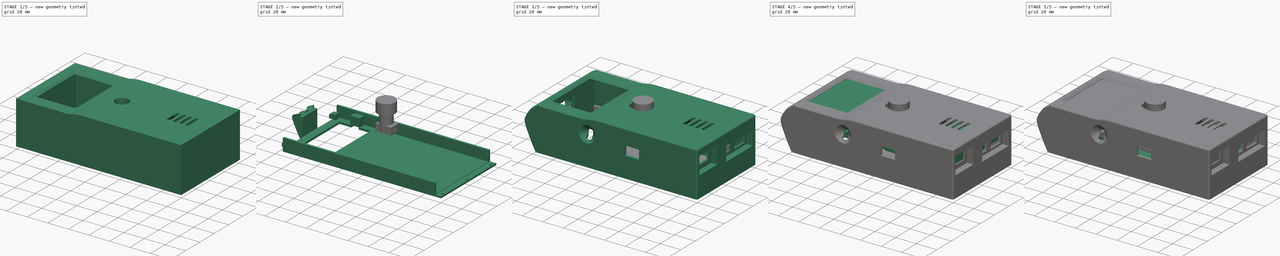
[diagram: build sequence overview — one tinted view per stage of 5, left to right]
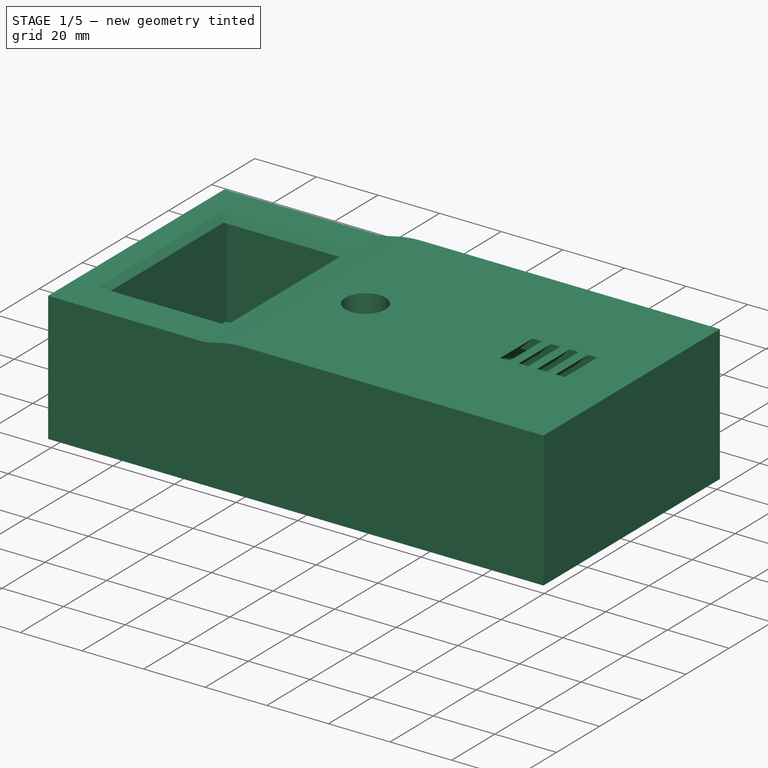
[diagram: stage 1 of 5 — iso view after this stage's code; geometry added in this stage tinted green]
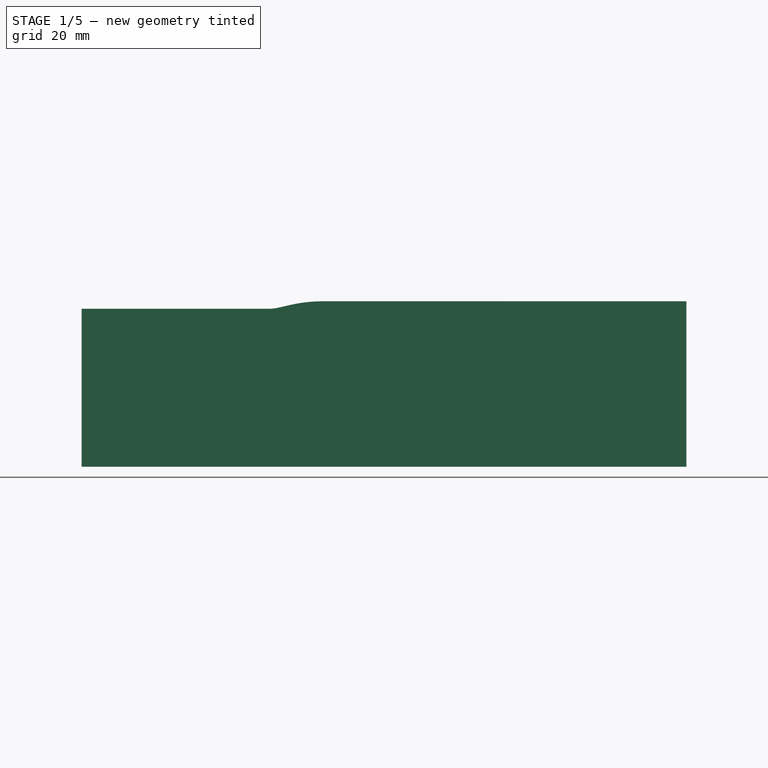
[diagram: stage 1 of 5 — front view after this stage's code; geometry added in this stage tinted green]
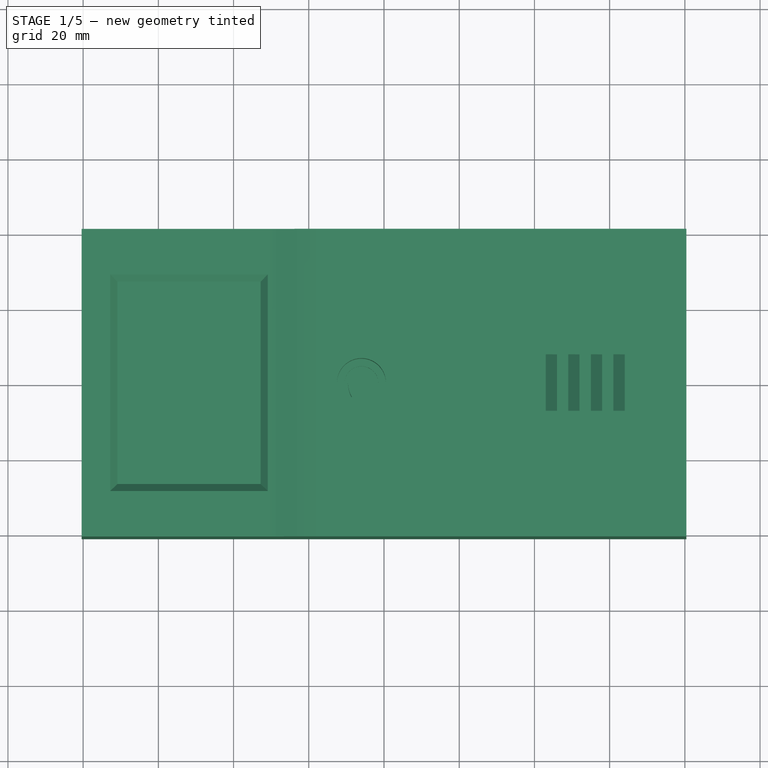
[diagram: stage 1 of 5 — top view after this stage's code; geometry added in this stage tinted green]
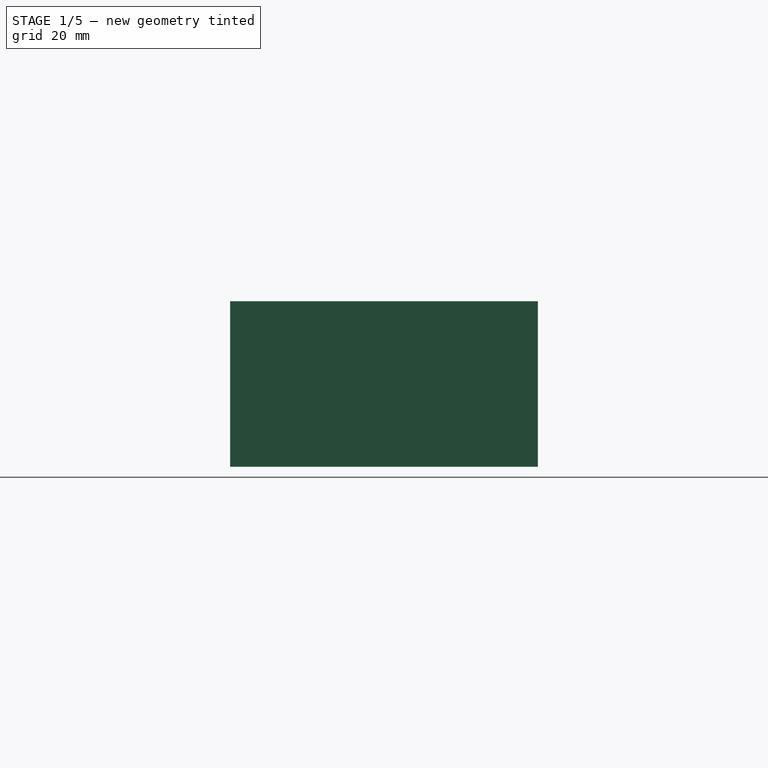
[diagram: stage 1 of 5 — right view after this stage's code; geometry added in this stage tinted green]
FCSTD DOCUMENT  (FreeCAD 0.21R33694 (Git))
Label: box-v2
License: All rights reserved
LicenseURL: http://en.wikipedia.org/wiki/All_rights_reserved
objects: Sketcher::SketchObject×119, PartDesign::Pad×60, PartDesign::Pocket×53, PartDesign::Chamfer×24, PartDesign::Fillet×13, PartDesign::Body×11, PartDesign::Groove×3, Part::FeaturePython×3, PartDesign::FeatureBase×2, PartDesign::Revolution×1, Part::RuledSurface×1, App::DocumentObjectGroup×1, PartDesign::Boolean×1, PartDesign::PolarPattern×1
note: 446 computed .brp shape members not serialized (recipe doc carries the construction recipe); baked Part::Feature solids carry a one-line shape summary decoded from their .brp

FEATURE [PartDesign::Body] Body  label="board"
  Group = -> [Sketch,Pad,Sketch001,Pocket,Sketch002,Pad001,Sketch003,Pad002,Sketch004,Pad003,Sketch005,Pocket001,Sketch006,Pocket002,Sketch007,Pocket003,Sketch008,Pocket004,Sketch024,Pocket012,Sketch025,Pad012,Sketch026,Pad013,Sketch027,Pocket013,Sketch028,Pad014,Sketch038,Pad022,Sketch039,Pad023,Sketch040,Pad024,Sketch041,Pocket016,Sketch042,Pad025,Sketch043,Pad026,Sketch044,Pad027,Sketch045,Pad028,Sketch046,+18 more]
  Origin = -> Origin
  Tip = -> Pad041
FEATURE [Sketcher::SketchObject] Sketch063
  FullyConstrained = true
  MapMode = 5
  Support = -> [XY_Plane003]
  sketch-geometry (12):
    g0: LineSegment StartX=-78.005 StartY=38.5 StartZ=0 EndX=78.005 EndY=38.5 EndZ=0
    g1: LineSegment StartX=78.005 StartY=38.5 StartZ=0 EndX=78.005 EndY=-38.5 EndZ=0
    g2: LineSegment StartX=78.005 StartY=-38.5 StartZ=0 EndX=-78.005 EndY=-38.5 EndZ=0
    g3: LineSegment StartX=-78.005 StartY=-38.5 StartZ=0 EndX=-78.005 EndY=38.5 EndZ=0
    g4: LineSegment StartX=-72.005 StartY=34.5 StartZ=0 EndX=72.005 EndY=34.5 EndZ=0
    g5: LineSegment StartX=72.005 StartY=34.5 StartZ=0 EndX=72.005 EndY=-34.5 EndZ=0
    g6: LineSegment StartX=72.005 StartY=-34.5 StartZ=0 EndX=-72.005 EndY=-34.5 EndZ=0
    g7: LineSegment StartX=-72.005 StartY=-34.5 StartZ=0 EndX=-72.005 EndY=34.5 EndZ=0
    g8: LineSegment StartX=-80.405 StartY=40.9 StartZ=0 EndX=80.405 EndY=40.9 EndZ=0
    g9: LineSegment StartX=80.405 StartY=40.9 StartZ=0 EndX=80.405 EndY=-40.9 EndZ=0
    g10: LineSegment StartX=80.405 StartY=-40.9 StartZ=0 EndX=-80.405 EndY=-40.9 EndZ=0
    g11: LineSegment StartX=-80.405 StartY=-40.9 StartZ=0 EndX=-80.405 EndY=40.9 EndZ=0
  constraints (34):
    c: Coincident(g0,g1)
    c: Coincident(g1,g2)
    c: Coincident(g2,g3)
    c: Coincident(g3,g0)
    c: Horizontal(g0)
    c: Horizontal(g2)
    c: Vertical(g1)
    c: Vertical(g3)
    c: Coincident(g4,g5)
    c: Coincident(g5,g6)
    c: Coincident(g6,g7)
    c: Coincident(g7,g4)
    c: Horizontal(g4)
    c: Horizontal(g6)
    c: Vertical(g5)
    c: Vertical(g7)
    c: DistanceX(g4,g4) = 144.01
    c: DistanceY(g5,g5) = 69
    c: Symmetric(g4,g5,g-1)
    c: Coincident(g8,g9)
    c: Coincident(g9,g10)
    c: Coincident(g10,g11)
    c: Coincident(g11,g8)
    c: Horizontal(g8)
    c: Horizontal(g10)
    c: Vertical(g9)
    c: Vertical(g11)
    c: DistanceX(g8,g0) = 2.4
    c: DistanceY(g0,g8) = 2.4
    c: DistanceY(g9,g1) = 2.4
    c: DistanceX(g1,g9) = 2.4
    c: DistanceY(g1,g5) = 4
    c: DistanceX(g5,g1) = 6
    c: Symmetric(g0,g1,g-1)
FEATURE [PartDesign::Pad] Pad042
  Direction = (0,0,1)
  Length = 40
  Length2 = 10
  Profile = -> Sketch063
  ReferenceAxis = -> Sketch063 [N_Axis]
  Type = 0
FEATURE [Sketcher::SketchObject] Sketch064
  ExternalGeometry = -> [Pad042]
  FullyConstrained = true
  MapMode = 5
  Placement = pos=(0,-40.9,0) rot=(1,0,0;1.5708rad)
  Support = -> [Pad042]
  sketch-geometry (6):
    g0: LineSegment StartX=80.405 StartY=40 StartZ=0 EndX=80.405 EndY=44 EndZ=0
    g1: LineSegment StartX=80.405 StartY=44 StartZ=0 EndX=-20.595 EndY=44 EndZ=0
    g2: LineSegment StartX=-80.405 StartY=40 StartZ=0 EndX=-80.405 EndY=42 EndZ=0
    g3: LineSegment StartX=-80.405 StartY=42 StartZ=0 EndX=-29.405 EndY=42 EndZ=0
    g4: LineSegment StartX=-29.405 StartY=42 StartZ=0 EndX=-20.595 EndY=44 EndZ=0
    g5: LineSegment StartX=-80.405 StartY=40 StartZ=0 EndX=80.405 EndY=40 EndZ=0
  constraints (16):
    c: Vertical(g0)
    c: Coincident(g1,g0)
    c: Horizontal(g1)
    c: Coincident(g3,g2)
    c: Horizontal(g3)
    c: Coincident(g4,g3)
    c: Coincident(g4,g1)
    c: Vertical(g2)
    c: DistanceY(g2,g2) = 2
    c: DistanceY(g0,g0) = 4
    c: Coincident(g5,g2)
    c: Coincident(g2,g-3)
    c: Coincident(g0,g-3)
    c: DistanceX(g3,g3) = 51
    c: DistanceX(g1,g1) = 101
    c: Coincident(g0,g5)
FEATURE [PartDesign::Pad] Pad043
  BaseFeature = -> Pad042
  Direction = (0,-1,2e-16)
  Length = 81.8
  Length2 = 10
  Profile = -> Sketch064
  ReferenceAxis = -> Sketch064 [N_Axis]
  Reversed = true
  Type = 0
FEATURE [Sketcher::SketchObject] Sketch065
  FullyConstrained = true
  MapMode = 5
  Placement = pos=(0,9.2e-15,42) rot=(0,0,1;0rad)
  Support = -> [Pad043]
  sketch-geometry (4):
    g0: LineSegment StartX=-70.9 StartY=26.9 StartZ=0 EndX=-32.8 EndY=26.9 EndZ=0
    g1: LineSegment StartX=-32.8 StartY=26.9 StartZ=0 EndX=-32.8 EndY=-26.9 EndZ=0
    g2: LineSegment StartX=-32.8 StartY=-26.9 StartZ=0 EndX=-70.9 EndY=-26.9 EndZ=0
    g3: LineSegment StartX=-70.9 StartY=-26.9 StartZ=0 EndX=-70.9 EndY=26.9 EndZ=0
  constraints (11):
    c: Coincident(g0,g1)
    c: Coincident(g1,g2)
    c: Coincident(g2,g3)
    c: Coincident(g3,g0)
    c: Horizontal(g0)
    c: Horizontal(g2)
    c: Vertical(g1)
    c: DistanceX(g0,g-1) = 32.8
    c: DistanceY(g3,g3) = 53.8
    c: DistanceX(g0,g0) = 38.1
    c: Symmetric(g0,g2,g-1)
FEATURE [PartDesign::Pocket] Pocket018
  BaseFeature = -> Pad043
  Direction = (0,-2e-16,-1)
  Length = 5
  Length2 = 5
  Profile = -> Sketch065
  ReferenceAxis = -> Sketch065 [N_Axis]
  Type = 0
FEATURE [PartDesign::Chamfer] Chamfer003
  Angle = 45
  Base = -> Pocket018 [Edge39,Edge40,Edge41,Edge42]
  BaseFeature = -> Pocket018
  ChamferType = 0
  FlipDirection = false
  Size = 1.9
  Size2 = 1
  SupportTransform = false
  UseAllEdges = false
FEATURE [Sketcher::SketchObject] Sketch066
  FullyConstrained = true
  MapMode = 5
  Placement = pos=(0,9.7e-15,44) rot=(0,0,1;0rad)
  Support = -> [Chamfer003]
  sketch-geometry (1):
    g0: Circle CenterX=-6 CenterY=0 CenterZ=0 NormalX=0 NormalY=0 NormalZ=1 AngleXU=0 Radius=6.5
  constraints (3):
    c: PointOnObject(g0,g-1)
    c: Diameter(g0) = 13
    c: DistanceX(g0,g-1) = 6
FEATURE [PartDesign::Pocket] Pocket019
  BaseFeature = -> Chamfer003
  Direction = (0,-2e-16,-1)
  Length = 5
  Length2 = 5
  Profile = -> Sketch066
  ReferenceAxis = -> Sketch066 [N_Axis]
  Type = 0
FEATURE [Sketcher::SketchObject] Sketch067
  ExternalGeometry = -> [Pocket019]
  FullyConstrained = true
  MapMode = 5
  Placement = pos=(0,8.8e-15,40) rot=(1,0,0;3.14159rad)
  Support = -> [Pocket019]
  sketch-geometry (2):
    g0: Circle CenterX=-6 CenterY=0 CenterZ=0 NormalX=0 NormalY=0 NormalZ=1 AngleXU=0 Radius=6.5
    g1: Circle CenterX=-6 CenterY=0 CenterZ=0 NormalX=0 NormalY=0 NormalZ=1 AngleXU=0 Radius=8.5
  constraints (4):
    c: Coincident(g0,g-3)
    c: Coincident(g1,g0)
    c: Diameter(g1) = 17
    c: Equal(g0,g-3)
FEATURE [PartDesign::Pad] Pad044
  BaseFeature = -> Pocket019
  Direction = (0,-2e-16,-1)
  Length = 7.5
  Length2 = 10
  Profile = -> Sketch067
  ReferenceAxis = -> Sketch067 [N_Axis]
  Type = 0
FEATURE [PartDesign::Chamfer] Chamfer004
  Angle = 45
  Base = -> Pad044 [Edge51]
  BaseFeature = -> Pad044
  ChamferType = 0
  FlipDirection = false
  Size = 4
  Size2 = 1
  SupportTransform = false
  UseAllEdges = false
FEATURE [Sketcher::SketchObject] Sketch068
  ExternalGeometry = -> [Chamfer004]
  FullyConstrained = true
  MapMode = 5
  Placement = pos=(0,0,32.5) rot=(1,0,0;3.14159rad)
  Support = -> [Chamfer004]
  sketch-geometry (2):
    g0: Circle CenterX=-6 CenterY=-7.2e-15 CenterZ=0 NormalX=0 NormalY=0 NormalZ=1 AngleXU=0 Radius=8.5
    g1: Circle CenterX=-6 CenterY=-7.2e-15 CenterZ=0 NormalX=0 NormalY=0 NormalZ=1 AngleXU=0 Radius=4.5
  constraints (4):
    c: Coincident(g0,g-3)
    c: Coincident(g1,g0)
    c: Equal(g0,g-3)
    c: Diameter(g1) = 9
FEATURE [PartDesign::Pad] Pad045
  BaseFeature = -> Chamfer004
  Direction = (0,0,-1)
  Length = 2
  Length2 = 10
  Profile = -> Sketch068
  ReferenceAxis = -> Sketch068 [N_Axis]
  Reversed = true
  Type = 0
FEATURE [Sketcher::SketchObject] Sketch069
  FullyConstrained = true
  MapMode = 5
  Placement = pos=(0,8.8e-15,40) rot=(1,0,0;3.14159rad)
  Support = -> [Pad045]
  sketch-geometry (12):
    g0: Circle CenterX=48 CenterY=22 CenterZ=0 NormalX=0 NormalY=0 NormalZ=1 AngleXU=0 Radius=1.5
    g1: Circle CenterX=68 CenterY=11 CenterZ=0 NormalX=0 NormalY=0 NormalZ=1 AngleXU=0 Radius=1.5
    g2: Circle CenterX=32.5 CenterY=-12 CenterZ=0 NormalX=0 NormalY=0 NormalZ=1 AngleXU=0 Radius=1.5
    g3: Circle CenterX=69 CenterY=-17 CenterZ=0 NormalX=0 NormalY=0 NormalZ=1 AngleXU=0 Radius=1.5
    g4: Circle CenterX=50 CenterY=-30 CenterZ=0 NormalX=0 NormalY=0 NormalZ=1 AngleXU=0 Radius=1.5
    g5: Circle CenterX=-29 CenterY=13 CenterZ=0 NormalX=0 NormalY=0 NormalZ=1 AngleXU=0 Radius=1.5
    g6: Circle CenterX=-29 CenterY=13 CenterZ=0 NormalX=0 NormalY=0 NormalZ=1 AngleXU=0 Radius=3
    g7: Circle CenterX=48 CenterY=22 CenterZ=0 NormalX=0 NormalY=0 NormalZ=1 AngleXU=0 Radius=3
    g8: Circle CenterX=68 CenterY=11 CenterZ=0 NormalX=0 NormalY=0 NormalZ=1 AngleXU=0 Radius=3
    g9: Circle CenterX=69 CenterY=-17 CenterZ=0 NormalX=0 NormalY=0 NormalZ=1 AngleXU=0 Radius=3
    g10: Circle CenterX=50 CenterY=-30 CenterZ=0 NormalX=0 NormalY=0 NormalZ=1 AngleXU=0 Radius=3
    g11: Circle CenterX=32.5 CenterY=-12 CenterZ=0 NormalX=0 NormalY=0 NormalZ=1 AngleXU=0 Radius=3
  constraints (30):
    c: DistanceX(g5,g-1) = 29
    c: DistanceY(g-1,g5) = 13
    c: DistanceY(g5,g0) = 9
    c: DistanceX(g5,g0) = 77
    c: DistanceX(g0,g1) = 20
    c: DistanceX(g1,g3) = 1
    c: DistanceY(g1,g0) = 11
    c: DistanceY(g3,g1) = 28
    c: DistanceY(g4,g3) = 13
    c: DistanceY(g3,g2) = 5
    c: DistanceX(g2,g3) = 36.5
    c: DistanceX(g4,g3) = 19
    c: Equal(g5,g0)
    c: Equal(g0,g1)
    c: Equal(g1,g3)
    c: Equal(g3,g4)
    c: Equal(g4,g2)
    c: Diameter(g4) = 3
    c: Coincident(g6,g5)
    c: Coincident(g7,g0)
    c: Coincident(g8,g1)
    c: Coincident(g9,g3)
    c: Coincident(g10,g4)
    c: Coincident(g11,g2)
    c: Diameter(g10) = 6
    c: Equal(g11,g10)
    c: Equal(g10,g9)
    c: Equal(g9,g8)
    c: Equal(g8,g7)
    c: Equal(g7,g6)
FEATURE [PartDesign::Pad] Pad046
  BaseFeature = -> Pad045
  Direction = (0,-2e-16,-1)
  Length = 14.5
  Length2 = 10
  Profile = -> Sketch069
  ReferenceAxis = -> Sketch069 [N_Axis]
  Type = 0
FEATURE [PartDesign::Chamfer] Chamfer005
  Angle = 45
  Base = -> Pad046 [Edge6,Edge15,Edge14,Edge5,Edge7]
  BaseFeature = -> Pad046
  ChamferType = 0
  FlipDirection = false
  Size = 5
  Size2 = 1
  SupportTransform = false
  UseAllEdges = false
FEATURE [Sketcher::SketchObject] Sketch070
  AttachmentOffset = pos=(-26,40,13) rot=(0,0,1;0rad)
  FullyConstrained = true
  MapMode = 5
  Placement = pos=(-26,-13,40) rot=(1,0,0;1.5708rad)
  Support = -> [XZ_Plane003]
  sketch-geometry (3):
    g0: LineSegment StartX=0 StartY=0 StartZ=0 EndX=5 EndY=0 EndZ=0
    g1: LineSegment StartX=0 StartY=-5 StartZ=0 EndX=0 EndY=0 EndZ=0
    g2: LineSegment StartX=0 StartY=-5 StartZ=0 EndX=5 EndY=0 EndZ=0
  constraints (8):
    c: Coincident(g1,g0)
    c: Horizontal(g0)
    c: Vertical(g1)
    c: Coincident(g0,g-1)
    c: Equal(g1,g0)
    c: DistanceX(g0,g0) = 5
    c: Coincident(g2,g1)
    c: Coincident(g2,g0)
FEATURE [PartDesign::Revolution] Revolution
  Angle = 180
  Axis = (0,-2e-16,-1)
  Base = (-29,-13,40)
  BaseFeature = -> Chamfer005
  Midplane = true
  Profile = -> Sketch070
  ReferenceAxis = -> Chamfer005 [Edge11]
  Reversed = true
FEATURE [Sketcher::SketchObject] Sketch071
  AttachmentOffset = pos=(0,0,-3) rot=(0,0,1;0rad)
  FullyConstrained = true
  MapMode = 5
  Placement = pos=(0,9.5e-15,43) rot=(1,0,0;3.14159rad)
  Support = -> [Revolution]
  sketch-geometry (4):
    g0: LineSegment StartX=2.4 StartY=-15 StartZ=0 EndX=30.4 EndY=-15 EndZ=0
    g1: LineSegment StartX=30.4 StartY=-15 StartZ=0 EndX=30.4 EndY=-36 EndZ=0
    g2: LineSegment StartX=30.4 StartY=-36 StartZ=0 EndX=2.4 EndY=-36 EndZ=0
    g3: LineSegment StartX=2.4 StartY=-36 StartZ=0 EndX=2.4 EndY=-15 EndZ=0
  constraints (12):
    c: Coincident(g0,g1)
    c: Coincident(g1,g2)
    c: Coincident(g2,g3)
    c: Coincident(g3,g0)
    c: Horizontal(g0)
    c: Horizontal(g2)
    c: Vertical(g1)
    c: Vertical(g3)
    c: DistanceX(g2,g2) = 28
    c: DistanceY(g1,g1) = 21
    c: DistanceY(g0,g-1) = 15
    c: DistanceX(g-1,g0) = 2.4
FEATURE [PartDesign::Pocket] Pocket020
  BaseFeature = -> Revolution
  Direction = (0,2e-16,1)
  Length = 11
  Length2 = 5
  Profile = -> Sketch071
  ReferenceAxis = -> Sketch071 [N_Axis]
  Reversed = true
  Type = 0
FEATURE [Sketcher::SketchObject] Sketch072
  AttachmentOffset = pos=(39,0,-40.9) rot=(0,0,1;0rad)
  ExternalGeometry = -> [Pocket020]
  FullyConstrained = true
  MapMode = 5
  Placement = pos=(39,0,-9.1e-15) rot=(1,0,0;1.5708rad)
  Support = -> [Pocket020]
  sketch-geometry (19):
    g0: LineSegment StartX=4 StartY=44 StartZ=0 EndX=4e-16 EndY=40 EndZ=0
    g1: LineSegment StartX=4e-16 StartY=40 StartZ=0 EndX=3 EndY=40 EndZ=0
    g2: LineSegment StartX=3 StartY=40 StartZ=0 EndX=7 EndY=44 EndZ=0
    g3: LineSegment StartX=7 StartY=44 StartZ=0 EndX=4 EndY=44 EndZ=0
    g4: LineSegment StartX=6 StartY=40 StartZ=0 EndX=10 EndY=44 EndZ=0
    g5: LineSegment StartX=10 StartY=44 StartZ=0 EndX=13 EndY=44 EndZ=0
    g6: LineSegment StartX=13 StartY=44 StartZ=0 EndX=9 EndY=40 EndZ=0
    g7: LineSegment StartX=9 StartY=40 StartZ=0 EndX=6 EndY=40 EndZ=0
    g8: LineSegment StartX=12 StartY=40 StartZ=0 EndX=16 EndY=44 EndZ=0
    g9: LineSegment StartX=16 StartY=44 StartZ=0 EndX=19 EndY=44 EndZ=0
    g10: LineSegment StartX=19 StartY=44 StartZ=0 EndX=15 EndY=40 EndZ=0
    g11: LineSegment StartX=15 StartY=40 StartZ=0 EndX=12 EndY=40 EndZ=0
    g12: LineSegment StartX=18 StartY=40 StartZ=0 EndX=22 EndY=44 EndZ=0
    g13: LineSegment StartX=22 StartY=44 StartZ=0 EndX=25 EndY=44 EndZ=0
    g14: LineSegment StartX=25 StartY=44 StartZ=0 EndX=21 EndY=40 EndZ=0
    g15: LineSegment StartX=21 StartY=40 StartZ=0 EndX=18 EndY=40 EndZ=0
    g16: LineSegment StartX=7 StartY=44 StartZ=0 EndX=10 EndY=44 EndZ=0
    g17: LineSegment StartX=13 StartY=44 StartZ=0 EndX=16 EndY=44 EndZ=0
    g18: LineSegment StartX=19 StartY=44 StartZ=0 EndX=22 EndY=44 EndZ=0
  constraints (54):
    c: PointOnObject(g0,g-3)
    c: PointOnObject(g0,g-4)
    c: Coincident(g1,g0)
    c: PointOnObject(g1,g-4)
    c: Coincident(g2,g1)
    c: PointOnObject(g2,g-3)
    c: Coincident(g3,g2)
    c: Coincident(g3,g0)
    c: DistanceX(g3,g3) = 3
    c: Parallel(g0,g2)
    c: Angle(g2,g-4) = 2.35619
    c: PointOnObject(g4,g-4)
    c: PointOnObject(g4,g-3)
    c: Coincident(g5,g4)
    c: PointOnObject(g5,g-3)
    c: Coincident(g6,g5)
    c: PointOnObject(g6,g-4)
    c: Coincident(g7,g6)
    c: Coincident(g7,g4)
    c: PointOnObject(g8,g-4)
    c: PointOnObject(g8,g-3)
    c: Coincident(g9,g8)
    c: PointOnObject(g9,g-3)
    c: Coincident(g10,g9)
    c: PointOnObject(g10,g-4)
    c: Coincident(g11,g10)
    c: Coincident(g11,g8)
    c: PointOnObject(g12,g-4)
    c: PointOnObject(g12,g-3)
    c: Coincident(g13,g12)
    c: Horizontal(g13)
    c: Coincident(g14,g13)
    c: PointOnObject(g14,g-4)
    c: Coincident(g15,g14)
    c: Coincident(g15,g12)
    c: Parallel(g2,g4)
    c: Parallel(g4,g6)
    c: Parallel(g6,g8)
    c: Parallel(g8,g10)
    c: Parallel(g10,g12)
    c: Parallel(g12,g14)
    c: Coincident(g16,g2)
    c: Coincident(g16,g4)
    c: Coincident(g17,g5)
    c: Coincident(g17,g8)
    c: Coincident(g18,g9)
    c: Coincident(g18,g12)
    c: Equal(g3,g16)
    c: Equal(g16,g5)
    c: Equal(g9,g17)
    c: Equal(g17,g5)
    c: Equal(g9,g18)
    c: Equal(g18,g13)
    c: PointOnObject(g0,g-2)
FEATURE [PartDesign::Pocket] Pocket021
  BaseFeature = -> Pocket020
  Direction = (0,1,-2e-16)
  Length = 15
  Length2 = 5
  Midplane = true
  Profile = -> Sketch072
  ReferenceAxis = -> Sketch072 [N_Axis]
  Type = 0
FEATURE [PartDesign::Fillet] Fillet004
  Base = -> Pocket021 [Edge170]
  BaseFeature = -> Pocket021
  Radius = 11
  SupportTransform = false
  UseAllEdges = false
FEATURE [PartDesign::Fillet] Fillet005
  Base = -> Fillet004 [Edge9]
  BaseFeature = -> Fillet004
  Radius = 38
  SupportTransform = false
  UseAllEdges = false
FEATURE [Sketcher::SketchObject] Sketch073
  AttachmentOffset = pos=(0,0,-1) rot=(0,0,1;0rad)
  FullyConstrained = true
  MapMode = 5
  Placement = pos=(0,-39.9,-2e-16) rot=(1,0,0;1.5708rad)
  Support = -> [Fillet005]
  sketch-geometry (1):
    g0: Circle CenterX=-16.6 CenterY=29 CenterZ=0 NormalX=0 NormalY=0 NormalZ=1 AngleXU=0 Radius=1.5
  constraints (3):
    c: Diameter(g0) = 3
    c: DistanceY(g-1,g0) = 29
    c: DistanceX(g0,g-1) = 16.6
FEATURE [PartDesign::Pocket] Pocket022
  BaseFeature = -> Fillet005
  Direction = (0,1,-2e-16)
  Length = 5
  Length2 = 5
  Profile = -> Sketch073
  ReferenceAxis = -> Sketch073 [N_Axis]
  Type = 0
FEATURE [PartDesign::Chamfer] Chamfer006
  Angle = 45
  Base = -> Pocket022 [Edge137]
  BaseFeature = -> Pocket022
  ChamferType = 0
  FlipDirection = false
  Size = 1.3
  Size2 = 1
  SupportTransform = false
  UseAllEdges = false
FEATURE [Sketcher::SketchObject] Sketch074
  AttachmentOffset = pos=(0,0,-2) rot=(0,0,1;0rad)
  FullyConstrained = true
  MapMode = 5
  Placement = pos=(0,-38.9,-4e-16) rot=(1,0,0;1.5708rad)
  Support = -> [Chamfer006]
  sketch-geometry (5):
    g0: LineSegment StartX=-30.56 StartY=33 StartZ=0 EndX=-22.56 EndY=33 EndZ=0
    g1: LineSegment StartX=-22.56 StartY=33 StartZ=0 EndX=-22.56 EndY=25 EndZ=0
    g2: LineSegment StartX=-22.56 StartY=25 StartZ=0 EndX=-30.56 EndY=25 EndZ=0
    g3: LineSegment StartX=-30.56 StartY=25 StartZ=0 EndX=-30.56 EndY=33 EndZ=0
    g4: Circle CenterX=-26.56 CenterY=29 CenterZ=0 NormalX=0 NormalY=0 NormalZ=1 AngleXU=0 Radius=1.5
  constraints (14):
    c: Coincident(g0,g1)
    c: Coincident(g1,g2)
    c: Coincident(g2,g3)
    c: Coincident(g3,g0)
    c: Horizontal(g0)
    c: Horizontal(g2)
    c: Vertical(g1)
    c: Vertical(g3)
    c: Equal(g0,g1)
    c: DistanceX(g0,g0) = 8
    c: DistanceX(g4,g-1) = 26.56
    c: DistanceY(g-1,g4) = 29
    c: Diameter(g4) = 3
    c: Symmetric(g2,g0,g4)
FEATURE [PartDesign::Pad] Pad047
  BaseFeature = -> Chamfer006
  Direction = (0,-1,2e-16)
  Length = 4
  Length2 = 10
  Profile = -> Sketch074
  ReferenceAxis = -> Sketch074 [N_Axis]
  Reversed = true
  Type = 0
FEATURE [Sketcher::SketchObject] Sketch091
  FullyConstrained = true
  MapMode = 5
  Support = -> [XY_Plane004]
  sketch-geometry (4):
    g0: LineSegment StartX=-74 StartY=38.1 StartZ=0 EndX=78.8 EndY=38.1 EndZ=0
    g1: LineSegment StartX=78.8 StartY=38.1 StartZ=0 EndX=78.8 EndY=-38.1 EndZ=0
    g2: LineSegment StartX=78.8 StartY=-38.1 StartZ=0 EndX=-74 EndY=-38.1 EndZ=0
    g3: LineSegment StartX=-74 StartY=-38.1 StartZ=0 EndX=-74 EndY=38.1 EndZ=0
  constraints (11):
    c: Coincident(g0,g1)
    c: Coincident(g1,g2)
    c: Coincident(g2,g3)
    c: Coincident(g3,g0)
    c: Horizontal(g0)
    c: Horizontal(g2)
    c: Vertical(g3)
    c: DistanceY(g1,g1) = 76.2
    c: DistanceX(g0,g0) = 152.8
    c: DistanceX(g-1,g0) = 78.8
    c: Symmetric(g0,g1,g-1)
FEATURE [PartDesign::Pad] Pad050
  Direction = (0,0,1)
  Length = 2
  Length2 = 10
  Profile = -> Sketch091
  ReferenceAxis = -> Sketch091 [N_Axis]
  Type = 0
FEATURE [Sketcher::SketchObject] Sketch092
  FullyConstrained = true
  MapMode = 5
  Placement = pos=(0,0,0) rot=(1,0,0;3.14159rad)
  Support = -> [Pad050]
  sketch-geometry (4):
    g0: Circle CenterX=76.9 CenterY=32.9 CenterZ=0 NormalX=0 NormalY=0 NormalZ=1 AngleXU=0 Radius=1.25
    g1: Circle CenterX=76.9 CenterY=0 CenterZ=0 NormalX=0 NormalY=0 NormalZ=1 AngleXU=0 Radius=1.25
    g2: Circle CenterX=76.9 CenterY=-32.9 CenterZ=0 NormalX=0 NormalY=0 NormalZ=1 AngleXU=0 Radius=1.25
    g3: LineSegment StartX=76.9 StartY=32.9 StartZ=0 EndX=76.9 EndY=-32.9 EndZ=0
  constraints (10):
    c: PointOnObject(g1,g-1)
    c: Equal(g2,g1)
    c: Equal(g1,g0)
    c: Diameter(g0) = 2.5
    c: Coincident(g3,g0)
    c: Coincident(g3,g2)
    c: PointOnObject(g1,g3)
    c: DistanceY(g3,g3) = 65.8
    c: Symmetric(g0,g2,g-1)
    c: DistanceX(g-1,g1) = 76.9
FEATURE [PartDesign::Pocket] Pocket033
  BaseFeature = -> Pad050
  Direction = (0,0,1)
  Length = 5
  Length2 = 5
  Profile = -> Sketch092
  ReferenceAxis = -> Sketch092 [N_Axis]
  Type = 0
FEATURE [Sketcher::SketchObject] Sketch093
  ExternalGeometry = -> [Pocket033]
  FullyConstrained = true
  MapMode = 5
  Placement = pos=(0,0,2) rot=(0,0,1;0rad)
  Support = -> [Pocket033]
  sketch-geometry (4):
    g0: LineSegment StartX=78.8 StartY=-38.1 StartZ=0 EndX=72.8 EndY=-38.1 EndZ=0
    g1: LineSegment StartX=72.8 StartY=-38.1 StartZ=0 EndX=72.8 EndY=38.1 EndZ=0
    g2: LineSegment StartX=72.8 StartY=38.1 StartZ=0 EndX=78.8 EndY=38.1 EndZ=0
    g3: LineSegment StartX=78.8 StartY=38.1 StartZ=0 EndX=78.8 EndY=-38.1 EndZ=0
  constraints (11):
    c: Coincident(g0,g1)
    c: Coincident(g1,g2)
    c: Coincident(g2,g3)
    c: Coincident(g3,g0)
    c: Horizontal(g0)
    c: Horizontal(g2)
    c: Vertical(g1)
    c: Vertical(g3)
    c: Coincident(g0,g-4)
    c: PointOnObject(g1,g-3)
    c: DistanceX(g2,g2) = 6
FEATURE [PartDesign::Pocket] Pocket034
  BaseFeature = -> Pocket033
  Direction = (0,0,-1)
  Length = 0.4
  Length2 = 5
  Profile = -> Sketch093
  ReferenceAxis = -> Sketch093 [N_Axis]
  Type = 0
FEATURE [PartDesign::Chamfer] Chamfer010
  Angle = 45
  Base = -> Pocket034 [Edge10,Edge11,Edge12]
  BaseFeature = -> Pocket034
  ChamferType = 0
  FlipDirection = false
  Size = 0.6
  Size2 = 1
  SupportTransform = false
  UseAllEdges = false
FEATURE [Sketcher::SketchObject] Sketch094
  ExternalGeometry = -> [Chamfer010]
  FullyConstrained = true
  MapMode = 5
  Placement = pos=(0,0,2) rot=(0,0,1;0rad)
  Support = -> [Chamfer010]
  sketch-geometry (12):
    g0: LineSegment StartX=-74 StartY=-30.2 StartZ=0 EndX=-77.2 EndY=-30.2 EndZ=0
    g1: LineSegment StartX=-77.2 StartY=-30.2 StartZ=0 EndX=-77.2 EndY=-34.8 EndZ=0
    g2: LineSegment StartX=-77.2 StartY=-34.8 StartZ=0 EndX=-74 EndY=-34.8 EndZ=0
    g3: LineSegment StartX=-74 StartY=34.8 StartZ=0 EndX=-77.2 EndY=34.8 EndZ=0
    g4: LineSegment StartX=-77.2 StartY=34.8 StartZ=0 EndX=-77.2 EndY=30.2 EndZ=0
    g5: LineSegment StartX=-77.2 StartY=30.2 StartZ=0 EndX=-74 EndY=30.2 EndZ=0
    g6: LineSegment StartX=-74 StartY=34.8 StartZ=0 EndX=-71 EndY=34.8 EndZ=0
    g7: LineSegment StartX=-74 StartY=30.2 StartZ=0 EndX=-71 EndY=30.2 EndZ=0
    g8: LineSegment StartX=-71 StartY=34.8 StartZ=0 EndX=-71 EndY=30.2 EndZ=0
    g9: LineSegment StartX=-74 StartY=-30.2 StartZ=0 EndX=-71 EndY=-30.2 EndZ=0
    g10: LineSegment StartX=-74 StartY=-34.8 StartZ=0 EndX=-71 EndY=-34.8 EndZ=0
    g11: LineSegment StartX=-71 StartY=-34.8 StartZ=0 EndX=-71 EndY=-30.2 EndZ=0
  constraints (34):
    c: Coincident(g0,g1)
    c: Coincident(g1,g2)
    c: Horizontal(g0)
    c: Horizontal(g2)
    c: Vertical(g1)
    c: PointOnObject(g0,g-3)
    c: Coincident(g3,g4)
    c: Coincident(g4,g5)
    c: Horizontal(g3)
    c: Horizontal(g5)
    c: Vertical(g4)
    c: DistanceX(g3,g3) = 3.2
    c: DistanceY(g4,g4) = 4.6
    c: DistanceY(g3,g-3) = 3.3
    c: Symmetric(g0,g5,g-1)
    c: Coincident(g6,g3)
    c: Horizontal(g6)
    c: Coincident(g7,g5)
    c: Horizontal(g7)
    c: Coincident(g8,g6)
    c: Coincident(g8,g7)
    c: Vertical(g8)
    c: DistanceX(g6,g6) = 3
    c: Equal(g3,g5)
    c: Equal(g2,g0)
    c: Coincident(g9,g0)
    c: Coincident(g10,g2)
    c: Horizontal(g10)
    c: Coincident(g11,g10)
    c: Coincident(g11,g9)
    c: Vertical(g11)
    c: Symmetric(g7,g9,g-1)
    c: Equal(g8,g11)
    c: Equal(g5,g0)
FEATURE [PartDesign::Pad] Pad051
  BaseFeature = -> Chamfer010
  Direction = (0,0,1)
  Length = 4.8
  Length2 = 10
  Profile = -> Sketch094
  ReferenceAxis = -> Sketch094 [N_Axis]
  Type = 0
FEATURE [PartDesign::Pocket] Pocket035
  BaseFeature = -> Pad051
  Direction = (0,0,1)
  Length = 0.2
  Length2 = 5
  Profile = -> Pad051 [Face13,Face14,Face15]
  Type = 0
FEATURE [PartDesign::Chamfer] Chamfer012
  Angle = 45
  Base = -> Pocket035
  BaseFeature = -> Pocket035
  ChamferType = 0
  FlipDirection = false
  Size = 1
  Size2 = 1
  SupportTransform = false
  UseAllEdges = false
FEATURE [PartDesign::Chamfer] Chamfer017
  Angle = 45
  Base = -> Chamfer012 [Edge80,Edge75]
  BaseFeature = -> Chamfer012
  ChamferType = 0
  FlipDirection = false
  Size = 1.5
  Size2 = 1
  SupportTransform = false
  UseAllEdges = false
FEATURE [PartDesign::Body] Body007  label="cup"
  BaseFeature = -> Slice_child1
  Group = -> [BaseFeature001,Sketch107,Pocket043,Sketch108,Pad056,Boolean,Sketch109,Pad057,Sketch110,Pocket044,Sketch111,Pad058,Sketch112,Pocket045,Sketch113,Pad059,Sketch114,Pocket046,Sketch115,Pocket047,Sketch117,Pad060,Chamfer022,Sketch128,Pad065,Chamfer023,Sketch129,Pad066,Chamfer024,Chamfer025,Sketch130,Pocket054,Chamfer026,Sketch131,Pocket055]
  Origin = -> Origin007
  Tip = -> Pocket055
FEATURE [Sketcher::SketchObject] Sketch133
  FullyConstrained = true
  MapMode = 5
  Support = -> [XY_Plane009]
  sketch-geometry (4):
    g0: LineSegment StartX=-7.5 StartY=5 StartZ=0 EndX=7.5 EndY=5 EndZ=0
    g1: LineSegment StartX=7.5 StartY=5 StartZ=0 EndX=7.5 EndY=-5 EndZ=0
    g2: LineSegment StartX=7.5 StartY=-5 StartZ=0 EndX=-7.5 EndY=-5 EndZ=0
    g3: LineSegment StartX=-7.5 StartY=-5 StartZ=0 EndX=-7.5 EndY=5 EndZ=0
  constraints (11):
    c: Coincident(g0,g1)
    c: Coincident(g1,g2)
    c: Coincident(g2,g3)
    c: Coincident(g3,g0)
    c: Horizontal(g0)
    c: Horizontal(g2)
    c: Vertical(g1)
    c: Vertical(g3)
    c: DistanceY(g1,g1) = 10
    c: DistanceX(g2,g2) = 15
    c: Symmetric(g0,g2,g-1)
FEATURE [PartDesign::Pad] Pad068
  Direction = (0,0,1)
  Length = 7
  Length2 = 10
  Profile = -> Sketch133
  ReferenceAxis = -> Sketch133 [N_Axis]
  Type = 0
FEATURE [Sketcher::SketchObject] Sketch134
  ExternalGeometry = -> [Pad068]
  FullyConstrained = true
  MapMode = 5
  Placement = pos=(-7.5,0,0) rot=(0.57735,-0.57735,-0.57735;2.0944rad)
  Support = -> [Pad068]
  sketch-geometry (4):
    g0: LineSegment StartX=-4.6 StartY=6.6 StartZ=0 EndX=4.6 EndY=6.6 EndZ=0
    g1: LineSegment StartX=4.6 StartY=6.6 StartZ=0 EndX=4.6 EndY=0.4 EndZ=0
    g2: LineSegment StartX=4.6 StartY=0.4 StartZ=0 EndX=-4.6 EndY=0.4 EndZ=0
    g3: LineSegment StartX=-4.6 StartY=0.4 StartZ=0 EndX=-4.6 EndY=6.6 EndZ=0
  constraints (12):
    c: Coincident(g0,g1)
    c: Coincident(g1,g2)
    c: Coincident(g2,g3)
    c: Coincident(g3,g0)
    c: Horizontal(g0)
    c: Horizontal(g2)
    c: Vertical(g1)
    c: Vertical(g3)
    c: DistanceX(g-4,g0) = 0.4
    c: DistanceX(g1,g-3) = 0.4
    c: DistanceY(g-3,g1) = 0.4
    c: DistanceY(g0,g-4) = 0.4
FEATURE [PartDesign::Pocket] Pocket056
  BaseFeature = -> Pad068
  Direction = (1,0,0)
  Length = 14
  Length2 = 5
  Profile = -> Sketch134
  ReferenceAxis = -> Sketch134 [N_Axis]
  Type = 0
FEATURE [Sketcher::SketchObject] Sketch135
  ExternalGeometry = -> [Pocket056]
  FullyConstrained = true
  MapMode = 5
  Placement = pos=(7.5,0,0) rot=(0.57735,0.57735,0.57735;2.0944rad)
  Support = -> [Pocket056]
  sketch-geometry (6):
    g0: LineSegment StartX=-1 StartY=4.5 StartZ=0 EndX=1 EndY=4.5 EndZ=0
    g1: LineSegment StartX=1 StartY=4.5 StartZ=0 EndX=1 EndY=2.5 EndZ=0
    g2: LineSegment StartX=1 StartY=2.5 StartZ=0 EndX=-1 EndY=2.5 EndZ=0
    g3: LineSegment StartX=-1 StartY=2.5 StartZ=0 EndX=-1 EndY=4.5 EndZ=0
    g4: GeomPoint X=2e-16 Y=3.5 Z=0
    g5: GeomPoint X=4e-16 Y=7 Z=0
  constraints (13):
    c: Coincident(g0,g1)
    c: Coincident(g1,g2)
    c: Coincident(g2,g3)
    c: Coincident(g3,g0)
    c: Horizontal(g0)
    c: Horizontal(g2)
    c: Vertical(g1)
    c: Vertical(g3)
    c: Equal(g1,g0)
    c: DistanceY(g1,g1) = 2
    c: Symmetric(g-3,g-3,g5)
    c: Symmetric(g5,g-1,g4)
    c: Symmetric(g1,g0,g4)
FEATURE [PartDesign::Pocket] Pocket057
  BaseFeature = -> Pocket056
  Direction = (-1,0,0)
  Length = 5
  Length2 = 5
  Profile = -> Sketch135
  ReferenceAxis = -> Sketch135 [N_Axis]
  Type = 0
FEATURE [PartDesign::Body] Body009  label="diode-heat-protection"
  Group = -> [Sketch133,Pad068,Sketch134,Pocket056,Sketch135,Pocket057]
  Origin = -> Origin009
  Placement = pos=(-20,11,2) rot=(0,0,1;0rad)
  Tip = -> Pocket057
FEATURE [Sketcher::SketchObject] Sketch136
  FullyConstrained = true
  MapMode = 5
  Support = -> [XY_Plane010]
  sketch-geometry (8):
    g0: Circle CenterX=-1.1 CenterY=0.5 CenterZ=0 NormalX=0 NormalY=0 NormalZ=1 AngleXU=0 Radius=5.85
    g1: LineSegment StartX=-4.40892 StartY=5.23121 StartZ=0 EndX=-6.85181 EndY=0 EndZ=0
    g2: LineSegment StartX=-6.85181 StartY=0 StartZ=0 EndX=-3.54289 EndY=-4.73121 EndZ=0
    g3: LineSegment StartX=-3.54289 StartY=-4.73121 StartZ=0 EndX=2.20892 EndY=-4.23121 EndZ=0
    g4: LineSegment StartX=2.20892 StartY=-4.23121 StartZ=0 EndX=4.65181 EndY=1 EndZ=0
    g5: LineSegment StartX=4.65181 StartY=1 StartZ=0 EndX=1.34289 EndY=5.73121 EndZ=0
    g6: LineSegment StartX=1.34289 StartY=5.73121 StartZ=0 EndX=-4.40892 EndY=5.23121 EndZ=0
    g7: Circle CenterX=-1.1 CenterY=0.5 CenterZ=0 NormalX=0 NormalY=0 NormalZ=1 AngleXU=0 Radius=5.7735
  constraints (19):
    c: DistanceX(g0,g-1) = 1.1
    c: DistanceY(g-1,g0) = 0.5
    c: Diameter(g0) = 11.7
    c: Coincident(g1,g2)
    c: Coincident(g2,g3)
    c: Coincident(g3,g4)
    c: Coincident(g4,g5)
    c: Coincident(g5,g6)
    c: Coincident(g6,g1)
    c: Equal(g1, g2-g6) x5
    c: PointOnObject(g1,g7)
    c: PointOnObject(g2,g7)
    c: PointOnObject(g3,g7)
    c: PointOnObject(g4,g7)
    c: PointOnObject(g5,g7)
    c: PointOnObject(g6,g7)
    c: Coincident(g7,g0)
    c: Distance(g2,g1) = 10
    c: PointOnObject(g1,g-1)
FEATURE [PartDesign::Pad] Pad069
  Direction = (0,0,1)
  Length = 2
  Length2 = 10
  Profile = -> Sketch136
  ReferenceAxis = -> Sketch136 [N_Axis]
  Type = 0
FEATURE [Sketcher::SketchObject] Sketch095
  ExternalGeometry = -> [Pad069]
  FullyConstrained = false
  MapMode = 5
  Placement = pos=(0,0,2) rot=(0,0,1;0rad)
  Support = -> [Pad069]
  sketch-geometry (3):
    g0: Circle CenterX=-1.1 CenterY=0.5 CenterZ=0 NormalX=0 NormalY=0 NormalZ=1 AngleXU=0 Radius=5.85
    g1: Circle CenterX=-1.1 CenterY=0.5 CenterZ=0 NormalX=0 NormalY=0 NormalZ=1 AngleXU=0 Radius=3.75
    g2: GeomPoint X=-3.54098 Y=5.8164 Z=0
  constraints (5):
    c: Coincident(g0,g-3)
    c: Coincident(g1,g0)
    c: Diameter(g1) = 7.5
    c: PointOnObject(g2,g-3)
    c: PointOnObject(g2,g0)
FEATURE [PartDesign::Pad] Pad070
  BaseFeature = -> Pad069
  Direction = (0,0,1)
  Length = 15
  Length2 = 10
  Profile = -> Sketch095
  ReferenceAxis = -> Sketch095 [N_Axis]
  Type = 0
FEATURE [Sketcher::SketchObject] Sketch096
  ExternalGeometry = -> [Pad070]
  FullyConstrained = true
  MapMode = 5
  Placement = pos=(0,0,17) rot=(0,0,1;0rad)
  Support = -> [Pad070]
  sketch-geometry (1):
    g0: Circle CenterX=-1.1 CenterY=0.5 CenterZ=0 NormalX=0 NormalY=0 NormalZ=1 AngleXU=0 Radius=8.5
  constraints (2):
    c: Coincident(g0,g-3)
    c: Diameter(g0) = 17
FEATURE [PartDesign::Pad] Pad071
  BaseFeature = -> Pad070
  Direction = (0,0,1)
  Length = 10
  Length2 = 10
  Profile = -> Sketch096
  ReferenceAxis = -> Sketch096 [N_Axis]
  Type = 0
FEATURE [PartDesign::Body] Body010  label="key"
  Group = -> [Sketch136,Pad069,Sketch095,Pad070,Sketch096,Pad071]
  Origin = -> Origin010
  Placement = pos=(-5,-0.5,43) rot=(0,0,1;0rad)
  Tip = -> Pad071
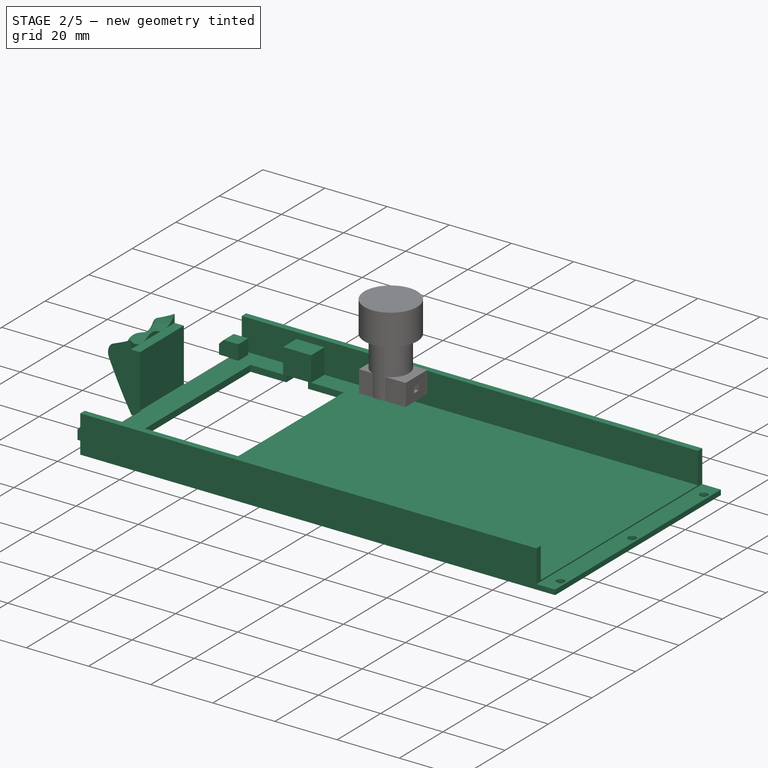
[diagram: stage 2 of 5 — iso view after this stage's code; geometry added in this stage tinted green]
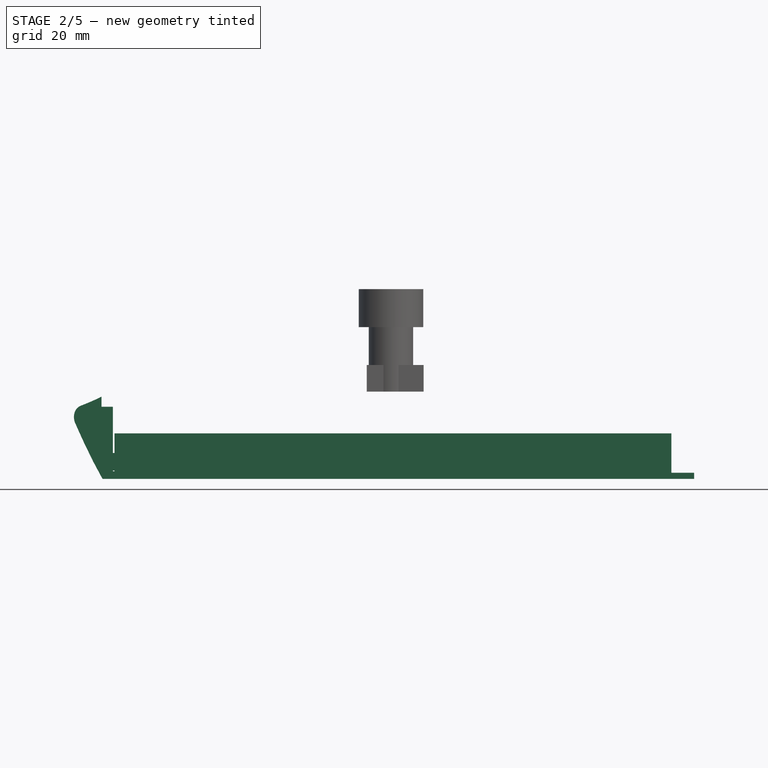
[diagram: stage 2 of 5 — front view after this stage's code; geometry added in this stage tinted green]
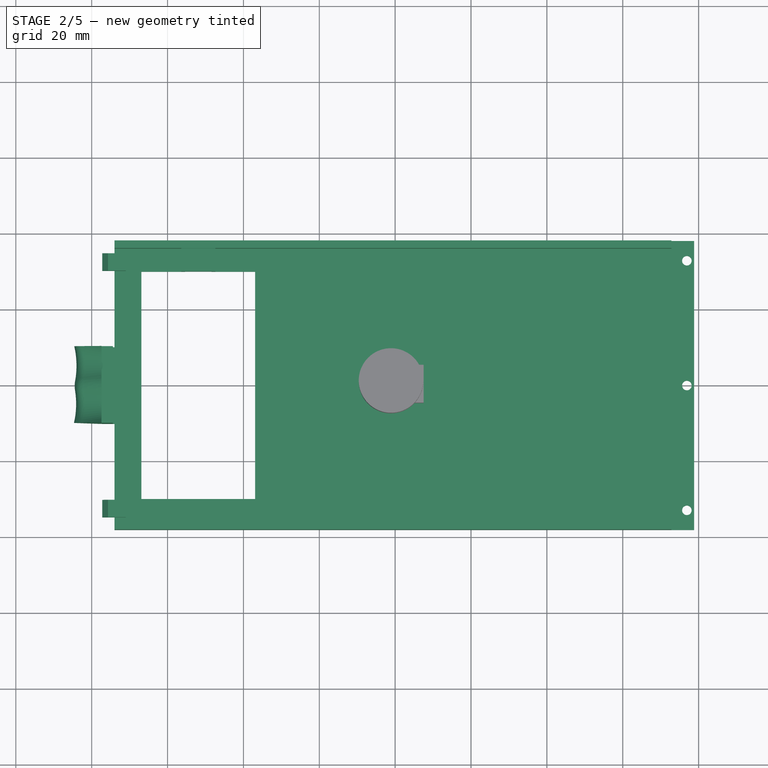
[diagram: stage 2 of 5 — top view after this stage's code; geometry added in this stage tinted green]
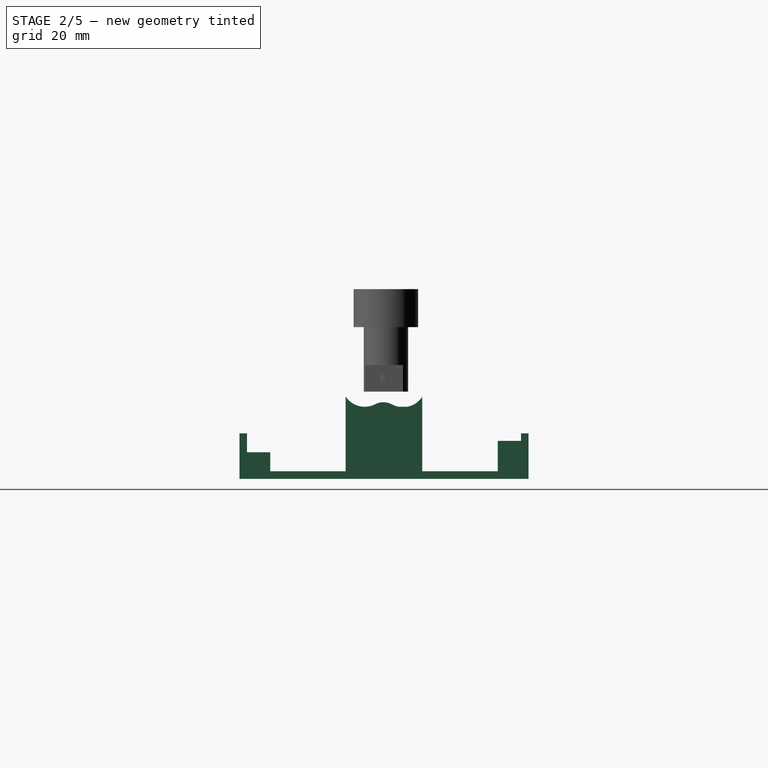
[diagram: stage 2 of 5 — right view after this stage's code; geometry added in this stage tinted green]
FEATURE [Sketcher::SketchObject] Sketch075
  ExternalGeometry = -> [Pad047]
  FullyConstrained = true
  MapMode = 5
  Placement = pos=(0,-34.9,0) rot=(0,0.707107,0.707107;3.14159rad)
  Support = -> [Pad047]
  sketch-geometry (1):
    g0: Circle CenterX=26.56 CenterY=29 CenterZ=0 NormalX=0 NormalY=0 NormalZ=1 AngleXU=0 Radius=1.5
  constraints (2):
    c: Diameter(g0) = 3
    c: Symmetric(g-3,g-4,g0)
FEATURE [PartDesign::Pocket] Pocket023
  BaseFeature = -> Pad047
  Direction = (0,-1,-2e-16)
  Length = 7.6
  Length2 = 5
  Profile = -> Sketch075
  ReferenceAxis = -> Sketch075 [N_Axis]
  Type = 0
FEATURE [PartDesign::Chamfer] Chamfer007
  Angle = 45
  Base = -> Pocket023 [Edge75]
  BaseFeature = -> Pocket023
  ChamferType = 0
  FlipDirection = false
  Size = 4
  Size2 = 1
  SupportTransform = false
  UseAllEdges = false
FEATURE [Sketcher::SketchObject] Sketch076
  ExternalGeometry = -> [Chamfer007]
  FullyConstrained = true
  MapMode = 5
  Placement = pos=(0,-34.9,0) rot=(0,0.707107,0.707107;3.14159rad)
  Support = -> [Chamfer007]
  sketch-geometry (4):
    g0: LineSegment StartX=25.06 StartY=25 StartZ=0 EndX=28.06 EndY=25 EndZ=0
    g1: LineSegment StartX=28.06 StartY=25 StartZ=0 EndX=28.06 EndY=29 EndZ=0
    g2: LineSegment StartX=28.06 StartY=29 StartZ=0 EndX=25.06 EndY=29 EndZ=0
    g3: LineSegment StartX=25.06 StartY=29 StartZ=0 EndX=25.06 EndY=25 EndZ=0
  constraints (12):
    c: Coincident(g0,g1)
    c: Coincident(g1,g2)
    c: Coincident(g2,g3)
    c: Coincident(g3,g0)
    c: Horizontal(g0)
    c: Horizontal(g2)
    c: Vertical(g1)
    c: Vertical(g3)
    c: PointOnObject(g0,g-4)
    c: Tangent(g1,g-3)
    c: Tangent(g3,g-3)
    c: PointOnObject(g-3,g2)
FEATURE [PartDesign::Pocket] Pocket024
  BaseFeature = -> Chamfer007
  Direction = (0,-1,-2e-16)
  Length = 3.6
  Length2 = 5
  Profile = -> Sketch076
  ReferenceAxis = -> Sketch076 [N_Axis]
  Type = 0
FEATURE [Sketcher::SketchObject] Sketch077
  FullyConstrained = true
  MapMode = 5
  Placement = pos=(0,-40.9,0) rot=(1,0,0;1.5708rad)
  Support = -> [Pocket024]
  sketch-geometry (4):
    g0: LineSegment StartX=10 StartY=29 StartZ=0 EndX=24 EndY=29 EndZ=0
    g1: LineSegment StartX=24 StartY=29 StartZ=0 EndX=24 EndY=20 EndZ=0
    g2: LineSegment StartX=24 StartY=20 StartZ=0 EndX=10 EndY=20 EndZ=0
    g3: LineSegment StartX=10 StartY=20 StartZ=0 EndX=10 EndY=29 EndZ=0
  constraints (12):
    c: Coincident(g0,g1)
    c: Coincident(g1,g2)
    c: Coincident(g2,g3)
    c: Coincident(g3,g0)
    c: Horizontal(g0)
    c: Horizontal(g2)
    c: Vertical(g1)
    c: Vertical(g3)
    c: DistanceY(g1,g1) = 9
    c: DistanceX(g0,g0) = 14
    c: DistanceX(g-1,g2) = 10
    c: DistanceY(g-1,g2) = 20
FEATURE [PartDesign::Pocket] Pocket025
  BaseFeature = -> Pocket024
  Direction = (0,1,-2e-16)
  Length = 5
  Length2 = 5
  Profile = -> Sketch077
  ReferenceAxis = -> Sketch077 [N_Axis]
  Type = 0
FEATURE [Sketcher::SketchObject] Sketch078
  AttachmentOffset = pos=(0,0,-7) rot=(0,0,1;0rad)
  ExternalGeometry = -> [Pocket025]
  FullyConstrained = true
  MapMode = 5
  Placement = pos=(73.405,0,0) rot=(0.57735,0.57735,0.57735;2.0944rad)
  Support = -> [Pocket025]
  sketch-geometry (4):
    g0: LineSegment StartX=-40.9 StartY=0 StartZ=0 EndX=40.9 EndY=0 EndZ=0
    g1: LineSegment StartX=40.9 StartY=0 StartZ=0 EndX=40.9 EndY=40 EndZ=0
    g2: LineSegment StartX=40.9 StartY=40 StartZ=0 EndX=-40.9 EndY=40 EndZ=0
    g3: LineSegment StartX=-40.9 StartY=40 StartZ=0 EndX=-40.9 EndY=0 EndZ=0
  constraints (11):
    c: Coincident(g0,g1)
    c: Coincident(g1,g2)
    c: Coincident(g2,g3)
    c: Coincident(g3,g0)
    c: Horizontal(g0)
    c: Horizontal(g2)
    c: Vertical(g1)
    c: Vertical(g3)
    c: PointOnObject(g0,g-1)
    c: Coincident(g1,g-3)
    c: PointOnObject(g-3,g3)
FEATURE [PartDesign::Pad] Pad048
  BaseFeature = -> Pocket025
  Direction = (1,0,0)
  Length = 7
  Length2 = 10
  Profile = -> Sketch078
  ReferenceAxis = -> Sketch078 [N_Axis]
  Type = 0
FEATURE [Sketcher::SketchObject] Sketch079
  FullyConstrained = true
  MapMode = 5
  Placement = pos=(80.405,0,0) rot=(0.57735,0.57735,0.57735;2.0944rad)
  Support = -> [Pad048]
  sketch-geometry (12):
    g0: LineSegment StartX=4.5 StartY=27 StartZ=0 EndX=11.9 EndY=27 EndZ=0
    g1: LineSegment StartX=11.9 StartY=27 StartZ=0 EndX=11.9 EndY=23 EndZ=0
    g2: LineSegment StartX=11.9 StartY=23 StartZ=0 EndX=4.5 EndY=23 EndZ=0
    g3: LineSegment StartX=4.5 StartY=23 StartZ=0 EndX=4.5 EndY=27 EndZ=0
    g4: LineSegment StartX=21.9 StartY=27 StartZ=0 EndX=31.2 EndY=27 EndZ=0
    g5: LineSegment StartX=31.2 StartY=27 StartZ=0 EndX=31.2 EndY=23 EndZ=0
    g6: LineSegment StartX=31.2 StartY=23 StartZ=0 EndX=21.9 EndY=23 EndZ=0
    g7: LineSegment StartX=21.9 StartY=23 StartZ=0 EndX=21.9 EndY=27 EndZ=0
    g8: LineSegment StartX=-32.7 StartY=32.3 StartZ=0 EndX=-17.7 EndY=32.3 EndZ=0
    g9: LineSegment StartX=-17.7 StartY=32.3 StartZ=0 EndX=-17.7 EndY=25.3 EndZ=0
    g10: LineSegment StartX=-17.7 StartY=25.3 StartZ=0 EndX=-32.7 EndY=25.3 EndZ=0
    g11: LineSegment StartX=-32.7 StartY=25.3 StartZ=0 EndX=-32.7 EndY=32.3 EndZ=0
  constraints (36):
    c: Coincident(g0,g1)
    c: Coincident(g1,g2)
    c: Coincident(g2,g3)
    c: Coincident(g3,g0)
    c: Horizontal(g0)
    c: Horizontal(g2)
    c: Vertical(g1)
    c: Vertical(g3)
    c: Coincident(g4,g5)
    c: Coincident(g5,g6)
    c: Coincident(g6,g7)
    c: Coincident(g7,g4)
    c: Horizontal(g4)
    c: Horizontal(g6)
    c: Vertical(g5)
    c: Vertical(g7)
    c: Coincident(g8,g9)
    c: Coincident(g9,g10)
    c: Coincident(g10,g11)
    c: Coincident(g11,g8)
    c: Horizontal(g8)
    c: Horizontal(g10)
    c: Vertical(g9)
    c: Vertical(g11)
    c: DistanceY(g3,g3) = 4
    c: DistanceY(g7,g7) = 4
    c: DistanceY(g9,g9) = 7
    c: DistanceX(g8,g8) = 15
    c: DistanceX(g0,g0) = 7.4
    c: DistanceX(g4,g4) = 9.3
    c: DistanceY(g-1,g2) = 23
    c: PointOnObject(g6,g2)
    c: DistanceX(g-1,g2) = 4.5
    c: DistanceX(g1,g6) = 10
    c: DistanceX(g9,g-1) = 17.7
    c: DistanceY(g-1,g9) = 25.3
FEATURE [PartDesign::Pocket] Pocket026
  BaseFeature = -> Pad048
  Direction = (-1,0,0)
  Length = 8
  Length2 = 5
  Profile = -> Sketch079
  ReferenceAxis = -> Sketch079 [N_Axis]
  Type = 0
FEATURE [Sketcher::SketchObject] Sketch080
  ExternalGeometry = -> [Pocket026]
  FullyConstrained = true
  MapMode = 5
  Placement = pos=(80.405,0,0) rot=(0.57735,0.57735,0.57735;2.0944rad)
  Support = -> [Pocket026]
  sketch-geometry (8):
    g0: LineSegment StartX=-37.7 StartY=37.3 StartZ=0 EndX=-12.7 EndY=37.3 EndZ=0
    g1: LineSegment StartX=-12.7 StartY=37.3 StartZ=0 EndX=-12.7 EndY=20.3 EndZ=0
    g2: LineSegment StartX=-12.7 StartY=20.3 StartZ=0 EndX=-37.7 EndY=20.3 EndZ=0
    g3: LineSegment StartX=-37.7 StartY=20.3 StartZ=0 EndX=-37.7 EndY=37.3 EndZ=0
    g4: LineSegment StartX=-0.5 StartY=32 StartZ=0 EndX=36.2 EndY=32 EndZ=0
    g5: LineSegment StartX=36.2 StartY=32 StartZ=0 EndX=36.2 EndY=18 EndZ=0
    g6: LineSegment StartX=36.2 StartY=18 StartZ=0 EndX=-0.5 EndY=18 EndZ=0
    g7: LineSegment StartX=-0.5 StartY=18 StartZ=0 EndX=-0.5 EndY=32 EndZ=0
  constraints (24):
    c: Coincident(g0,g1)
    c: Coincident(g1,g2)
    c: Coincident(g2,g3)
    c: Coincident(g3,g0)
    c: Horizontal(g0)
    c: Horizontal(g2)
    c: Vertical(g1)
    c: Vertical(g3)
    c: Coincident(g4,g5)
    c: Coincident(g5,g6)
    c: Coincident(g6,g7)
    c: Coincident(g7,g4)
    c: Horizontal(g4)
    c: Horizontal(g6)
    c: Vertical(g5)
    c: Vertical(g7)
    c: DistanceX(g2,g-5) = 5
    c: DistanceX(g-6,g0) = 5
    c: DistanceX(g6,g-3) = 5
    c: DistanceX(g-4,g4) = 5
    c: DistanceY(g2,g-5) = 5
    c: DistanceY(g-6,g0) = 5
    c: DistanceY(g6,g-3) = 5
    c: DistanceY(g-4,g4) = 5
FEATURE [PartDesign::Pocket] Pocket027
  BaseFeature = -> Pocket026
  Direction = (-1,0,0)
  Length = 6
  Length2 = 5
  Profile = -> Sketch080
  ReferenceAxis = -> Sketch080 [N_Axis]
  Type = 0
FEATURE [PartDesign::Chamfer] Chamfer008
  Angle = 45
  Base = -> Pocket027 [Edge208,Edge205,Edge206,Edge207,Edge201,Edge204,Edge203,Edge202,Edge197,Edge200,Edge199,Edge198]
  BaseFeature = -> Pocket027
  ChamferType = 0
  FlipDirection = false
  Size = 0.9
  Size2 = 1
  SupportTransform = false
  UseAllEdges = false
FEATURE [Sketcher::SketchObject] Sketch081
  AttachmentOffset = pos=(0,0,-6) rot=(0,0,1;0rad)
  ExternalGeometry = -> [Chamfer008]
  FullyConstrained = true
  MapMode = 5
  Placement = pos=(-74.405,0,0) rot=(0.57735,-0.57735,-0.57735;2.0944rad)
  Support = -> [Chamfer008]
  sketch-geometry (4):
    g0: LineSegment StartX=-40.9 StartY=0 StartZ=0 EndX=40.9 EndY=0 EndZ=0
    g1: LineSegment StartX=40.9 StartY=0 StartZ=0 EndX=40.9 EndY=42 EndZ=0
    g2: LineSegment StartX=40.9 StartY=42 StartZ=0 EndX=-40.9 EndY=42 EndZ=0
    g3: LineSegment StartX=-40.9 StartY=42 StartZ=0 EndX=-40.9 EndY=0 EndZ=0
  constraints (11):
    c: Coincident(g0,g1)
    c: Coincident(g1,g2)
    c: Coincident(g2,g3)
    c: Coincident(g3,g0)
    c: Horizontal(g0)
    c: Horizontal(g2)
    c: Vertical(g1)
    c: Vertical(g3)
    c: PointOnObject(g0,g-1)
    c: Coincident(g1,g-3)
    c: PointOnObject(g-3,g3)
FEATURE [PartDesign::Pad] Pad049
  BaseFeature = -> Chamfer008
  Direction = (-1,0,0)
  Length = 14
  Length2 = 10
  Profile = -> Sketch081
  ReferenceAxis = -> Sketch081 [N_Axis]
  Type = 0
FEATURE [Sketcher::SketchObject] Sketch082
  ExternalGeometry = -> [Pad049]
  FullyConstrained = false
  MapMode = 5
  Placement = pos=(0,40.9,0) rot=(0,0.707107,0.707107;3.14159rad)
  Support = -> [Pad049]
  sketch-geometry (24):
    g0: LineSegment StartX=74.405 StartY=42 StartZ=0 EndX=74.405 EndY=47.5945 EndZ=0
    g1: LineSegment StartX=74.405 StartY=47.5945 StartZ=0 EndX=111.445 EndY=47.5945 EndZ=0
    g2: LineSegment StartX=111.445 StartY=47.5945 StartZ=0 EndX=111.445 EndY=-15.7144 EndZ=0
    g3: LineSegment StartX=111.445 StartY=-15.7144 StartZ=0 EndX=77.1524 EndY=-15.7144 EndZ=0
    g4: LineSegment StartX=77.1524 StartY=-15.7144 StartZ=0 EndX=77.1524 EndY=0 EndZ=0
    g5-g14: Circle x10 (B-spline internal-alignment scaffolding for g15; pole/knot coordinates omitted)
    g15: BSplineCurve PolesCount=10 KnotsCount=8 Degree=3 IsPeriodic=0
    g16-g23: GeomPoint x8 (B-spline internal-alignment scaffolding for g15; pole/knot coordinates omitted)
  constraints (19):
    c: Coincident(g0,g-3)
    c: Vertical(g0)
    c: Coincident(g1,g0)
    c: Horizontal(g1)
    c: Coincident(g2,g1)
    c: Vertical(g2)
    c: Coincident(g3,g2)
    c: Horizontal(g3)
    c: Coincident(g4,g3)
    c: PointOnObject(g4,g-1)
    c: Vertical(g4)
    c: Weight(g5) = 1
    c: Coincident(g15,g0)
    c: Equal(g5, g6-g10) x5
    c: PointOnObject(g10,g-4)
    c: Equal(g5, g11-g14) x4
    c: Coincident(g15,g4)
    c: InternalAlignment(g5-g14 -> g15) x10
    c: InternalAlignment(g16-g23 -> g15) x8
FEATURE [PartDesign::Pocket] Pocket028
  BaseFeature = -> Pad049
  Direction = (0,-1,2e-16)
  Length = 0
  Length2 = 5
  Profile = -> Sketch082
  ReferenceAxis = -> Sketch082 [N_Axis]
  Type = 1
FEATURE [Sketcher::SketchObject] Sketch083
  AttachmentOffset = pos=(-74,25,-5) rot=(0,0,1;0rad)
  FullyConstrained = true
  MapMode = 5
  Placement = pos=(-74,5,25) rot=(1,0,0;1.5708rad)
  Support = -> [XZ_Plane003]
  sketch-geometry (4):
    g0: LineSegment StartX=0 StartY=0 StartZ=0 EndX=0 EndY=-5 EndZ=0
    g1: LineSegment StartX=0 StartY=-5 StartZ=0 EndX=-17 EndY=-10.5 EndZ=0
    g2: LineSegment StartX=-17 StartY=-10.5 StartZ=0 EndX=-17 EndY=0 EndZ=0
    g3: LineSegment StartX=-17 StartY=0 StartZ=0 EndX=0 EndY=0 EndZ=0
  constraints (11):
    c: Coincident(g0,g-1)
    c: PointOnObject(g0,g-2)
    c: Coincident(g1,g0)
    c: Coincident(g2,g1)
    c: PointOnObject(g2,g-1)
    c: Coincident(g3,g2)
    c: Coincident(g3,g0)
    c: DistanceY(g0,g0) = 5
    c: Vertical(g2)
    c: DistanceX(g3,g3) = 17
    c: DistanceY(g2,g2) = 10.5
FEATURE [Sketcher::SketchObject] Sketch084
  AttachmentOffset = pos=(0,25,-5) rot=(0,0,1;0rad)
  FullyConstrained = false
  MapMode = 5
  Placement = pos=(0,5,25) rot=(1,0,0;1.5708rad)
  Support = -> [XZ_Plane003]
  sketch-geometry (1):
    g0: LineSegment StartX=0 StartY=0 StartZ=0 EndX=-137.47 EndY=0 EndZ=0
  constraints (2):
    c: Coincident(g0,g-1)
    c: Horizontal(g0)
FEATURE [PartDesign::Groove] Groove
  Angle = 360
  Axis = (-1,0,0)
  Base = (0,5,25)
  BaseFeature = -> Pocket028
  Profile = -> Sketch083
  ReferenceAxis = -> Sketch084 [Edge1]
  Reversed = true
FEATURE [Sketcher::SketchObject] Sketch085
  AttachmentOffset = pos=(-74,25,5.1) rot=(0,0,1;0rad)
  FullyConstrained = true
  MapMode = 5
  Placement = pos=(-74,-5.1,25) rot=(1,0,0;1.5708rad)
  Support = -> [XZ_Plane003]
  sketch-geometry (4):
    g0: LineSegment StartX=0 StartY=0 StartZ=0 EndX=0 EndY=-5 EndZ=0
    g1: LineSegment StartX=0 StartY=-5 StartZ=0 EndX=-17 EndY=-10 EndZ=0
    g2: LineSegment StartX=-17 StartY=-10 StartZ=0 EndX=-17 EndY=0 EndZ=0
    g3: LineSegment StartX=-17 StartY=0 StartZ=0 EndX=0 EndY=0 EndZ=0
  constraints (11):
    c: Coincident(g0,g-1)
    c: PointOnObject(g0,g-2)
    c: Coincident(g1,g0)
    c: Coincident(g2,g1)
    c: PointOnObject(g2,g-1)
    c: Coincident(g3,g2)
    c: Coincident(g3,g0)
    c: DistanceX(g3,g3) = 17
    c: Vertical(g2)
    c: DistanceY(g0,g0) = 5
    c: DistanceY(g2,g2) = 10
FEATURE [Sketcher::SketchObject] Sketch086
  AttachmentOffset = pos=(0,25,5.1) rot=(0,0,1;0rad)
  FullyConstrained = false
  MapMode = 5
  Placement = pos=(0,-5.1,25) rot=(1,0,0;1.5708rad)
  Support = -> [XZ_Plane003]
  sketch-geometry (1):
    g0: LineSegment StartX=0 StartY=0 StartZ=0 EndX=-116.949 EndY=0 EndZ=0
  constraints (2):
    c: Coincident(g0,g-1)
    c: Horizontal(g0)
FEATURE [PartDesign::Groove] Groove001
  Angle = 360
  Axis = (-1,0,0)
  Base = (0,-5.1,25)
  BaseFeature = -> Groove
  Profile = -> Sketch085
  ReferenceAxis = -> Sketch086 [Edge1]
  Reversed = true
FEATURE [PartDesign::Fillet] Fillet006
  Base = -> Groove001 [Edge330,Edge335]
  BaseFeature = -> Groove001
  Radius = 5
  SupportTransform = false
  UseAllEdges = false
FEATURE [PartDesign::Fillet] Fillet007
  Base = -> Fillet006 [Edge20,Edge11,Edge22,Edge14,Edge19,Edge23,Edge17]
  BaseFeature = -> Fillet006
  Radius = 3
  SupportTransform = false
  UseAllEdges = false
FEATURE [Sketcher::SketchObject] Sketch087
  FullyConstrained = true
  MapMode = 5
  Placement = pos=(-74.405,0,0) rot=(0.57735,0.57735,0.57735;2.0944rad)
  Support = -> [Fillet007]
  sketch-geometry (4):
    g0: LineSegment StartX=-11 StartY=31 StartZ=0 EndX=11 EndY=31 EndZ=0
    g1: LineSegment StartX=11 StartY=31 StartZ=0 EndX=11 EndY=19 EndZ=0
    g2: LineSegment StartX=11 StartY=19 StartZ=0 EndX=-11 EndY=19 EndZ=0
    g3: LineSegment StartX=-11 StartY=19 StartZ=0 EndX=-11 EndY=31 EndZ=0
  constraints (11):
    c: Coincident(g0,g1)
    c: Coincident(g1,g2)
    c: Coincident(g2,g3)
    c: Coincident(g3,g0)
    c: Horizontal(g0)
    c: Vertical(g1)
    c: Vertical(g3)
    c: DistanceX(g2,g2) = 22
    c: DistanceY(g1,g1) = 12
    c: Symmetric(g2,g1,g-2)
    c: DistanceY(g-1,g1) = 19
FEATURE [PartDesign::Pocket] Pocket029
  BaseFeature = -> Fillet007
  Direction = (-1,0,0)
  Length = 3
  Length2 = 5
  Profile = -> Sketch087
  ReferenceAxis = -> Sketch087 [N_Axis]
  Type = 0
FEATURE [Sketcher::SketchObject] Sketch088
  ExternalGeometry = -> [Pocket029]
  FullyConstrained = true
  MapMode = 5
  Placement = pos=(0,0,0) rot=(1,0,0;3.14159rad)
  Support = -> [Pocket029]
  sketch-geometry (6):
    g0: Circle CenterX=76.905 CenterY=32.9 CenterZ=0 NormalX=0 NormalY=0 NormalZ=1 AngleXU=0 Radius=1.5
    g1: LineSegment StartX=76.905 StartY=32.9 StartZ=0 EndX=76.905 EndY=40.9 EndZ=0
    g2: Circle CenterX=76.905 CenterY=-32.9 CenterZ=0 NormalX=0 NormalY=0 NormalZ=1 AngleXU=0 Radius=1.5
    g3: LineSegment StartX=76.905 StartY=-32.9 StartZ=0 EndX=76.905 EndY=-40.9 EndZ=0
    g4: Circle CenterX=76.905 CenterY=0 CenterZ=0 NormalX=0 NormalY=0 NormalZ=1 AngleXU=0 Radius=1.5
    g5: LineSegment StartX=76.905 StartY=0 StartZ=0 EndX=76.905 EndY=-32.9 EndZ=0
  constraints (15):
    c: Diameter(g0) = 3
    c: DistanceY(g0,g-3) = 8
    c: Coincident(g1,g0)
    c: Vertical(g1)
    c: Symmetric(g-3,g-3,g1)
    c: Equal(g2,g0)
    c: Coincident(g3,g2)
    c: Vertical(g3)
    c: Symmetric(g-4,g-4,g3)
    c: DistanceY(g3,g3) = 8
    c: PointOnObject(g4,g-1)
    c: Equal(g4,g2)
    c: Coincident(g5,g4)
    c: Coincident(g5,g2)
    c: Vertical(g5)
FEATURE [PartDesign::Pocket] Pocket030
  BaseFeature = -> Pocket029
  Direction = (0,0,1)
  Length = 10
  Length2 = 5
  Profile = -> Sketch088
  ReferenceAxis = -> Sketch088 [N_Axis]
  Type = 0
FEATURE [Sketcher::SketchObject] Sketch089
  ExternalGeometry = -> [Pocket030]
  FullyConstrained = true
  MapMode = 5
  Placement = pos=(0,0,0) rot=(1,0,0;3.14159rad)
  Support = -> [Pocket030]
  sketch-geometry (4):
    g0: LineSegment StartX=73.405 StartY=38.5 StartZ=0 EndX=79.205 EndY=38.5 EndZ=0
    g1: LineSegment StartX=79.205 StartY=38.5 StartZ=0 EndX=79.205 EndY=-38.5 EndZ=0
    g2: LineSegment StartX=79.205 StartY=-38.5 StartZ=0 EndX=73.405 EndY=-38.5 EndZ=0
    g3: LineSegment StartX=73.405 StartY=-38.5 StartZ=0 EndX=73.405 EndY=38.5 EndZ=0
  constraints (11):
    c: Coincident(g0,g1)
    c: Coincident(g1,g2)
    c: Coincident(g2,g3)
    c: Coincident(g3,g0)
    c: Horizontal(g0)
    c: Horizontal(g2)
    c: Vertical(g1)
    c: Vertical(g3)
    c: Coincident(g0,g-3)
    c: PointOnObject(g-3,g2)
    c: DistanceX(g1,g-4) = 1.2
FEATURE [PartDesign::Pocket] Pocket031
  BaseFeature = -> Pocket030
  Direction = (0,0,1)
  Length = 2
  Length2 = 5
  Profile = -> Sketch089
  ReferenceAxis = -> Sketch089 [N_Axis]
  Type = 0
FEATURE [Sketcher::SketchObject] Sketch090
  FullyConstrained = true
  MapMode = 5
  Placement = pos=(-74.405,0,0) rot=(0.57735,0.57735,0.57735;2.0944rad)
  Support = -> [Pocket031]
  sketch-geometry (8):
    g0: LineSegment StartX=-35 StartY=7 StartZ=0 EndX=-30 EndY=7 EndZ=0
    g1: LineSegment StartX=-30 StartY=7 StartZ=0 EndX=-30 EndY=2 EndZ=0
    g2: LineSegment StartX=-30 StartY=2 StartZ=0 EndX=-35 EndY=2 EndZ=0
    g3: LineSegment StartX=-35 StartY=2 StartZ=0 EndX=-35 EndY=7 EndZ=0
    g4: LineSegment StartX=30 StartY=7 StartZ=0 EndX=35 EndY=7 EndZ=0
    g5: LineSegment StartX=35 StartY=7 StartZ=0 EndX=35 EndY=2 EndZ=0
    g6: LineSegment StartX=35 StartY=2 StartZ=0 EndX=30 EndY=2 EndZ=0
    g7: LineSegment StartX=30 StartY=2 StartZ=0 EndX=30 EndY=7 EndZ=0
  constraints (23):
    c: Coincident(g0,g1)
    c: Coincident(g1,g2)
    c: Coincident(g2,g3)
    c: Coincident(g3,g0)
    c: Horizontal(g0)
    c: Horizontal(g2)
    c: Vertical(g1)
    c: Vertical(g3)
    c: Coincident(g4,g5)
    c: Coincident(g5,g6)
    c: Coincident(g6,g7)
    c: Coincident(g7,g4)
    c: Horizontal(g4)
    c: Horizontal(g6)
    c: Vertical(g5)
    c: Vertical(g7)
    c: Equal(g0,g1)
    c: Equal(g1,g7)
    c: Equal(g7,g4)
    c: DistanceX(g4,g4) = 5
    c: DistanceY(g-1,g1) = 2
    c: DistanceX(g1,g-1) = 30
    c: Symmetric(g1,g6,g-2)
FEATURE [PartDesign::Pocket] Pocket032
  BaseFeature = -> Pocket031
  Direction = (-1,0,0)
  Length = 3
  Length2 = 5
  Profile = -> Sketch090
  ReferenceAxis = -> Sketch090 [N_Axis]
  Type = 0
FEATURE [PartDesign::Fillet] Fillet008
  Base = -> Pocket032
  BaseFeature = -> Pocket032
  Radius = 1.5
  SupportTransform = false
  UseAllEdges = false
FEATURE [Sketcher::SketchObject] Sketch105
  FullyConstrained = true
  MapMode = 5
  Placement = pos=(0,0,0) rot=(1,0,0;3.14159rad)
  Support = -> [Fillet008]
  sketch-geometry (3):
    g0: LineSegment StartX=-90 StartY=10.5 StartZ=0 EndX=-60 EndY=10.5 EndZ=0
    g1: LineSegment StartX=-60 StartY=10.5 StartZ=0 EndX=-60 EndY=-10.5 EndZ=0
    g2: LineSegment StartX=-60 StartY=-10.5 StartZ=0 EndX=-90 EndY=-10.5 EndZ=0
  constraints (9):
    c: Coincident(g0,g1)
    c: Coincident(g1,g2)
    c: Horizontal(g0)
    c: Horizontal(g2)
    c: DistanceY(g1,g1) = 21
    c: Symmetric(g1,g0,g-1)
    c: DistanceX(g0,g0) = 30
    c: DistanceX(g0,g-1) = 60
    c: Equal(g0,g2)
FEATURE [Sketcher::SketchObject] Sketch106
  AttachmentOffset = pos=(0,0,-24) rot=(0,0,1;0rad)
  FullyConstrained = true
  MapMode = 5
  Placement = pos=(0,0,24) rot=(1,0,0;3.14159rad)
  Support = -> [Fillet008]
  sketch-geometry (3):
    g0: LineSegment StartX=-60 StartY=10.5 StartZ=0 EndX=-60 EndY=-10.5 EndZ=0
    g1: LineSegment StartX=-60 StartY=-10.5 StartZ=0 EndX=-90 EndY=-10.5 EndZ=0
    g2: LineSegment StartX=-90 StartY=10.5 StartZ=0 EndX=-60 EndY=10.5 EndZ=0
  constraints (9):
    c: Coincident(g0,g1)
    c: Horizontal(g1)
    c: DistanceX(g2,g0) = 30
    c: DistanceY(g0,g0) = 21
    c: DistanceX(g0) = -60
    c: Symmetric(g0,g0,g-1)
    c: Coincident(g2,g0)
    c: Horizontal(g2)
    c: Equal(g2,g1)
FEATURE [PartDesign::Body] Body003  label="top-1"
  Group = -> [Sketch063,Pad042,Sketch064,Pad043,Sketch065,Pocket018,Chamfer003,Sketch066,Pocket019,Sketch067,Pad044,Chamfer004,Sketch068,Pad045,Sketch069,Pad046,Chamfer005,Sketch070,Revolution,Sketch071,Pocket020,Sketch072,Pocket021,Fillet004,Fillet005,Sketch073,Pocket022,Chamfer006,Sketch074,Pad047,Sketch075,Pocket023,Chamfer007,Sketch076,Pocket024,Sketch077,Pocket025,Sketch078,Pad048,Sketch079,Pocket026,+26 more]
  Origin = -> Origin003
  Placement = pos=(0,0,-23) rot=(0,0,1;0rad)
  Tip = -> Fillet008
FEATURE [Part::RuledSurface] Ruled_Surface
  Curve1 = -> Sketch105
  Curve2 = -> Sketch106
  Orientation = 0
  Placement = pos=(0,0,-24) rot=(0,0,1;0rad)
FEATURE [Part::FeaturePython] Slice  # WARN: FeaturePython — macro-defined, semantics opaque (R4)
  Base = -> Body003
  Mode = 1
  Tolerance = 0
  Tools = -> [Ruled_Surface]
FEATURE [Part::FeaturePython] Slice_child1  label="Slice.1"  # WARN: FeaturePython — macro-defined, semantics opaque (R4)
  Base = -> Slice
  FilterType = 1
  Invert = false
  OverrideMaxVal = 0
  WindowFrom = 80
  WindowTo = 100
  items = 1
FEATURE [PartDesign::FeatureBase] BaseFeature001
  BaseFeature = -> Slice_child1
FEATURE [Sketcher::SketchObject] Sketch107
  ExternalGeometry = -> [BaseFeature001]
  FullyConstrained = true
  MapMode = 5
  Placement = pos=(0,0,-23) rot=(1,0,0;3.14159rad)
  Support = -> [BaseFeature001]
  sketch-geometry (8):
    g0: LineSegment StartX=-74.405 StartY=10.5 StartZ=0 EndX=-89.405 EndY=10.5 EndZ=0
    g1: LineSegment StartX=-89.405 StartY=10.5 StartZ=0 EndX=-89.405 EndY=10.1 EndZ=0
    g2: LineSegment StartX=-89.405 StartY=10.1 StartZ=0 EndX=-74.405 EndY=10.1 EndZ=0
    g3: LineSegment StartX=-74.405 StartY=10.1 StartZ=0 EndX=-74.405 EndY=10.5 EndZ=0
    g4: LineSegment StartX=-74.405 StartY=-10.5 StartZ=0 EndX=-89.405 EndY=-10.5 EndZ=0
    g5: LineSegment StartX=-89.405 StartY=-10.5 StartZ=0 EndX=-89.405 EndY=-10.1 EndZ=0
    g6: LineSegment StartX=-89.405 StartY=-10.1 StartZ=0 EndX=-74.405 EndY=-10.1 EndZ=0
    g7: LineSegment StartX=-74.405 StartY=-10.1 StartZ=0 EndX=-74.405 EndY=-10.5 EndZ=0
  constraints (22):
    c: Coincident(g0,g1)
    c: Coincident(g1,g2)
    c: Coincident(g2,g3)
    c: Coincident(g3,g0)
    c: Horizontal(g0)
    c: Horizontal(g2)
    c: Vertical(g1)
    c: Vertical(g3)
    c: Coincident(g0,g-3)
    c: Coincident(g4,g5)
    c: Coincident(g5,g6)
    c: Coincident(g6,g7)
    c: Coincident(g7,g4)
    c: Horizontal(g4)
    c: Horizontal(g6)
    c: Vertical(g5)
    c: Vertical(g7)
    c: Coincident(g4,g-4)
    c: Equal(g5,g1)
    c: Equal(g2,g6)
    c: DistanceX(g0,g0) = 15
    c: DistanceY(g1,g1) = 0.4
FEATURE [PartDesign::Pocket] Pocket043
  BaseFeature = -> BaseFeature001
  Direction = (0,0,1)
  Length = 5
  Length2 = 5
  Profile = -> Sketch107
  ReferenceAxis = -> Sketch107 [N_Axis]
  Type = 1
FEATURE [Sketcher::SketchObject] Sketch108
  ExternalGeometry = -> [Pocket043]
  FullyConstrained = true
  MapMode = 5
  Placement = pos=(0,0,-23) rot=(1,0,0;3.14159rad)
  Support = -> [Pocket043]
  sketch-geometry (4):
    g0: LineSegment StartX=-74.405 StartY=-10.1 StartZ=0 EndX=-69.405 EndY=-10.1 EndZ=0
    g1: LineSegment StartX=-69.405 StartY=-10.1 StartZ=0 EndX=-69.405 EndY=10.1 EndZ=0
    g2: LineSegment StartX=-69.405 StartY=10.1 StartZ=0 EndX=-74.405 EndY=10.1 EndZ=0
    g3: LineSegment StartX=-74.405 StartY=10.1 StartZ=0 EndX=-74.405 EndY=-10.1 EndZ=0
  constraints (11):
    c: Coincident(g0,g1)
    c: Coincident(g1,g2)
    c: Coincident(g2,g3)
    c: Coincident(g3,g0)
    c: Horizontal(g0)
    c: Horizontal(g2)
    c: Vertical(g1)
    c: Vertical(g3)
    c: Coincident(g0,g-4)
    c: PointOnObject(g-3,g2)
    c: DistanceX(g2,g2) = 5
FEATURE [PartDesign::Pad] Pad056
  BaseFeature = -> Pocket043
  Direction = (0,0,-1)
  Length = 2
  Length2 = 10
  Profile = -> Sketch108
  ReferenceAxis = -> Sketch108 [N_Axis]
  Reversed = true
  Type = 0
FEATURE [PartDesign::Body] Body004  label="cup-01"
  Group = -> [Sketch091,Pad050,Sketch092,Pocket033,Sketch093,Pocket034,Chamfer010,Sketch094,Pad051,Pocket035,Chamfer012,Chamfer017]
  Origin = -> Origin004
  Placement = pos=(0,0,-23) rot=(0,0,1;0rad)
  Tip = -> Chamfer017
FEATURE [PartDesign::Boolean] Boolean
  BaseFeature = -> Pad056
  Group = -> [Body004]
  Type = 0
FEATURE [Sketcher::SketchObject] Sketch109
  ExternalGeometry = -> [Boolean]
  FullyConstrained = true
  MapMode = 5
  Placement = pos=(0,0,-21) rot=(0,0,1;0rad)
  Support = -> [Boolean]
  sketch-geometry (8):
    g0: LineSegment StartX=-74 StartY=-38.1 StartZ=0 EndX=72.8 EndY=-38.1 EndZ=0
    g1: LineSegment StartX=72.8 StartY=-38.1 StartZ=0 EndX=72.8 EndY=-36.1 EndZ=0
    g2: LineSegment StartX=72.8 StartY=-36.1 StartZ=0 EndX=-74 EndY=-36.1 EndZ=0
    g3: LineSegment StartX=-74 StartY=-36.1 StartZ=0 EndX=-74 EndY=-38.1 EndZ=0
    g4: LineSegment StartX=-74 StartY=38.1 StartZ=0 EndX=72.8 EndY=38.1 EndZ=0
    g5: LineSegment StartX=72.8 StartY=38.1 StartZ=0 EndX=72.8 EndY=36.1 EndZ=0
    g6: LineSegment StartX=72.8 StartY=36.1 StartZ=0 EndX=-74 EndY=36.1 EndZ=0
    g7: LineSegment StartX=-74 StartY=36.1 StartZ=0 EndX=-74 EndY=38.1 EndZ=0
  constraints (22):
    c: Coincident(g0,g1)
    c: Coincident(g1,g2)
    c: Coincident(g2,g3)
    c: Coincident(g3,g0)
    c: Horizontal(g0)
    c: Horizontal(g2)
    c: Vertical(g1)
    c: Vertical(g3)
    c: Coincident(g0,g-4)
    c: Coincident(g4,g5)
    c: Coincident(g5,g6)
    c: Coincident(g6,g7)
    c: Coincident(g7,g4)
    c: Horizontal(g4)
    c: Horizontal(g6)
    c: Vertical(g5)
    c: Vertical(g7)
    c: Coincident(g4,g-3)
    c: PointOnObject(g-3,g5)
    c: DistanceY(g5,g5) = 2
    c: Equal(g5,g1)
    c: PointOnObject(g-4,g1)
FEATURE [PartDesign::Pad] Pad057
  BaseFeature = -> Boolean
  Direction = (0,0,1)
  Length = 10
  Length2 = 10
  Profile = -> Sketch109
  ReferenceAxis = -> Sketch109 [N_Axis]
  Type = 0
FEATURE [Sketcher::SketchObject] Sketch110
  FullyConstrained = true
  MapMode = 5
  Placement = pos=(0,0,-23) rot=(1,0,0;3.14159rad)
  Support = -> [Pad057]
  sketch-geometry (4):
    g0: LineSegment StartX=-66.9 StartY=30 StartZ=0 EndX=-36.9 EndY=30 EndZ=0
    g1: LineSegment StartX=-36.9 StartY=30 StartZ=0 EndX=-36.9 EndY=-30 EndZ=0
    g2: LineSegment StartX=-36.9 StartY=-30 StartZ=0 EndX=-66.9 EndY=-30 EndZ=0
    g3: LineSegment StartX=-66.9 StartY=-30 StartZ=0 EndX=-66.9 EndY=30 EndZ=0
  constraints (11):
    c: Coincident(g0,g1)
    c: Coincident(g1,g2)
    c: Coincident(g2,g3)
    c: Coincident(g3,g0)
    c: Horizontal(g0)
    c: Horizontal(g2)
    c: Vertical(g3)
    c: DistanceY(g1,g1) = 60
    c: Symmetric(g0,g1,g-1)
    c: DistanceX(g0,g0) = 30
    c: DistanceX(g1,g-1) = 36.9
FEATURE [PartDesign::Pocket] Pocket044
  BaseFeature = -> Pad057
  Direction = (0,0,1)
  Length = 5
  Length2 = 5
  Profile = -> Sketch110
  ReferenceAxis = -> Sketch110 [N_Axis]
  Type = 0
FEATURE [Sketcher::SketchObject] Sketch111
  ExternalGeometry = -> [Pocket044]
  FullyConstrained = true
  MapMode = 5
  Placement = pos=(0,0,-21) rot=(0,0,1;0rad)
  Support = -> [Pocket044]
  sketch-geometry (4):
    g0: LineSegment StartX=-66.9 StartY=-30 StartZ=0 EndX=-36.9 EndY=-30 EndZ=0
    g1: LineSegment StartX=-36.9 StartY=-30 StartZ=0 EndX=-36.9 EndY=-36.1 EndZ=0
    g2: LineSegment StartX=-36.9 StartY=-36.1 StartZ=0 EndX=-66.9 EndY=-36.1 EndZ=0
    g3: LineSegment StartX=-66.9 StartY=-36.1 StartZ=0 EndX=-66.9 EndY=-30 EndZ=0
  constraints (11):
    c: Coincident(g0,g1)
    c: Coincident(g1,g2)
    c: Coincident(g2,g3)
    c: Coincident(g3,g0)
    c: Horizontal(g0)
    c: Horizontal(g2)
    c: Vertical(g1)
    c: Vertical(g3)
    c: Coincident(g0,g-3)
    c: PointOnObject(g-3,g1)
    c: PointOnObject(g1,g-4)
FEATURE [PartDesign::Pad] Pad058
  BaseFeature = -> Pocket044
  Direction = (0,0,1)
  Length = 5
  Length2 = 10
  Profile = -> Sketch111
  ReferenceAxis = -> Sketch111 [N_Axis]
  Type = 0
FEATURE [Sketcher::SketchObject] Sketch112
  ExternalGeometry = -> [Pad058]
  FullyConstrained = true
  MapMode = 5
  Placement = pos=(0,-30,0) rot=(0,0.707107,0.707107;3.14159rad)
  Support = -> [Pad058]
  sketch-geometry (8):
    g0: LineSegment StartX=41.85 StartY=-21 StartZ=0 EndX=46.85 EndY=-21 EndZ=0
    g1: LineSegment StartX=46.85 StartY=-21 StartZ=0 EndX=46.85 EndY=-18.3 EndZ=0
    g2: LineSegment StartX=46.85 StartY=-18.3 StartZ=0 EndX=41.85 EndY=-18.3 EndZ=0
    g3: LineSegment StartX=41.85 StartY=-18.3 StartZ=0 EndX=41.85 EndY=-21 EndZ=0
    g4: LineSegment StartX=61.95 StartY=-21 StartZ=0 EndX=56.95 EndY=-21 EndZ=0
    g5: LineSegment StartX=56.95 StartY=-21 StartZ=0 EndX=56.95 EndY=-18.3 EndZ=0
    g6: LineSegment StartX=56.95 StartY=-18.3 StartZ=0 EndX=61.95 EndY=-18.3 EndZ=0
    g7: LineSegment StartX=61.95 StartY=-18.3 StartZ=0 EndX=61.95 EndY=-21 EndZ=0
  constraints (24):
    c: Coincident(g0,g1)
    c: Coincident(g1,g2)
    c: Coincident(g2,g3)
    c: Coincident(g3,g0)
    c: Horizontal(g0)
    c: Horizontal(g2)
    c: Vertical(g1)
    c: Vertical(g3)
    c: PointOnObject(g0,g-3)
    c: Coincident(g4,g5)
    c: Coincident(g5,g6)
    c: Coincident(g6,g7)
    c: Coincident(g7,g4)
    c: Horizontal(g4)
    c: Horizontal(g6)
    c: Vertical(g5)
    c: Vertical(g7)
    c: PointOnObject(g4,g-3)
    c: Equal(g2,g6)
    c: Equal(g1,g5)
    c: DistanceX(g4,g-3) = 4.95
    c: DistanceX(g6,g6) = 5
    c: DistanceY(g7,g7) = 2.7
    c: DistanceX(g-3,g0) = 4.95
FEATURE [PartDesign::Pocket] Pocket045
  BaseFeature = -> Pad058
  Direction = (0,-1,2e-16)
  Length = 4
  Length2 = 5
  Profile = -> Sketch112
  ReferenceAxis = -> Sketch112 [N_Axis]
  Type = 0
FEATURE [Sketcher::SketchObject] Sketch113
  ExternalGeometry = -> [Pocket045]
  FullyConstrained = true
  MapMode = 5
  Placement = pos=(0,0,-21) rot=(0,0,1;0rad)
  Support = -> [Pocket045]
  sketch-geometry (4):
    g0: LineSegment StartX=-56.4 StartY=30 StartZ=0 EndX=-47.4 EndY=30 EndZ=0
    g1: LineSegment StartX=-47.4 StartY=30 StartZ=0 EndX=-47.4 EndY=36.1 EndZ=0
    g2: LineSegment StartX=-47.4 StartY=36.1 StartZ=0 EndX=-56.4 EndY=36.1 EndZ=0
    g3: LineSegment StartX=-56.4 StartY=36.1 StartZ=0 EndX=-56.4 EndY=30 EndZ=0
  constraints (12):
    c: Coincident(g0,g1)
    c: Coincident(g1,g2)
    c: Coincident(g2,g3)
    c: Coincident(g3,g0)
    c: Horizontal(g0)
    c: Horizontal(g2)
    c: Vertical(g1)
    c: Vertical(g3)
    c: PointOnObject(g0,g-3)
    c: PointOnObject(g1,g-4)
    c: DistanceX(g0,g0) = 9
    c: DistanceX(g-3,g0) = 10.5
FEATURE [PartDesign::Pad] Pad059
  BaseFeature = -> Pocket045
  Direction = (0,0,1)
  Length = 8
  Length2 = 10
  Profile = -> Sketch113
  ReferenceAxis = -> Sketch113 [N_Axis]
  Type = 0
FEATURE [Sketcher::SketchObject] Sketch114
  ExternalGeometry = -> [Pad059]
  FullyConstrained = true
  MapMode = 5
  Placement = pos=(0,0,-23) rot=(1,0,0;3.14159rad)
  Support = -> [Pad059]
  sketch-geometry (4):
    g0: LineSegment StartX=-55.4 StartY=-30 StartZ=0 EndX=-48.4 EndY=-30 EndZ=0
    g1: LineSegment StartX=-48.4 StartY=-30 StartZ=0 EndX=-48.4 EndY=-37 EndZ=0
    g2: LineSegment StartX=-48.4 StartY=-37 StartZ=0 EndX=-55.4 EndY=-37 EndZ=0
    g3: LineSegment StartX=-55.4 StartY=-37 StartZ=0 EndX=-55.4 EndY=-30 EndZ=0
  constraints (12):
    c: Coincident(g0,g1)
    c: Coincident(g1,g2)
    c: Coincident(g2,g3)
    c: Coincident(g3,g0)
    c: Horizontal(g0)
    c: Horizontal(g2)
    c: Vertical(g1)
    c: Vertical(g3)
    c: PointOnObject(g0,g-3)
    c: DistanceX(g0,g0) = 7
    c: Equal(g0,g1)
    c: DistanceX(g-3,g0) = 11.5
FEATURE [PartDesign::Pocket] Pocket046
  BaseFeature = -> Pad059
  Direction = (0,0,1)
  Length = 2
  Length2 = 5
  Profile = -> Sketch114
  ReferenceAxis = -> Sketch114 [N_Axis]
  Type = 0
FEATURE [Sketcher::SketchObject] Sketch115
  ExternalGeometry = -> [Pocket046]
  FullyConstrained = true
  MapMode = 5
  Placement = pos=(0,0,-21) rot=(1,0,0;3.14159rad)
  Support = -> [Pocket046]
  sketch-geometry (1):
    g0: Circle CenterX=-51.9 CenterY=-33.5 CenterZ=0 NormalX=0 NormalY=0 NormalZ=1 AngleXU=0 Radius=1.5
  constraints (2):
    c: Symmetric(g-3,g-4,g0)
    c: Diameter(g0) = 3
FEATURE [PartDesign::Pocket] Pocket047
  BaseFeature = -> Pocket046
  Direction = (0,0,1)
  Length = 7
  Length2 = 5
  Profile = -> Sketch115
  ReferenceAxis = -> Sketch115 [N_Axis]
  Type = 0
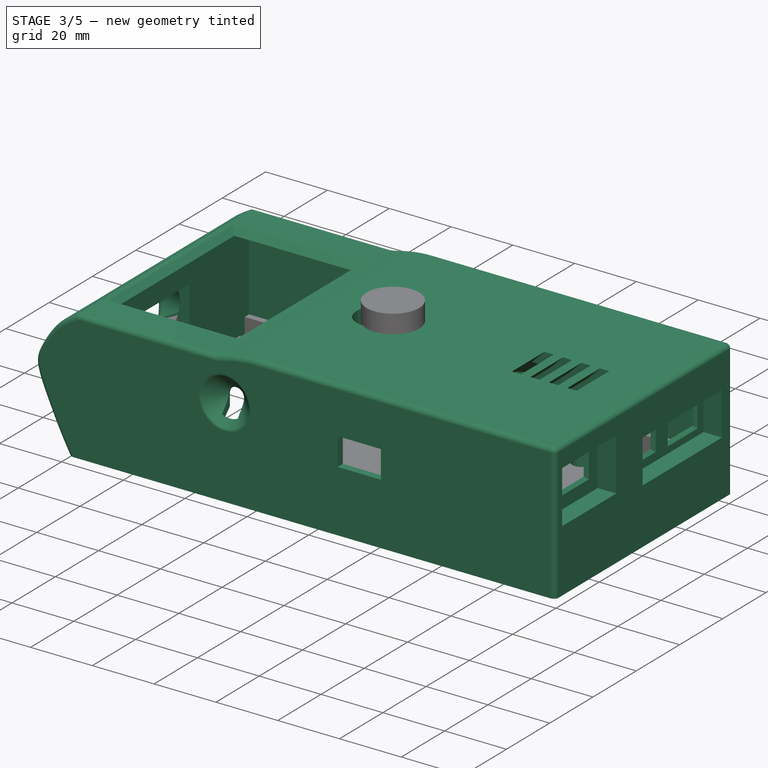
[diagram: stage 3 of 5 — iso view after this stage's code; geometry added in this stage tinted green]
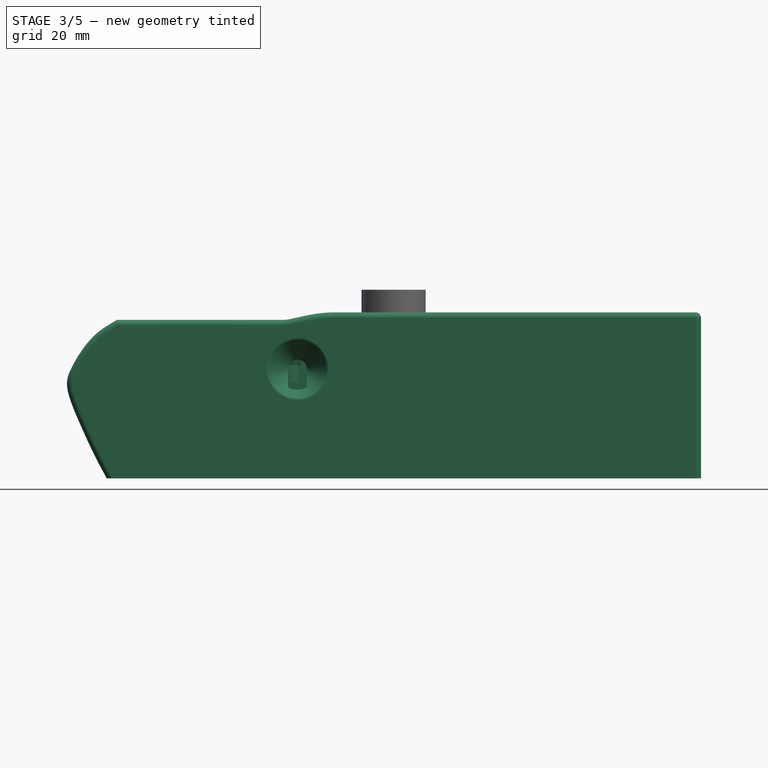
[diagram: stage 3 of 5 — front view after this stage's code; geometry added in this stage tinted green]
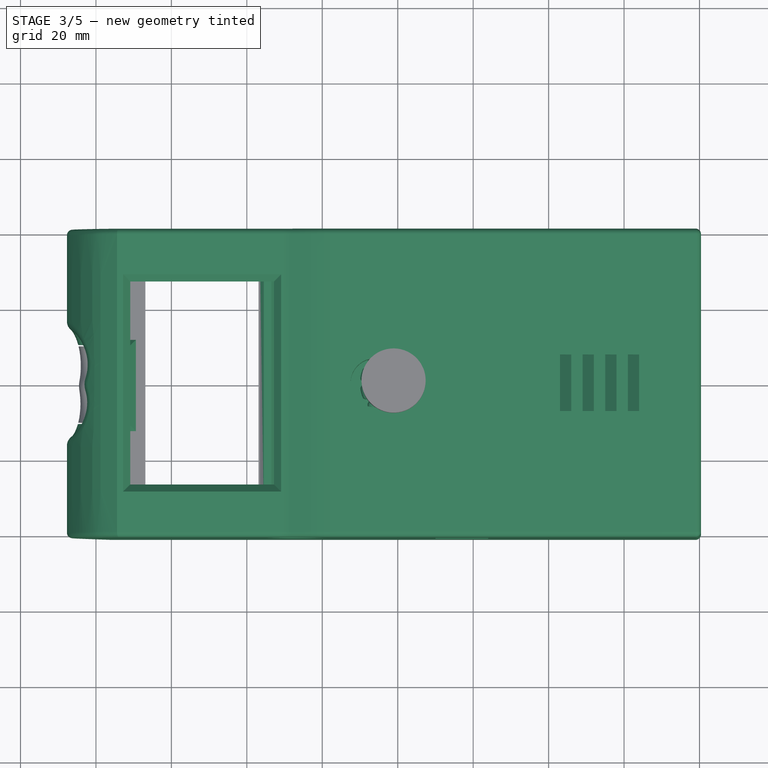
[diagram: stage 3 of 5 — top view after this stage's code; geometry added in this stage tinted green]
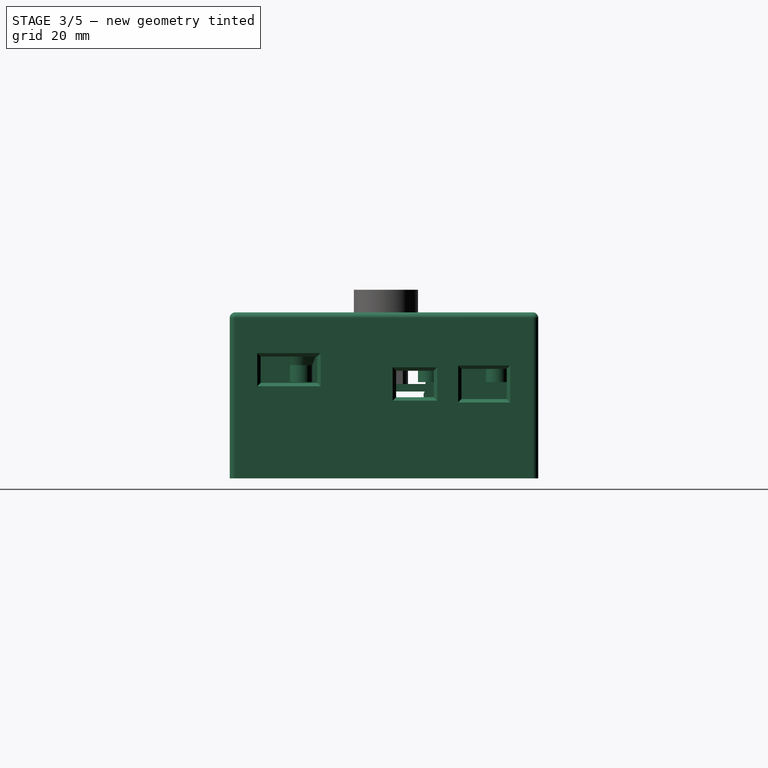
[diagram: stage 3 of 5 — right view after this stage's code; geometry added in this stage tinted green]
FEATURE [Sketcher::SketchObject] Sketch101
  FullyConstrained = true
  MapMode = 5
  Support = -> [XY_Plane005]
  sketch-geometry (8):
    g0: LineSegment StartX=14.8 StartY=29.6 StartZ=0 EndX=14.8 EndY=-29.6 EndZ=0
    g1: LineSegment StartX=14.8 StartY=-29.6 StartZ=0 EndX=-14.8 EndY=-29.6 EndZ=0
    g2: LineSegment StartX=-14.8 StartY=-29.6 StartZ=0 EndX=-14.8 EndY=29.6 EndZ=0
    g3: LineSegment StartX=-14.8 StartY=29.6 StartZ=0 EndX=-3.1 EndY=29.6 EndZ=0
    g4: LineSegment StartX=3.1 StartY=29.6 StartZ=0 EndX=14.8 EndY=29.6 EndZ=0
    g5: LineSegment StartX=3.1 StartY=29.6 StartZ=0 EndX=3.1 EndY=36.6 EndZ=0
    g6: LineSegment StartX=3.1 StartY=36.6 StartZ=0 EndX=-3.1 EndY=36.6 EndZ=0
    g7: LineSegment StartX=-3.1 StartY=36.6 StartZ=0 EndX=-3.1 EndY=29.6 EndZ=0
  constraints (22):
    c: Coincident(g0,g1)
    c: Coincident(g1,g2)
    c: Horizontal(g1)
    c: Vertical(g0)
    c: Vertical(g2)
    c: DistanceY(g0,g0) = 59.2
    c: DistanceX(g1,g1) = 29.6
    c: Symmetric(g1,g0,g-1)
    c: Equal(g2,g0)
    c: Coincident(g3,g2)
    c: Horizontal(g3)
    c: Coincident(g4,g0)
    c: Horizontal(g4)
    c: Coincident(g5,g4)
    c: Vertical(g5)
    c: Coincident(g6,g5)
    c: Coincident(g7,g6)
    c: Coincident(g7,g3)
    c: Vertical(g7)
    c: DistanceX(g6,g6) = 6.2
    c: DistanceY(g5,g5) = 7
    c: Symmetric(g6,g5,g-2)
FEATURE [PartDesign::Pad] Pad054
  Direction = (0,0,1)
  Length = 2
  Length2 = 10
  Profile = -> Sketch101
  ReferenceAxis = -> Sketch101 [N_Axis]
  Type = 0
FEATURE [Sketcher::SketchObject] Sketch102
  ExternalGeometry = -> [Pad054]
  FullyConstrained = true
  MapMode = 5
  Placement = pos=(0,0,2) rot=(0,0,1;0rad)
  Support = -> [Pad054]
  sketch-geometry (4):
    g0: LineSegment StartX=-3.1 StartY=29.6 StartZ=0 EndX=3.1 EndY=29.6 EndZ=0
    g1: LineSegment StartX=3.1 StartY=29.6 StartZ=0 EndX=3.1 EndY=36.6 EndZ=0
    g2: LineSegment StartX=3.1 StartY=36.6 StartZ=0 EndX=-3.1 EndY=36.6 EndZ=0
    g3: LineSegment StartX=-3.1 StartY=36.6 StartZ=0 EndX=-3.1 EndY=29.6 EndZ=0
  constraints (10):
    c: Coincident(g0,g1)
    c: Coincident(g1,g2)
    c: Coincident(g2,g3)
    c: Coincident(g3,g0)
    c: Horizontal(g0)
    c: Horizontal(g2)
    c: Vertical(g1)
    c: Vertical(g3)
    c: Coincident(g0,g-3)
    c: Coincident(g1,g-4)
FEATURE [PartDesign::Pocket] Pocket040
  BaseFeature = -> Pad054
  Direction = (0,0,-1)
  Length = 0.2
  Length2 = 5
  Profile = -> Sketch102
  ReferenceAxis = -> Sketch102 [N_Axis]
  Type = 0
FEATURE [Part::FeaturePython] Slice_child0  label="Slice.0"  # WARN: FeaturePython — macro-defined, semantics opaque (R4)
  Base = -> Slice
  FilterType = 1
  Invert = false
  OverrideMaxVal = 0
  WindowFrom = 80
  WindowTo = 100
  items = 0
FEATURE [App::DocumentObjectGroup] GrExplode_Slice  label="Exploded Slice"
  Group = -> [Slice_child0,Slice_child1]
FEATURE [PartDesign::FeatureBase] BaseFeature
  BaseFeature = -> Slice_child0
FEATURE [PartDesign::Fillet] Fillet009
  Base = -> BaseFeature [Edge70,Edge164,Edge316,Edge385,Edge375,Edge382,Edge308,Edge162,Edge64]
  BaseFeature = -> BaseFeature
  Radius = 1.5
  SupportTransform = false
  UseAllEdges = false
FEATURE [PartDesign::Body] Body005  label="rad-cap"
  Group = -> [Sketch101,Pad054,Sketch102,Pocket040,Sketch103,Pocket041,Chamfer014,Sketch104,Pad055,Pocket042,Chamfer015,Chamfer016,Sketch116,Pocket048]
  Origin = -> Origin005
  Placement = pos=(-51.9,0,-23) rot=(0,0,1;0rad)
  Tip = -> Pocket048
FEATURE [PartDesign::Chamfer] Chamfer018
  Angle = 45
  Base = -> Fillet009 [Edge168,Edge164]
  BaseFeature = -> Fillet009
  ChamferType = 0
  FlipDirection = false
  Size = 3.59
  Size2 = 1
  SupportTransform = false
  UseAllEdges = false
FEATURE [Sketcher::SketchObject] Sketch117
  ExternalGeometry = -> [Pocket047]
  FullyConstrained = true
  MapMode = 5
  Placement = pos=(0,0,-21) rot=(0,0,1;0rad)
  Support = -> [Pocket047]
  sketch-geometry (4):
    g0: LineSegment StartX=-35.5 StartY=36.1 StartZ=0 EndX=-33.5 EndY=36.1 EndZ=0
    g1: LineSegment StartX=-33.5 StartY=36.1 StartZ=0 EndX=-33.5 EndY=-36.1 EndZ=0
    g2: LineSegment StartX=-33.5 StartY=-36.1 StartZ=0 EndX=-35.5 EndY=-36.1 EndZ=0
    g3: LineSegment StartX=-35.5 StartY=-36.1 StartZ=0 EndX=-35.5 EndY=36.1 EndZ=0
  constraints (12):
    c: Coincident(g0,g1)
    c: Coincident(g1,g2)
    c: Coincident(g2,g3)
    c: Coincident(g3,g0)
    c: Horizontal(g0)
    c: Horizontal(g2)
    c: Vertical(g1)
    c: Vertical(g3)
    c: PointOnObject(g0,g-3)
    c: PointOnObject(g1,g-4)
    c: DistanceX(g2,g2) = 2
    c: DistanceX(g-4,g2) = 38.5
FEATURE [PartDesign::Pad] Pad060
  BaseFeature = -> Pocket047
  Direction = (0,0,1)
  Length = 10
  Length2 = 10
  Profile = -> Sketch117
  ReferenceAxis = -> Sketch117 [N_Axis]
  Type = 0
FEATURE [Sketcher::SketchObject] Sketch118
  ExternalGeometry = -> [Chamfer018]
  FullyConstrained = true
  MapMode = 5
  Placement = pos=(0,-34.9,0) rot=(0,0.707107,0.707107;3.14159rad)
  Support = -> [Chamfer018]
  sketch-geometry (5):
    g0: LineSegment StartX=29.06 StartY=-1.59 StartZ=0 EndX=24.06 EndY=-1.59 EndZ=0
    g1: LineSegment StartX=29.06 StartY=-1.59 StartZ=0 EndX=29.06 EndY=6 EndZ=0
    g2: LineSegment StartX=24.06 StartY=-1.59 StartZ=0 EndX=24.06 EndY=6 EndZ=0
    g3: LineSegment StartX=24.06 StartY=6 StartZ=0 EndX=29.06 EndY=6 EndZ=0
    g4: ArcOfCircle CenterX=26.56 CenterY=6 CenterZ=0 NormalX=0 NormalY=0 NormalZ=1 AngleXU=0 Radius=2.5 StartAngle=-7.1e-15 EndAngle=3.14159
  constraints (15):
    c: Horizontal(g0)
    c: PointOnObject(g-4,g0)
    c: Coincident(g1,g0)
    c: Vertical(g1)
    c: Coincident(g2,g0)
    c: Vertical(g2)
    c: Coincident(g3,g2)
    c: Horizontal(g3)
    c: Coincident(g1,g3)
    c: PointOnObject(g-3,g3)
    c: DistanceX(g-4,g0) = 1
    c: DistanceX(g0,g-5) = 1
    c: PointOnObject(g4,g3)
    c: Coincident(g4,g2)
    c: Coincident(g4,g1)
FEATURE [PartDesign::Pocket] Pocket049
  BaseFeature = -> Chamfer018
  Direction = (0,-1,2e-16)
  Length = 3.6
  Length2 = 5
  Profile = -> Sketch118
  ReferenceAxis = -> Sketch118 [N_Axis]
  Type = 0
FEATURE [PartDesign::Chamfer] Chamfer019
  Angle = 45
  Base = -> Pocket049 [Edge13,Edge11,Edge12]
  BaseFeature = -> Pocket049
  ChamferType = 0
  FlipDirection = false
  Size = 3
  Size2 = 1
  SupportTransform = false
  UseAllEdges = false
FEATURE [Sketcher::SketchObject] Sketch119
  ExternalGeometry = -> [Chamfer019]
  FullyConstrained = true
  MapMode = 5
  Placement = pos=(0,5e-16,2.5) rot=(1,0,0;3.14159rad)
  Support = -> [Chamfer019]
  sketch-geometry (3):
    g0: LineSegment StartX=-31.5 StartY=14.6583 StartZ=0 EndX=-31.5 EndY=11.3417 EndZ=0
    g1: LineSegment StartX=-32 StartY=13 StartZ=0 EndX=-31.5 EndY=13 EndZ=0
    g2: ArcOfCircle CenterX=-29 CenterY=13 CenterZ=0 NormalX=0 NormalY=0 NormalZ=1 AngleXU=0 Radius=3 StartAngle=2.55591 EndAngle=3.72728
  constraints (11):
    c: Vertical(g0)
    c: PointOnObject(g1,g-3)
    c: PointOnObject(g1,g0)
    c: Perpendicular(g0,g1)
    c: Perpendicular(g-3,g1)
    c: DistanceX(g1,g1) = 0.5
    c: PointOnObject(g0,g-3)
    c: PointOnObject(g0,g-3)
    c: Coincident(g2,g0)
    c: Coincident(g2,g0)
    c: PointOnObject(g1,g2)
FEATURE [PartDesign::Pocket] Pocket050
  BaseFeature = -> Chamfer019
  Direction = (0,2e-16,1)
  Length = 14.5
  Length2 = 5
  Profile = -> Sketch119
  ReferenceAxis = -> Sketch119 [N_Axis]
  Type = 0
FEATURE [PartDesign::Pocket] Pocket051
  BaseFeature = -> Pocket050
  Direction = (0,0,-1)
  Length = 1
  Length2 = 5
  Profile = -> Pocket050 [Face230]
  Type = 0
FEATURE [PartDesign::Chamfer] Chamfer020
  Angle = 45
  Base = -> Pocket051 [Edge310,Edge301,Edge338,Edge267]
  BaseFeature = -> Pocket051
  ChamferType = 0
  FlipDirection = false
  Size = 5
  Size2 = 1
  SupportTransform = false
  UseAllEdges = false
FEATURE [Sketcher::SketchObject] Sketch120
  ExternalGeometry = -> [Chamfer020]
  FullyConstrained = true
  MapMode = 5
  Placement = pos=(74.405,0,0) rot=(0.57735,0.57735,0.57735;2.0944rad)
  Support = -> [Chamfer020]
  sketch-geometry (10):
    g0: LineSegment StartX=3.2 StartY=-1.5 StartZ=0 EndX=13.2 EndY=-1.5 EndZ=0
    g1: LineSegment StartX=13.2 StartY=-1.5 StartZ=0 EndX=13.2 EndY=5.5 EndZ=0
    g2: LineSegment StartX=13.2 StartY=5.5 StartZ=0 EndX=3.2 EndY=5.5 EndZ=0
    g3: LineSegment StartX=3.2 StartY=5.5 StartZ=0 EndX=3.2 EndY=-1.5 EndZ=0
    g4: LineSegment StartX=20.55 StartY=-2 StartZ=0 EndX=32.55 EndY=-2 EndZ=0
    g5: LineSegment StartX=32.55 StartY=-2 StartZ=0 EndX=32.55 EndY=6 EndZ=0
    g6: LineSegment StartX=32.55 StartY=6 StartZ=0 EndX=20.55 EndY=6 EndZ=0
    g7: LineSegment StartX=20.55 StartY=6 StartZ=0 EndX=20.55 EndY=-2 EndZ=0
    g8: GeomPoint X=8.2 Y=2 Z=0
    g9: GeomPoint X=26.55 Y=2 Z=0
  constraints (24):
    c: Coincident(g0,g1)
    c: Coincident(g1,g2)
    c: Coincident(g2,g3)
    c: Coincident(g3,g0)
    c: Horizontal(g0)
    c: Horizontal(g2)
    c: Vertical(g1)
    c: Vertical(g3)
    c: Coincident(g4,g5)
    c: Coincident(g5,g6)
    c: Coincident(g6,g7)
    c: Coincident(g7,g4)
    c: Horizontal(g4)
    c: Horizontal(g6)
    c: Vertical(g5)
    c: Vertical(g7)
    c: DistanceX(g2,g2) = 10
    c: DistanceX(g6,g6) = 12
    c: DistanceY(g3,g3) = 7
    c: DistanceY(g7,g7) = 8
    c: Symmetric(g-3,g-4,g8)
    c: Symmetric(g0,g2,g8)
    c: Symmetric(g-5,g-6,g9)
    c: Symmetric(g4,g6,g9)
FEATURE [PartDesign::Pocket] Pocket052
  BaseFeature = -> Chamfer020
  Direction = (-1,0,0)
  Length = 5
  Length2 = 5
  Profile = -> Sketch120
  ReferenceAxis = -> Sketch120 [N_Axis]
  Type = 0
FEATURE [PartDesign::Chamfer] Chamfer021
  Angle = 45
  Base = -> Pocket052 [Edge211,Edge213,Edge206,Edge209,Edge205,Edge203,Edge201,Edge198]
  BaseFeature = -> Pocket052
  ChamferType = 0
  FlipDirection = false
  Size = 0.9
  Size2 = 1
  SupportTransform = false
  UseAllEdges = false
FEATURE [Sketcher::SketchObject] Sketch121
  AttachmentOffset = pos=(-33,6,-26.56) rot=(0,0,1;0rad)
  FullyConstrained = true
  MapMode = 5
  Placement = pos=(-26.56,-33,6) rot=(0.57735,0.57735,0.57735;2.0944rad)
  Support = -> [YZ_Plane006]
  sketch-geometry (3):
    g0: LineSegment StartX=0 StartY=0 StartZ=0 EndX=-11 EndY=0 EndZ=0
    g1: LineSegment StartX=-11 StartY=0 StartZ=0 EndX=-11 EndY=-11 EndZ=0
    g2: LineSegment StartX=-11 StartY=-11 StartZ=0 EndX=0 EndY=0 EndZ=0
  constraints (8):
    c: Coincident(g0,g1)
    c: Horizontal(g0)
    c: Vertical(g1)
    c: Coincident(g0,g-1)
    c: Coincident(g2,g1)
    c: Coincident(g2,g0)
    c: Equal(g1,g0)
    c: DistanceX(g0,g0) = 11
FEATURE [Sketcher::SketchObject] Sketch122
  AttachmentOffset = pos=(-34,6,-26.56) rot=(0,0,1;0rad)
  FullyConstrained = true
  MapMode = 5
  Placement = pos=(-26.56,-34,6) rot=(0.57735,0.57735,0.57735;2.0944rad)
  Support = -> [YZ_Plane006]
  sketch-geometry (1):
    g0: LineSegment StartX=0 StartY=0 StartZ=0 EndX=-11 EndY=0 EndZ=0
  constraints (3):
    c: Horizontal(g0)
    c: Coincident(g0,g-1)
    c: DistanceX(g0,g0) = 11
FEATURE [PartDesign::Groove] Groove002
  Angle = 360
  Axis = (-2e-16,-1,2e-16)
  Base = (-26.56,-34,6)
  BaseFeature = -> Chamfer021
  Profile = -> Sketch121
  ReferenceAxis = -> Sketch122 [Edge1]
  Reversed = true
FEATURE [PartDesign::Fillet] Fillet010
  Base = -> Groove002 [Edge327]
  BaseFeature = -> Groove002
  Radius = 1
  SupportTransform = false
  UseAllEdges = false
FEATURE [PartDesign::Body] Body006  label="top"
  BaseFeature = -> Slice_child0
  Group = -> [BaseFeature,Fillet009,Chamfer018,Sketch118,Pocket049,Chamfer019,Sketch119,Pocket050,Pocket051,Chamfer020,Sketch120,Pocket052,Chamfer021,Sketch121,Sketch122,Groove002,Fillet010]
  Origin = -> Origin006
  Tip = -> Fillet010
FEATURE [Sketcher::SketchObject] Sketch123
  FullyConstrained = true
  MapMode = 5
  Support = -> [XY_Plane008]
  sketch-geometry (2):
    g0: Circle CenterX=0 CenterY=0 CenterZ=0 NormalX=0 NormalY=0 NormalZ=1 AngleXU=0 Radius=3.15
    g1: Circle CenterX=0 CenterY=0 CenterZ=0 NormalX=0 NormalY=0 NormalZ=1 AngleXU=0 Radius=5.5
  constraints (4):
    c: Coincident(g0,g-1)
    c: Coincident(g1,g0)
    c: Diameter(g0) = 6.3
    c: Diameter(g1) = 11
FEATURE [PartDesign::Pad] Pad061
  Direction = (0,0,1)
  Length = 13
  Length2 = 10
  Profile = -> Sketch123
  ReferenceAxis = -> Sketch123 [N_Axis]
  Type = 0
FEATURE [Sketcher::SketchObject] Sketch124
  ExternalGeometry = -> [Pad061]
  FullyConstrained = true
  MapMode = 5
  Placement = pos=(0,0,13) rot=(0,0,1;0rad)
  Support = -> [Pad061]
  sketch-geometry (2):
    g0: ArcOfCircle CenterX=0 CenterY=0 CenterZ=0 NormalX=0 NormalY=0 NormalZ=1 AngleXU=0 Radius=3.15 StartAngle=5.24518 EndAngle=7.32119
    g1: LineSegment StartX=1.6 StartY=2.71339 StartZ=0 EndX=1.6 EndY=-2.71339 EndZ=0
  constraints (6):
    c: Coincident(g0,g-3)
    c: Coincident(g1,g0)
    c: Coincident(g1,g0)
    c: Vertical(g1)
    c: DistanceX(g0,g0) = 1.6
    c: Equal(g0,g-3)
FEATURE [PartDesign::Pad] Pad062
  BaseFeature = -> Pad061
  Direction = (0,0,1)
  Length = 6.5
  Length2 = 10
  Profile = -> Sketch124
  ReferenceAxis = -> Sketch124 [N_Axis]
  Reversed = true
  Type = 0
FEATURE [Sketcher::SketchObject] Sketch125
  AttachmentOffset = pos=(0,0,-2.5) rot=(0,0,1;0rad)
  ExternalGeometry = -> [Pad062]
  FullyConstrained = true
  MapMode = 5
  Placement = pos=(0,0,10.5) rot=(0,0,1;0rad)
  Support = -> [Pad062]
  sketch-geometry (2):
    g0: Circle CenterX=0 CenterY=0 CenterZ=0 NormalX=0 NormalY=0 NormalZ=1 AngleXU=0 Radius=10
    g1: Circle CenterX=0 CenterY=0 CenterZ=0 NormalX=0 NormalY=0 NormalZ=1 AngleXU=0 Radius=3.15
  constraints (4):
    c: Coincident(g0,g-1)
    c: Diameter(g0) = 20
    c: Coincident(g1,g0)
    c: Equal(g-3,g1)
FEATURE [PartDesign::Pad] Pad063
  BaseFeature = -> Pad062
  Direction = (0,0,1)
  Length = 2.5
  Length2 = 10
  Profile = -> Sketch125
  ReferenceAxis = -> Sketch125 [N_Axis]
  Type = 0
FEATURE [Sketcher::SketchObject] Sketch126
  ExternalGeometry = -> [Pad063]
  FullyConstrained = true
  MapMode = 5
  Placement = pos=(0,0,13) rot=(0,0,1;0rad)
  Support = -> [Pad063]
  sketch-geometry (1):
    g0: Circle CenterX=0 CenterY=0 CenterZ=0 NormalX=0 NormalY=0 NormalZ=1 AngleXU=0 Radius=10
  constraints (2):
    c: Coincident(g0,g-3)
    c: Equal(g0,g-3)
FEATURE [PartDesign::Pad] Pad064
  BaseFeature = -> Pad063
  Direction = (0,0,1)
  Length = 2
  Length2 = 10
  Profile = -> Sketch126
  ReferenceAxis = -> Sketch126 [N_Axis]
  Type = 0
FEATURE [PartDesign::Fillet] Fillet011
  Base = -> Pad064 [Edge20]
  BaseFeature = -> Pad064
  Radius = 1.9
  SupportTransform = false
  UseAllEdges = false
FEATURE [Sketcher::SketchObject] Sketch127
  ExternalGeometry = -> [Fillet011]
  FullyConstrained = true
  MapMode = 5
  Placement = pos=(0,0,15) rot=(0,0,1;0rad)
  Support = -> [Fillet011]
  sketch-geometry (3):
    g0: LineSegment StartX=8.1 StartY=0 StartZ=0 EndX=10.5142 EndY=1 EndZ=0
    g1: LineSegment StartX=8.1 StartY=0 StartZ=0 EndX=10.5142 EndY=-1 EndZ=0
    g2: LineSegment StartX=10.5142 StartY=1 StartZ=0 EndX=10.5142 EndY=-1 EndZ=0
  constraints (9):
    c: PointOnObject(g0,g-3)
    c: Coincident(g1,g0)
    c: Coincident(g2,g0)
    c: Coincident(g2,g1)
    c: Vertical(g2)
    c: Equal(g1,g0)
    c: PointOnObject(g0,g-1)
    c: Angle(g1,g0) = 0.785398
    c: DistanceY(g2,g2) = 2
FEATURE [PartDesign::Pocket] Pocket053
  BaseFeature = -> Fillet011
  Direction = (0,0,-1)
  Length = 5
  Length2 = 5
  Profile = -> Sketch127
  ReferenceAxis = -> Sketch127 [N_Axis]
  Type = 0
FEATURE [PartDesign::PolarPattern] PolarPattern
  Angle = 360
  Axis = -> Sketch127 [N_Axis]
  BaseFeature = -> Pocket053
  Occurrences = 12
  Originals = -> [Pocket053]
FEATURE [PartDesign::Fillet] Fillet012
  Base = -> PolarPattern [Edge97,Edge91,Edge89,Edge83,Edge81,Edge75,Edge73,Edge67,Edge51,Edge6,Edge10,Edge54,Edge145,Edge139,Edge137,Edge131,Edge129,Edge123,Edge121,Edge115,Edge113,Edge107,Edge105,Edge99]
  BaseFeature = -> PolarPattern
  Radius = 1
  SupportTransform = false
  UseAllEdges = false
FEATURE [PartDesign::Body] Body008  label="encoder-cup"
  Group = -> [Sketch123,Pad061,Sketch124,Pad062,Sketch125,Pad063,Sketch126,Pad064,Fillet011,Sketch127,Pocket053,PolarPattern,Fillet012]
  Origin = -> Origin008
  Placement = pos=(-6,0,11) rot=(0,0,1;0rad)
  Tip = -> Fillet012
FEATURE [PartDesign::Chamfer] Chamfer022
  Angle = 45
  Base = -> Pad060 [Edge225,Edge266,Edge226,Edge227,Edge250]
  BaseFeature = -> Pad060
  ChamferType = 0
  FlipDirection = false
  Size = 4
  Size2 = 1
  SupportTransform = false
  UseAllEdges = false
FEATURE [Sketcher::SketchObject] Sketch128
  ExternalGeometry = -> [Chamfer022]
  FullyConstrained = true
  MapMode = 5
  Placement = pos=(0,-10.1,0) rot=(1,0,0;1.5708rad)
  Support = -> [Chamfer022]
  sketch-geometry (3):
    g0: LineSegment StartX=-74.405 StartY=-21 StartZ=0 EndX=-69.405 EndY=-21 EndZ=0
    g1: LineSegment StartX=-69.405 StartY=-21 StartZ=0 EndX=-74.405 EndY=-16 EndZ=0
    g2: LineSegment StartX=-74.405 StartY=-16 StartZ=0 EndX=-74.405 EndY=-21 EndZ=0
  constraints (7):
    c: Coincident(g0,g-3)
    c: Coincident(g0,g-4)
    c: Coincident(g1,g0)
    c: PointOnObject(g1,g-3)
    c: Coincident(g2,g1)
    c: Coincident(g2,g0)
    c: Equal(g0,g2)
FEATURE [PartDesign::Pad] Pad065
  BaseFeature = -> Chamfer022
  Direction = (0,-1,2e-16)
  Length = 20.2
  Length2 = 10
  Profile = -> Sketch128
  ReferenceAxis = -> Sketch128 [N_Axis]
  Reversed = true
  Type = 0
FEATURE [PartDesign::Chamfer] Chamfer023
  Angle = 45
  Base = -> Pad065 [Edge147,Edge149]
  BaseFeature = -> Pad065
  ChamferType = 0
  FlipDirection = false
  Size = 2
  Size2 = 1
  SupportTransform = false
  UseAllEdges = false
FEATURE [Sketcher::SketchObject] Sketch129
  ExternalGeometry = -> [Chamfer023]
  FullyConstrained = true
  MapMode = 5
  Placement = pos=(0,0,-21) rot=(0,0,1;0rad)
  Support = -> [Chamfer023]
  sketch-geometry (8):
    g0: LineSegment StartX=-74 StartY=36.1 StartZ=0 EndX=-68 EndY=36.1 EndZ=0
    g1: LineSegment StartX=-68 StartY=36.1 StartZ=0 EndX=-68 EndY=30.2 EndZ=0
    g2: LineSegment StartX=-68 StartY=30.2 StartZ=0 EndX=-74 EndY=30.2 EndZ=0
    g3: LineSegment StartX=-74 StartY=30.2 StartZ=0 EndX=-74 EndY=36.1 EndZ=0
    g4: LineSegment StartX=-74 StartY=-36.1 StartZ=0 EndX=-66.9 EndY=-36.1 EndZ=0
    g5: LineSegment StartX=-66.9 StartY=-36.1 StartZ=0 EndX=-66.9 EndY=-30 EndZ=0
    g6: LineSegment StartX=-66.9 StartY=-30 StartZ=0 EndX=-74 EndY=-30 EndZ=0
    g7: LineSegment StartX=-74 StartY=-30 StartZ=0 EndX=-74 EndY=-36.1 EndZ=0
  constraints (21):
    c: Coincident(g0,g1)
    c: Coincident(g1,g2)
    c: Coincident(g2,g3)
    c: Coincident(g3,g0)
    c: Horizontal(g0)
    c: Horizontal(g2)
    c: Vertical(g1)
    c: Vertical(g3)
    c: Coincident(g0,g-4)
    c: PointOnObject(g-5,g2)
    c: DistanceX(g2,g2) = 6
    c: Coincident(g4,g5)
    c: Coincident(g5,g6)
    c: Coincident(g6,g7)
    c: Coincident(g7,g4)
    c: Horizontal(g4)
    c: Horizontal(g6)
    c: Vertical(g5)
    c: Vertical(g7)
    c: Coincident(g4,g-7)
    c: Coincident(g5,g-6)
FEATURE [PartDesign::Pad] Pad066
  BaseFeature = -> Chamfer023
  Direction = (0,0,1)
  Length = 5
  Length2 = 10
  Profile = -> Sketch129
  ReferenceAxis = -> Sketch129 [N_Axis]
  Type = 0
FEATURE [PartDesign::Chamfer] Chamfer024
  Angle = 45
  Base = -> Pad066 [Edge97,Edge28,Edge102,Edge100,Edge99,Edge106,Edge199,Edge29]
  BaseFeature = -> Pad066
  ChamferType = 0
  FlipDirection = false
  Size = 2
  Size2 = 1
  SupportTransform = false
  UseAllEdges = false
FEATURE [PartDesign::Chamfer] Chamfer025
  Angle = 45
  Base = -> Chamfer024 [Edge282]
  BaseFeature = -> Chamfer024
  ChamferType = 0
  FlipDirection = false
  Size = 1
  Size2 = 1
  SupportTransform = false
  UseAllEdges = false
FEATURE [Sketcher::SketchObject] Sketch130
  ExternalGeometry = -> [Chamfer025]
  FullyConstrained = true
  MapMode = 5
  Placement = pos=(0,0,-13) rot=(0,0,1;0rad)
  Support = -> [Chamfer025]
  sketch-geometry (4):
    g0: LineSegment StartX=-58.4 StartY=30 StartZ=0 EndX=-45.4 EndY=30 EndZ=0
    g1: LineSegment StartX=-45.4 StartY=30 StartZ=0 EndX=-45.4 EndY=30.6 EndZ=0
    g2: LineSegment StartX=-45.4 StartY=30.6 StartZ=0 EndX=-58.4 EndY=30.6 EndZ=0
    g3: LineSegment StartX=-58.4 StartY=30.6 StartZ=0 EndX=-58.4 EndY=30 EndZ=0
  constraints (11):
    c: Coincident(g0,g1)
    c: Coincident(g1,g2)
    c: Coincident(g2,g3)
    c: Coincident(g3,g0)
    c: Horizontal(g0)
    c: Horizontal(g2)
    c: Vertical(g1)
    c: Vertical(g3)
    c: Coincident(g0,g-3)
    c: PointOnObject(g-4,g1)
    c: DistanceY(g1,g1) = 0.6
FEATURE [PartDesign::Pocket] Pocket054
  BaseFeature = -> Chamfer025
  Direction = (0,0,-1)
  Length = 6
  Length2 = 5
  Profile = -> Sketch130
  ReferenceAxis = -> Sketch130 [N_Axis]
  Type = 0
FEATURE [PartDesign::Chamfer] Chamfer026
  Angle = 45
  Base = -> Pocket054 [Edge137]
  BaseFeature = -> Pocket054
  ChamferType = 0
  FlipDirection = false
  Size = 0.59
  Size2 = 1
  SupportTransform = false
  UseAllEdges = false
FEATURE [Sketcher::SketchObject] Sketch131
  ExternalGeometry = -> [Chamfer026]
  FullyConstrained = true
  MapMode = 5
  Placement = pos=(0,38.1,0) rot=(0,0.707107,0.707107;3.14159rad)
  Support = -> [Chamfer026]
  sketch-geometry (3):
    g0: LineSegment StartX=-72.8 StartY=-17 StartZ=0 EndX=-72.8 EndY=-11 EndZ=0
    g1: LineSegment StartX=-72.8 StartY=-11 StartZ=0 EndX=-66.8 EndY=-11 EndZ=0
    g2: LineSegment StartX=-72.8 StartY=-17 StartZ=0 EndX=-66.8 EndY=-11 EndZ=0
  constraints (7):
    c: Coincident(g0,g-3)
    c: Coincident(g0,g-3)
    c: Coincident(g1,g0)
    c: Horizontal(g1)
    c: Coincident(g2,g0)
    c: Coincident(g2,g1)
    c: Equal(g1,g0)
FEATURE [PartDesign::Pocket] Pocket055
  BaseFeature = -> Chamfer026
  Direction = (0,-1,2e-16)
  Length = 5
  Length2 = 5
  Profile = -> Sketch131
  ReferenceAxis = -> Sketch131 [N_Axis]
  Type = 1
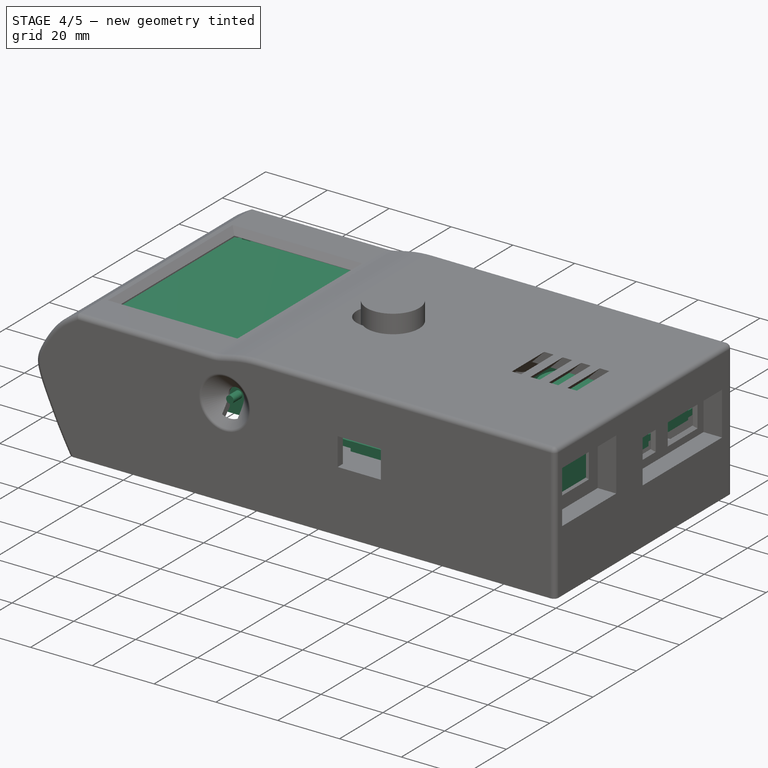
[diagram: stage 4 of 5 — iso view after this stage's code; geometry added in this stage tinted green]
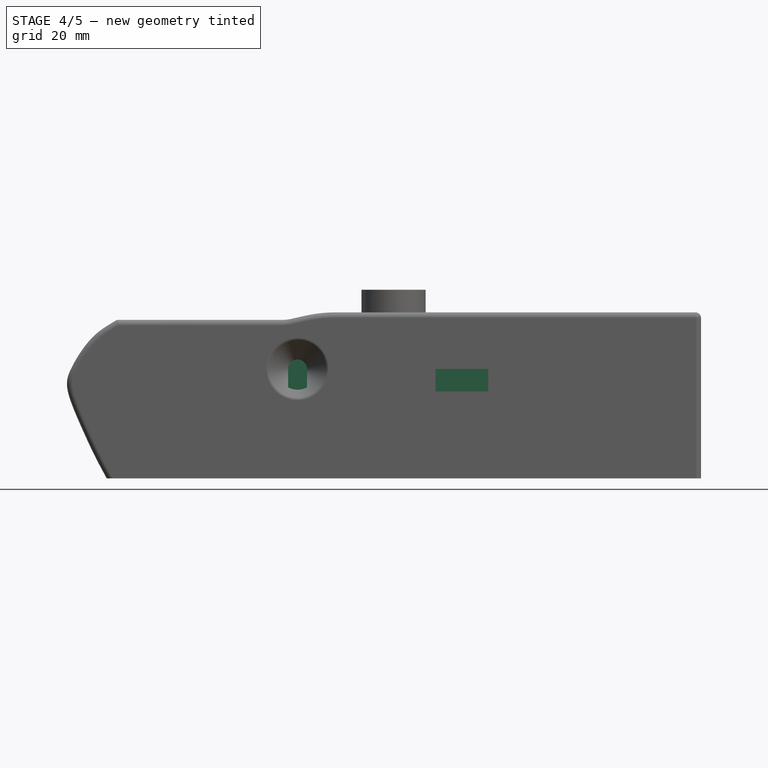
[diagram: stage 4 of 5 — front view after this stage's code; geometry added in this stage tinted green]
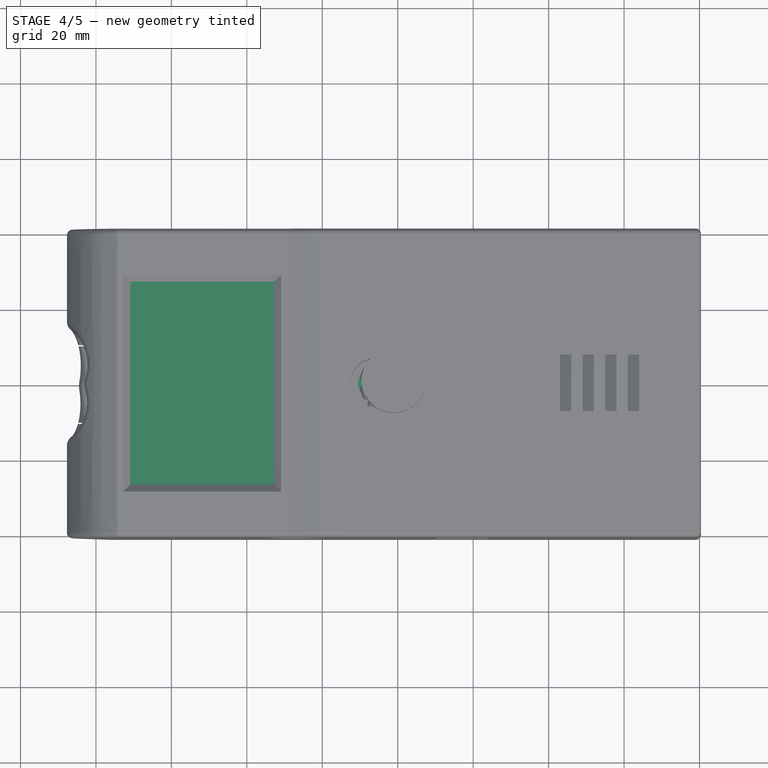
[diagram: stage 4 of 5 — top view after this stage's code; geometry added in this stage tinted green]
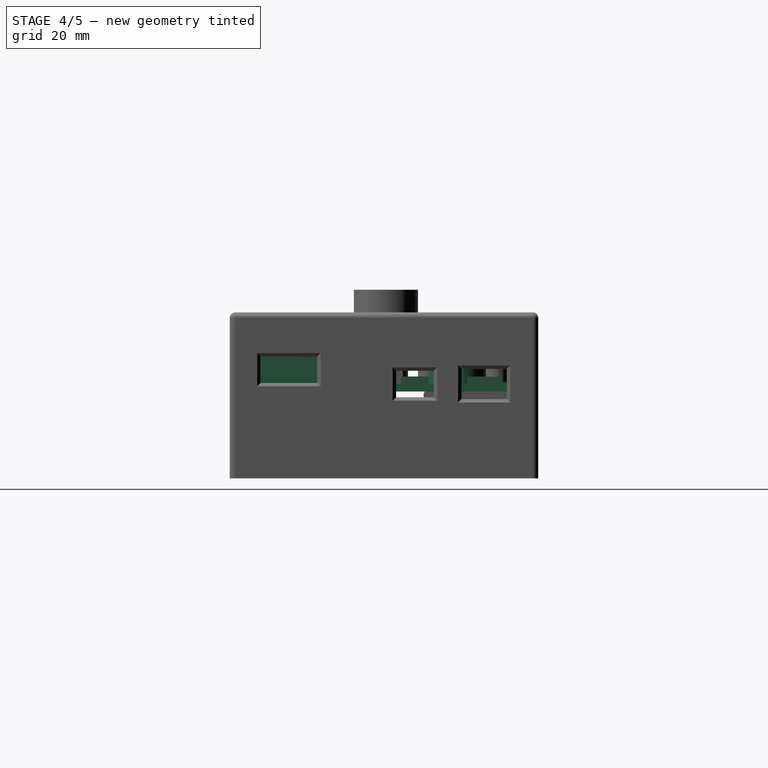
[diagram: stage 4 of 5 — right view after this stage's code; geometry added in this stage tinted green]
FEATURE [Sketcher::SketchObject] Sketch
  FullyConstrained = true
  MapMode = 5
  Support = -> [XY_Plane]
  sketch-geometry (4):
    g0: LineSegment StartX=-72.01 StartY=34.5 StartZ=0 EndX=72.01 EndY=34.5 EndZ=0
    g1: LineSegment StartX=72.01 StartY=34.5 StartZ=0 EndX=72.01 EndY=-34.5 EndZ=0
    g2: LineSegment StartX=72.01 StartY=-34.5 StartZ=0 EndX=-72.01 EndY=-34.5 EndZ=0
    g3: LineSegment StartX=-72.01 StartY=-34.5 StartZ=0 EndX=-72.01 EndY=34.5 EndZ=0
  constraints (11):
    c: Coincident(g0,g1)
    c: Coincident(g1,g2)
    c: Coincident(g2,g3)
    c: Coincident(g3,g0)
    c: Horizontal(g0)
    c: Horizontal(g2)
    c: Vertical(g1)
    c: Vertical(g3)
    c: DistanceX(g0,g0) = 144.02
    c: DistanceY(g3,g3) = 69
    c: Symmetric(g2,g0,g-1)
FEATURE [PartDesign::Pad] Pad
  Direction = (0,0,1)
  Length = 2
  Length2 = 10
  Profile = -> Sketch
  ReferenceAxis = -> Sketch [N_Axis]
  Type = 0
FEATURE [Sketcher::SketchObject] Sketch001
  ExternalGeometry = -> [Pad]
  FullyConstrained = true
  MapMode = 5
  Placement = pos=(0,0,2) rot=(0,0,1;0rad)
  Support = -> [Pad]
  sketch-geometry (8):
    g0: Circle CenterX=-69.41 CenterY=-31.7 CenterZ=0 NormalX=0 NormalY=0 NormalZ=1 AngleXU=0 Radius=1.5
    g1: Circle CenterX=-34.41 CenterY=-31.7 CenterZ=0 NormalX=0 NormalY=0 NormalZ=1 AngleXU=0 Radius=1.5
    g2: Circle CenterX=-69.41 CenterY=30.8 CenterZ=0 NormalX=0 NormalY=0 NormalZ=1 AngleXU=0 Radius=1.5
    g3: Circle CenterX=-34.41 CenterY=30.8 CenterZ=0 NormalX=0 NormalY=0 NormalZ=1 AngleXU=0 Radius=1.5
    g4: LineSegment StartX=-69.41 StartY=-31.7 StartZ=0 EndX=-34.41 EndY=-31.7 EndZ=0
    g5: LineSegment StartX=-69.41 StartY=30.8 StartZ=0 EndX=-34.41 EndY=30.8 EndZ=0
    g6: LineSegment StartX=-69.41 StartY=-31.7 StartZ=0 EndX=-69.41 EndY=30.8 EndZ=0
    g7: LineSegment StartX=-34.41 StartY=30.8 StartZ=0 EndX=-34.41 EndY=-31.7 EndZ=0
  constraints (21):
    c: DistanceX(g-3,g0) = 2.6
    c: DistanceY(g-3,g0) = 2.8
    c: Diameter(g0) = 3
    c: DistanceX(g0,g1) = 35
    c: DistanceY(g0,g2) = 62.5
    c: Equal(g0,g1)
    c: Equal(g1,g3)
    c: Equal(g3,g2)
    c: Coincident(g4,g0)
    c: Coincident(g4,g1)
    c: Horizontal(g4)
    c: Coincident(g5,g2)
    c: Coincident(g5,g3)
    c: Horizontal(g5)
    c: Coincident(g6,g0)
    c: Coincident(g6,g2)
    c: Vertical(g6)
    c: Coincident(g7,g3)
    c: Coincident(g7,g1)
    c: Vertical(g7)
    c: DistanceY(g2,g-4) = 3.7
FEATURE [PartDesign::Pocket] Pocket
  BaseFeature = -> Pad
  Direction = (0,0,-1)
  Length = 5
  Length2 = 5
  Profile = -> Sketch001
  ReferenceAxis = -> Sketch001 [N_Axis]
  Type = 0
FEATURE [Sketcher::SketchObject] Sketch002
  ExternalGeometry = -> [Pocket]
  FullyConstrained = true
  MapMode = 5
  Placement = pos=(0,0,2) rot=(0,0,1;0rad)
  Support = -> [Pocket]
  sketch-geometry (4):
    g0: LineSegment StartX=-64.01 StartY=-34.5 StartZ=0 EndX=-41.01 EndY=-34.5 EndZ=0
    g1: LineSegment StartX=-41.01 StartY=-34.5 StartZ=0 EndX=-41.01 EndY=-31.5 EndZ=0
    g2: LineSegment StartX=-41.01 StartY=-31.5 StartZ=0 EndX=-64.01 EndY=-31.5 EndZ=0
    g3: LineSegment StartX=-64.01 StartY=-31.5 StartZ=0 EndX=-64.01 EndY=-34.5 EndZ=0
  constraints (12):
    c: Coincident(g0,g1)
    c: Coincident(g1,g2)
    c: Coincident(g2,g3)
    c: Coincident(g3,g0)
    c: Horizontal(g0)
    c: Horizontal(g2)
    c: Vertical(g1)
    c: Vertical(g3)
    c: PointOnObject(g0,g-3)
    c: DistanceX(g-3,g0) = 8
    c: DistanceX(g2,g2) = 23
    c: DistanceY(g1,g1) = 3
FEATURE [PartDesign::Pad] Pad001
  BaseFeature = -> Pocket
  Direction = (0,0,1)
  Length = 11
  Length2 = 10
  Profile = -> Sketch002
  ReferenceAxis = -> Sketch002 [N_Axis]
  Type = 0
FEATURE [Sketcher::SketchObject] Sketch003
  ExternalGeometry = -> [Pad001]
  FullyConstrained = true
  MapMode = 5
  Placement = pos=(0,0,13) rot=(0,0,1;0rad)
  Support = -> [Pad001]
  sketch-geometry (4):
    g0: LineSegment StartX=-72.01 StartY=-34.5 StartZ=0 EndX=-32.01 EndY=-34.5 EndZ=0
    g1: LineSegment StartX=-32.01 StartY=-34.5 StartZ=0 EndX=-32.01 EndY=34.5 EndZ=0
    g2: LineSegment StartX=-32.01 StartY=34.5 StartZ=0 EndX=-72.01 EndY=34.5 EndZ=0
    g3: LineSegment StartX=-72.01 StartY=34.5 StartZ=0 EndX=-72.01 EndY=-34.5 EndZ=0
  constraints (11):
    c: Coincident(g0,g1)
    c: Coincident(g1,g2)
    c: Coincident(g2,g3)
    c: Coincident(g3,g0)
    c: Horizontal(g0)
    c: Horizontal(g2)
    c: Vertical(g1)
    c: Vertical(g3)
    c: Coincident(g0,g-5)
    c: PointOnObject(g1,g-4)
    c: DistanceX(g2,g2) = 40
FEATURE [PartDesign::Pad] Pad002
  BaseFeature = -> Pad001
  Direction = (0,0,1)
  Length = 2
  Length2 = 10
  Profile = -> Sketch003
  ReferenceAxis = -> Sketch003 [N_Axis]
  Type = 0
FEATURE [Sketcher::SketchObject] Sketch004
  ExternalGeometry = -> [Pad002]
  FullyConstrained = true
  MapMode = 5
  Placement = pos=(0,0,15) rot=(0,0,1;0rad)
  Support = -> [Pad002]
  sketch-geometry (4):
    g0: LineSegment StartX=-70.51 StartY=26.5 StartZ=0 EndX=-33.21 EndY=26.5 EndZ=0
    g1: LineSegment StartX=-33.21 StartY=26.5 StartZ=0 EndX=-33.21 EndY=-26.5 EndZ=0
    g2: LineSegment StartX=-33.21 StartY=-26.5 StartZ=0 EndX=-70.51 EndY=-26.5 EndZ=0
    g3: LineSegment StartX=-70.51 StartY=-26.5 StartZ=0 EndX=-70.51 EndY=26.5 EndZ=0
  constraints (12):
    c: Coincident(g0,g1)
    c: Coincident(g1,g2)
    c: Coincident(g2,g3)
    c: Coincident(g3,g0)
    c: Horizontal(g0)
    c: Horizontal(g2)
    c: Vertical(g1)
    c: Vertical(g3)
    c: DistanceX(g2,g2) = 37.3
    c: DistanceY(g1,g1) = 53
    c: DistanceX(g-3,g2) = 1.5
    c: DistanceY(g-3,g2) = 8
FEATURE [PartDesign::Pad] Pad003
  BaseFeature = -> Pad002
  Direction = (0,0,1)
  Length = 2
  Length2 = 10
  Profile = -> Sketch004
  ReferenceAxis = -> Sketch004 [N_Axis]
  Type = 0
FEATURE [Sketcher::SketchObject] Sketch005
  ExternalGeometry = -> [Pad003]
  FullyConstrained = true
  MapMode = 5
  Placement = pos=(0,0,15) rot=(0,0,1;0rad)
  Support = -> [Pad003]
  sketch-geometry (4):
    g0: Circle CenterX=-69.41 CenterY=30.8 CenterZ=0 NormalX=0 NormalY=0 NormalZ=1 AngleXU=0 Radius=1.5
    g1: Circle CenterX=-34.41 CenterY=30.8 CenterZ=0 NormalX=0 NormalY=0 NormalZ=1 AngleXU=0 Radius=1.5
    g2: Circle CenterX=-34.41 CenterY=-31.7 CenterZ=0 NormalX=0 NormalY=0 NormalZ=1 AngleXU=0 Radius=1.5
    g3: Circle CenterX=-69.41 CenterY=-31.7 CenterZ=0 NormalX=0 NormalY=0 NormalZ=1 AngleXU=0 Radius=1.5
  constraints (8):
    c: Coincident(g0,g-3)
    c: Equal(g0,g-3)
    c: Coincident(g1,g-4)
    c: Equal(g1,g-4)
    c: Coincident(g2,g-5)
    c: Equal(g2,g-5)
    c: Coincident(g3,g-6)
    c: Equal(g3,g-6)
FEATURE [PartDesign::Pocket] Pocket001
  BaseFeature = -> Pad003
  Direction = (0,0,-1)
  Length = 5
  Length2 = 5
  Profile = -> Sketch005
  ReferenceAxis = -> Sketch005 [N_Axis]
  Type = 0
FEATURE [Sketcher::SketchObject] Sketch006
  ExternalGeometry = -> [Pocket001]
  FullyConstrained = true
  MapMode = 5
  Placement = pos=(0,0,0) rot=(1,0,0;3.14159rad)
  Support = -> [Pocket001]
  sketch-geometry (1):
    g0: Circle CenterX=-52.01 CenterY=-13.75 CenterZ=0 NormalX=0 NormalY=0 NormalZ=1 AngleXU=0 Radius=7
  constraints (3):
    c: DistanceX(g-3,g0) = 20
    c: DistanceY(g-3,g0) = 20.75
    c: Diameter(g0) = 14
FEATURE [PartDesign::Pocket] Pocket002
  BaseFeature = -> Pocket001
  Direction = (0,0,1)
  Length = 5
  Length2 = 5
  Profile = -> Sketch006
  ReferenceAxis = -> Sketch006 [N_Axis]
  Type = 0
FEATURE [Sketcher::SketchObject] Sketch007
  ExternalGeometry = -> [Pocket002]
  FullyConstrained = true
  MapMode = 5
  Placement = pos=(0,0,2) rot=(0,0,1;0rad)
  Support = -> [Pocket002]
  sketch-geometry (2):
    g0: Circle CenterX=-59.01 CenterY=20.8 CenterZ=0 NormalX=0 NormalY=0 NormalZ=1 AngleXU=0 Radius=1
    g1: Circle CenterX=-44.01 CenterY=7.8 CenterZ=0 NormalX=0 NormalY=0 NormalZ=1 AngleXU=0 Radius=1
  constraints (6):
    c: DistanceX(g-3,g0) = 13
    c: DistanceY(g0,g-3) = 13.7
    c: DistanceX(g0,g1) = 15
    c: DistanceY(g1,g0) = 13
    c: Equal(g0,g1)
    c: Diameter(g0) = 2
FEATURE [PartDesign::Pocket] Pocket003
  BaseFeature = -> Pocket002
  Direction = (0,0,-1)
  Length = 5
  Length2 = 5
  Profile = -> Sketch007
  ReferenceAxis = -> Sketch007 [N_Axis]
  Type = 0
FEATURE [Sketcher::SketchObject] Sketch008
  ExternalGeometry = -> [Pocket003]
  FullyConstrained = true
  MapMode = 5
  Placement = pos=(0,0,0) rot=(1,0,0;3.14159rad)
  Support = -> [Pocket003]
  sketch-geometry (5):
    g0: LineSegment StartX=-63.76 StartY=22.75 StartZ=0 EndX=-40.26 EndY=22.75 EndZ=0
    g1: LineSegment StartX=-40.26 StartY=22.75 StartZ=0 EndX=-40.26 EndY=8.5 EndZ=0
    g2: LineSegment StartX=-40.26 StartY=8.5 StartZ=0 EndX=-63.76 EndY=8.5 EndZ=0
    g3: LineSegment StartX=-63.76 StartY=8.5 StartZ=0 EndX=-63.76 EndY=22.75 EndZ=0
    g4: Circle CenterX=-52.01 CenterY=4 CenterZ=0 NormalX=0 NormalY=0 NormalZ=1 AngleXU=0 Radius=2.5
  constraints (15):
    c: Coincident(g0,g1)
    c: Coincident(g1,g2)
    c: Coincident(g2,g3)
    c: Coincident(g3,g0)
    c: Horizontal(g0)
    c: Horizontal(g2)
    c: Vertical(g1)
    c: Vertical(g3)
    c: DistanceX(g-3,g0) = 8.25
    c: DistanceY(g0,g-3) = 11.75
    c: DistanceY(g3,g3) = 14.25
    c: DistanceX(g0,g0) = 23.5
    c: DistanceX(g-3,g4) = 20
    c: DistanceY(g4,g-3) = 30.5
    c: Diameter(g4) = 5
FEATURE [PartDesign::Pocket] Pocket004
  BaseFeature = -> Pocket003
  Direction = (0,0,1)
  Length = 5
  Length2 = 5
  Profile = -> Sketch008
  ReferenceAxis = -> Sketch008 [N_Axis]
  Type = 0
FEATURE [Sketcher::SketchObject] Sketch024
  ExternalGeometry = -> [Pocket004]
  FullyConstrained = true
  MapMode = 5
  Placement = pos=(0,0,2) rot=(0,0,1;0rad)
  Support = -> [Pocket004]
  sketch-geometry (7):
    g0: Circle CenterX=-28.99 CenterY=-13 CenterZ=0 NormalX=0 NormalY=0 NormalZ=1 AngleXU=0 Radius=1
    g1: Circle CenterX=-22.99 CenterY=6 CenterZ=0 NormalX=0 NormalY=0 NormalZ=1 AngleXU=0 Radius=1
    g2: Circle CenterX=32.51 CenterY=12 CenterZ=0 NormalX=0 NormalY=0 NormalZ=1 AngleXU=0 Radius=1
    g3: Circle CenterX=50.01 CenterY=30 CenterZ=0 NormalX=0 NormalY=0 NormalZ=1 AngleXU=0 Radius=1
    g4: Circle CenterX=48.01 CenterY=-22 CenterZ=0 NormalX=0 NormalY=0 NormalZ=1 AngleXU=0 Radius=1
    g5: Circle CenterX=68.01 CenterY=-11 CenterZ=0 NormalX=0 NormalY=0 NormalZ=1 AngleXU=0 Radius=1
    g6: Circle CenterX=69.01 CenterY=17 CenterZ=0 NormalX=0 NormalY=0 NormalZ=1 AngleXU=0 Radius=1
  constraints (23):
    c: Equal(g0,g1)
    c: Equal(g1,g2)
    c: Equal(g2,g3)
    c: Equal(g3,g4)
    c: Equal(g4,g5)
    c: Diameter(g1) = 2
    c: DistanceX(g0,g-3) = 101
    c: DistanceY(g-3,g0) = 21.5
    c: DistanceY(g0,g1) = 19
    c: DistanceX(g0,g1) = 6
    c: DistanceX(g0,g2) = 61.5
    c: DistanceY(g0,g2) = 25
    c: DistanceY(g4,g0) = 9
    c: DistanceX(g0,g4) = 77
    c: DistanceX(g4,g5) = 20
    c: DistanceY(g4,g5) = 11
    c: Equal(g6,g3)
    c: DistanceX(g5,g6) = 1
    c: DistanceY(g5,g6) = 28
    c: DistanceY(g6,g3) = 13
    c: DistanceX(g3,g6) = 19
    c: DistanceX(g3,g-3) = 22
    c: DistanceY(g3,g-3) = 4.5
FEATURE [PartDesign::Pocket] Pocket012
  BaseFeature = -> Pocket004
  Direction = (0,0,-1)
  Length = 5
  Length2 = 5
  Profile = -> Sketch024
  ReferenceAxis = -> Sketch024 [N_Axis]
  Type = 0
FEATURE [Sketcher::SketchObject] Sketch025
  ExternalGeometry = -> [Pocket012]
  FullyConstrained = true
  MapMode = 5
  Placement = pos=(0,0,2) rot=(0,0,1;0rad)
  Support = -> [Pocket012]
  sketch-geometry (8):
    g0: LineSegment StartX=65.91 StartY=31.2 StartZ=0 EndX=72.91 EndY=31.2 EndZ=0
    g1: LineSegment StartX=72.91 StartY=31.2 StartZ=0 EndX=72.91 EndY=22 EndZ=0
    g2: LineSegment StartX=72.91 StartY=22 StartZ=0 EndX=65.91 EndY=22 EndZ=0
    g3: LineSegment StartX=65.91 StartY=22 StartZ=0 EndX=65.91 EndY=31.2 EndZ=0
    g4: LineSegment StartX=67.505 StartY=11.875 StartZ=0 EndX=73.655 EndY=11.875 EndZ=0
    g5: LineSegment StartX=73.655 StartY=11.875 StartZ=0 EndX=73.655 EndY=4.525 EndZ=0
    g6: LineSegment StartX=73.655 StartY=4.525 StartZ=0 EndX=67.505 EndY=4.525 EndZ=0
    g7: LineSegment StartX=67.505 StartY=4.525 StartZ=0 EndX=67.505 EndY=11.875 EndZ=0
  constraints (24):
    c: Coincident(g0,g1)
    c: Coincident(g1,g2)
    c: Coincident(g2,g3)
    c: Coincident(g3,g0)
    c: Horizontal(g0)
    c: Horizontal(g2)
    c: Vertical(g1)
    c: Vertical(g3)
    c: Coincident(g4,g5)
    c: Coincident(g5,g6)
    c: Coincident(g6,g7)
    c: Coincident(g7,g4)
    c: Horizontal(g4)
    c: Horizontal(g6)
    c: Vertical(g5)
    c: Vertical(g7)
    c: DistanceX(g0,g0) = 7
    c: DistanceY(g1,g1) = 9.2
    c: DistanceX(g0,g-3) = 6.1
    c: DistanceY(g0,g-3) = 3.3
    c: DistanceY(g5,g5) = 7.35
    c: DistanceX(g4,g4) = 6.15
    c: DistanceX(g4,g-3) = 4.505
    c: DistanceY(g4,g-3) = 22.625
FEATURE [PartDesign::Pad] Pad012
  BaseFeature = -> Pocket012
  Direction = (0,0,1)
  Length = 4
  Length2 = 10
  Midplane = true
  Profile = -> Sketch025
  ReferenceAxis = -> Sketch025 [N_Axis]
  Type = 0
FEATURE [Sketcher::SketchObject] Sketch026
  ExternalGeometry = -> [Pad012]
  FullyConstrained = true
  MapMode = 5
  Placement = pos=(0,0,2) rot=(0,0,1;0rad)
  Support = -> [Pad012]
  sketch-geometry (4):
    g0: LineSegment StartX=60.143 StartY=-18.76 StartZ=0 EndX=74.143 EndY=-18.76 EndZ=0
    g1: LineSegment StartX=74.143 StartY=-18.76 StartZ=0 EndX=74.143 EndY=-31.76 EndZ=0
    g2: LineSegment StartX=74.143 StartY=-31.76 StartZ=0 EndX=60.143 EndY=-31.76 EndZ=0
    g3: LineSegment StartX=60.143 StartY=-31.76 StartZ=0 EndX=60.143 EndY=-18.76 EndZ=0
  constraints (12):
    c: Coincident(g0,g1)
    c: Coincident(g1,g2)
    c: Coincident(g2,g3)
    c: Coincident(g3,g0)
    c: Horizontal(g0)
    c: Horizontal(g2)
    c: Vertical(g1)
    c: Vertical(g3)
    c: DistanceX(g0,g0) = 14
    c: DistanceY(g1,g1) = 13
    c: DistanceX(g2,g-3) = 11.867
    c: DistanceY(g-3,g2) = 2.74
FEATURE [PartDesign::Pad] Pad013
  BaseFeature = -> Pad012
  Direction = (0,0,1)
  Length = 6.5
  Length2 = 10
  Profile = -> Sketch026
  ReferenceAxis = -> Sketch026 [N_Axis]
  Type = 0
FEATURE [Sketcher::SketchObject] Sketch027
  ExternalGeometry = -> [Pad013]
  FullyConstrained = true
  MapMode = 5
  Placement = pos=(74.143,0,0) rot=(0.57735,0.57735,0.57735;2.0944rad)
  Support = -> [Pad013]
  sketch-geometry (4):
    g0: LineSegment StartX=-31.76 StartY=2 StartZ=0 EndX=-18.76 EndY=2 EndZ=0
    g1: LineSegment StartX=-18.76 StartY=2 StartZ=0 EndX=-18.76 EndY=3 EndZ=0
    g2: LineSegment StartX=-18.76 StartY=3 StartZ=0 EndX=-31.76 EndY=3 EndZ=0
    g3: LineSegment StartX=-31.76 StartY=3 StartZ=0 EndX=-31.76 EndY=2 EndZ=0
  constraints (11):
    c: Coincident(g0,g1)
    c: Coincident(g1,g2)
    c: Coincident(g2,g3)
    c: Coincident(g3,g0)
    c: Horizontal(g0)
    c: Horizontal(g2)
    c: Vertical(g1)
    c: Vertical(g3)
    c: Coincident(g0,g-4)
    c: DistanceY(g1,g-3) = 5.5
    c: Equal(g-3,g2)
FEATURE [PartDesign::Pocket] Pocket013
  BaseFeature = -> Pad013
  Direction = (-1,0,0)
  Length = 10
  Length2 = 5
  Profile = -> Sketch027
  ReferenceAxis = -> Sketch027 [N_Axis]
  Type = 0
FEATURE [Sketcher::SketchObject] Sketch028
  ExternalGeometry = -> [Pocket013]
  FullyConstrained = true
  MapMode = 5
  Placement = pos=(74.143,0,0) rot=(0.57735,0.57735,0.57735;2.0944rad)
  Support = -> [Pocket013]
  sketch-geometry (5):
    g0: GeomPoint X=-25.26 Y=5.75 Z=0
    g1: LineSegment StartX=-32.76 StartY=9.25 StartZ=0 EndX=-17.76 EndY=9.25 EndZ=0
    g2: LineSegment StartX=-17.76 StartY=9.25 StartZ=0 EndX=-17.76 EndY=2.25 EndZ=0
    g3: LineSegment StartX=-17.76 StartY=2.25 StartZ=0 EndX=-32.76 EndY=2.25 EndZ=0
    g4: LineSegment StartX=-32.76 StartY=2.25 StartZ=0 EndX=-32.76 EndY=9.25 EndZ=0
  constraints (12):
    c: Symmetric(g-3,g-4,g0)
    c: Coincident(g1,g2)
    c: Coincident(g2,g3)
    c: Coincident(g3,g4)
    c: Coincident(g4,g1)
    c: Horizontal(g1)
    c: Horizontal(g3)
    c: Vertical(g2)
    c: Vertical(g4)
    c: DistanceX(g1,g1) = 15
    c: DistanceY(g2,g2) = 7
    c: Symmetric(g1,g3,g0)
FEATURE [PartDesign::Pad] Pad014
  BaseFeature = -> Pocket013
  Direction = (1,0,0)
  Length = 1
  Length2 = 10
  Profile = -> Sketch028
  ReferenceAxis = -> Sketch028 [N_Axis]
  Reversed = true
  Type = 0
FEATURE [PartDesign::Body] Body002  label="usb-solder-helper"
  Group = -> [Sketch029,Pad015,Sketch030,Pad016,Sketch036,Pad021,Sketch037,Pocket015,Fillet002,Chamfer,Chamfer001,Chamfer002]
  Origin = -> Origin002
  Placement = pos=(71,-34.5,0) rot=(0,0,1;0rad)
  Tip = -> Chamfer002
FEATURE [Sketcher::SketchObject] Sketch038
  ExternalGeometry = -> [Pad014]
  FullyConstrained = true
  MapMode = 5
  Placement = pos=(0,0,2) rot=(0,0,1;0rad)
  Support = -> [Pad014]
  sketch-geometry (5):
    g0: LineSegment StartX=-12.11 StartY=5.9 StartZ=0 EndX=0.09 EndY=5.9 EndZ=0
    g1: LineSegment StartX=0.09 StartY=5.9 StartZ=0 EndX=0.09 EndY=-5.9 EndZ=0
    g2: LineSegment StartX=0.09 StartY=-5.9 StartZ=0 EndX=-12.11 EndY=-5.9 EndZ=0
    g3: LineSegment StartX=-12.11 StartY=-5.9 StartZ=0 EndX=-12.11 EndY=5.9 EndZ=0
    g4: GeomPoint X=-6.01 Y=1.3e-15 Z=0
  constraints (13):
    c: Coincident(g0,g1)
    c: Coincident(g1,g2)
    c: Coincident(g2,g3)
    c: Coincident(g3,g0)
    c: Horizontal(g0)
    c: Horizontal(g2)
    c: Vertical(g1)
    c: Vertical(g3)
    c: DistanceX(g0,g0) = 12.2
    c: DistanceY(g3,g3) = 11.8
    c: Symmetric(g2,g0,g4)
    c: DistanceX(g4,g-3) = 78.02
    c: DistanceY(g-3,g4) = 34.5
FEATURE [PartDesign::Pad] Pad022
  BaseFeature = -> Pad014
  Direction = (0,0,1)
  Length = 7
  Length2 = 10
  Profile = -> Sketch038
  ReferenceAxis = -> Sketch038 [N_Axis]
  Type = 0
FEATURE [Sketcher::SketchObject] Sketch039
  ExternalGeometry = -> [Pad022]
  FullyConstrained = true
  MapMode = 5
  Placement = pos=(0,0,9) rot=(0,0,1;0rad)
  Support = -> [Pad022]
  sketch-geometry (1):
    g0: Circle CenterX=-6.01 CenterY=0 CenterZ=0 NormalX=0 NormalY=0 NormalZ=1 AngleXU=0 Radius=3.5
  constraints (2):
    c: Symmetric(g-4,g-3,g0)
    c: Diameter(g0) = 7
FEATURE [PartDesign::Pad] Pad023
  BaseFeature = -> Pad022
  Direction = (0,0,1)
  Length = 7
  Length2 = 10
  Profile = -> Sketch039
  ReferenceAxis = -> Sketch039 [N_Axis]
  Type = 0
FEATURE [Sketcher::SketchObject] Sketch040
  ExternalGeometry = -> [Pad023]
  FullyConstrained = true
  MapMode = 5
  Placement = pos=(0,0,16) rot=(0,0,1;0rad)
  Support = -> [Pad023]
  sketch-geometry (1):
    g0: Circle CenterX=-6.01 CenterY=0 CenterZ=0 NormalX=0 NormalY=0 NormalZ=1 AngleXU=0 Radius=3
  constraints (2):
    c: Coincident(g0,g-3)
    c: Diameter(g0) = 6
FEATURE [PartDesign::Pad] Pad024
  BaseFeature = -> Pad023
  Direction = (0,0,1)
  Length = 8
  Length2 = 10
  Profile = -> Sketch040
  ReferenceAxis = -> Sketch040 [N_Axis]
  Type = 0
FEATURE [Sketcher::SketchObject] Sketch041
  ExternalGeometry = -> [Pad024]
  FullyConstrained = false
  MapMode = 5
  Placement = pos=(0,0,24) rot=(0,0,1;0rad)
  Support = -> [Pad024]
  sketch-geometry (5):
    g0: LineSegment StartX=-4.51 StartY=5 StartZ=0 EndX=5.49 EndY=5 EndZ=0
    g1: LineSegment StartX=5.49 StartY=5 StartZ=0 EndX=5.49 EndY=-5 EndZ=0
    g2: LineSegment StartX=5.49 StartY=-5 StartZ=0 EndX=-4.51 EndY=-5 EndZ=0
    g3: LineSegment StartX=-4.51 StartY=-5 StartZ=0 EndX=-4.51 EndY=5 EndZ=0
    g4: LineSegment StartX=-9.01 StartY=0 StartZ=0 EndX=-4.51 EndY=0 EndZ=0
  constraints (14):
    c: Coincident(g0,g1)
    c: Coincident(g1,g2)
    c: Coincident(g2,g3)
    c: Coincident(g3,g0)
    c: Horizontal(g0)
    c: Horizontal(g2)
    c: Vertical(g3)
    c: Equal(g2,g1)
    c: DistanceY(g1,g1) = 10
    c: Symmetric(g1,g0,g-1)
    c: PointOnObject(g4,g-3)
    c: PointOnObject(g4,g3)
    c: Horizontal(g4)
    c: DistanceX(g4,g4) = 4.5
FEATURE [PartDesign::Pocket] Pocket016
  BaseFeature = -> Pad024
  Direction = (0,0,-1)
  Length = 7
  Length2 = 5
  Profile = -> Sketch041
  ReferenceAxis = -> Sketch041 [N_Axis]
  Type = 0
FEATURE [Sketcher::SketchObject] Sketch042
  ExternalGeometry = -> [Pocket016]
  FullyConstrained = true
  MapMode = 5
  Placement = pos=(0,0,2) rot=(0,0,1;0rad)
  Support = -> [Pocket016]
  sketch-geometry (1):
    g0: Circle CenterX=40.89 CenterY=19.6 CenterZ=0 NormalX=0 NormalY=0 NormalZ=1 AngleXU=0 Radius=7.5
  constraints (3):
    c: DistanceX(g0,g-3) = 31.12
    c: DistanceY(g-3,g0) = 54.1
    c: Diameter(g0) = 15
FEATURE [PartDesign::Pad] Pad025
  BaseFeature = -> Pocket016
  Direction = (0,0,1)
  Length = 5
  Length2 = 10
  Profile = -> Sketch042
  ReferenceAxis = -> Sketch042 [N_Axis]
  Type = 0
FEATURE [Sketcher::SketchObject] Sketch043
  ExternalGeometry = -> [Pad025]
  FullyConstrained = true
  MapMode = 5
  Placement = pos=(0,0,2) rot=(0,0,1;0rad)
  Support = -> [Pad025]
  sketch-geometry (4):
    g0: LineSegment StartX=-28.23 StartY=34.5 StartZ=0 EndX=28.97 EndY=34.5 EndZ=0
    g1: LineSegment StartX=28.97 StartY=34.5 StartZ=0 EndX=28.97 EndY=16 EndZ=0
    g2: LineSegment StartX=28.97 StartY=16 StartZ=0 EndX=-28.23 EndY=16 EndZ=0
    g3: LineSegment StartX=-28.23 StartY=16 StartZ=0 EndX=-28.23 EndY=34.5 EndZ=0
  constraints (12):
    c: Coincident(g0,g1)
    c: Coincident(g1,g2)
    c: Coincident(g2,g3)
    c: Coincident(g3,g0)
    c: Horizontal(g0)
    c: Horizontal(g2)
    c: Vertical(g1)
    c: Vertical(g3)
    c: PointOnObject(g0,g-3)
    c: DistanceX(g0,g0) = 57.2
    c: DistanceY(g1,g1) = 18.5
    c: DistanceX(g2,g-4) = 100.24
FEATURE [PartDesign::Pad] Pad026
  BaseFeature = -> Pad025
  Direction = (0,0,1)
  Length = 17
  Length2 = 10
  Profile = -> Sketch043
  ReferenceAxis = -> Sketch043 [N_Axis]
  Type = 0
FEATURE [Sketcher::SketchObject] Sketch044
  ExternalGeometry = -> [Pad026]
  FullyConstrained = true
  MapMode = 5
  Placement = pos=(0,0,0) rot=(1,0,0;3.14159rad)
  Support = -> [Pad026]
  sketch-geometry (4):
    g0: LineSegment StartX=10.89 StartY=36.15 StartZ=0 EndX=22.89 EndY=36.15 EndZ=0
    g1: LineSegment StartX=22.89 StartY=36.15 StartZ=0 EndX=22.89 EndY=27.96 EndZ=0
    g2: LineSegment StartX=22.89 StartY=27.96 StartZ=0 EndX=10.89 EndY=27.96 EndZ=0
    g3: LineSegment StartX=10.89 StartY=36.15 StartZ=0 EndX=10.89 EndY=27.96 EndZ=0
  constraints (12):
    c: Coincident(g0,g1)
    c: Coincident(g1,g2)
    c: Horizontal(g0)
    c: Horizontal(g2)
    c: Vertical(g1)
    c: DistanceX(g1,g-3) = 49.12
    c: DistanceX(g2,g2) = 12
    c: DistanceY(g1,g1) = 8.19
    c: Coincident(g3,g0)
    c: Coincident(g3,g2)
    c: Vertical(g3)
    c: DistanceY(g1,g-3) = 6.54
FEATURE [PartDesign::Pad] Pad027
  BaseFeature = -> Pad026
  Direction = (0,0,-1)
  Length = 3
  Length2 = 10
  Profile = -> Sketch044
  ReferenceAxis = -> Sketch044 [N_Axis]
  Reversed = true
  Type = 0
FEATURE [Sketcher::SketchObject] Sketch045
  ExternalGeometry = -> [Pad027]
  FullyConstrained = true
  MapMode = 5
  Placement = pos=(0,0,2) rot=(0,0,1;0rad)
  Support = -> [Pad027]
  sketch-geometry (4):
    g0: LineSegment StartX=-31.41 StartY=-34.5 StartZ=0 EndX=-21.71 EndY=-34.5 EndZ=0
    g1: LineSegment StartX=-21.71 StartY=-34.5 StartZ=0 EndX=-21.71 EndY=-27.35 EndZ=0
    g2: LineSegment StartX=-21.71 StartY=-27.35 StartZ=0 EndX=-31.41 EndY=-27.35 EndZ=0
    g3: LineSegment StartX=-31.41 StartY=-27.35 StartZ=0 EndX=-31.41 EndY=-34.5 EndZ=0
  constraints (12):
    c: Coincident(g0,g1)
    c: Coincident(g1,g2)
    c: Coincident(g2,g3)
    c: Coincident(g3,g0)
    c: Horizontal(g0)
    c: Horizontal(g2)
    c: Vertical(g1)
    c: Vertical(g3)
    c: PointOnObject(g0,g-3)
    c: DistanceX(g1,g-4) = 93.72
    c: DistanceY(g-4,g1) = 7.15
    c: DistanceX(g2,g2) = 9.7
FEATURE [PartDesign::Pad] Pad028
  BaseFeature = -> Pad027
  Direction = (0,0,1)
  Length = 7
  Length2 = 10
  Profile = -> Sketch045
  ReferenceAxis = -> Sketch045 [N_Axis]
  Type = 0
FEATURE [Sketcher::SketchObject] Sketch046
  ExternalGeometry = -> [Pad028]
  FullyConstrained = true
  MapMode = 5
  Placement = pos=(0,-34.5,0) rot=(1,0,0;1.5708rad)
  Support = -> [Pad028]
  sketch-geometry (2):
    g0: Circle CenterX=-26.56 CenterY=6 CenterZ=0 NormalX=0 NormalY=0 NormalZ=1 AngleXU=0 Radius=1.2
    g1: LineSegment StartX=-26.56 StartY=6 StartZ=0 EndX=-26.56 EndY=2 EndZ=0
  constraints (5):
    c: DistanceY(g-3,g0) = 4
    c: Coincident(g1,g0)
    c: Vertical(g1)
    c: Symmetric(g-3,g-3,g1)
    c: Diameter(g0) = 2.4
FEATURE [PartDesign::Pad] Pad029
  BaseFeature = -> Pad028
  Direction = (0,-1,2e-16)
  Length = 4
  Length2 = 10
  Profile = -> Sketch046
  ReferenceAxis = -> Sketch046 [N_Axis]
  Type = 0
FEATURE [Sketcher::SketchObject] Sketch047
  ExternalGeometry = -> [Pad029]
  FullyConstrained = true
  MapMode = 5
  Placement = pos=(0,0,2) rot=(0,0,1;0rad)
  Support = -> [Pad029]
  sketch-geometry (4):
    g0: LineSegment StartX=-19.035 StartY=-34.5 StartZ=0 EndX=-14.185 EndY=-34.5 EndZ=0
    g1: LineSegment StartX=-14.185 StartY=-34.5 StartZ=0 EndX=-14.185 EndY=-30.05 EndZ=0
    g2: LineSegment StartX=-14.185 StartY=-30.05 StartZ=0 EndX=-19.035 EndY=-30.05 EndZ=0
    g3: LineSegment StartX=-19.035 StartY=-30.05 StartZ=0 EndX=-19.035 EndY=-34.5 EndZ=0
  constraints (12):
    c: Coincident(g0,g1)
    c: Coincident(g1,g2)
    c: Coincident(g2,g3)
    c: Coincident(g3,g0)
    c: Horizontal(g0)
    c: Horizontal(g2)
    c: Vertical(g1)
    c: Vertical(g3)
    c: PointOnObject(g0,g-3)
    c: DistanceX(g1,g-4) = 86.195
    c: DistanceY(g1,g1) = 4.45
    c: DistanceX(g2,g2) = 4.85
FEATURE [PartDesign::Pad] Pad030
  BaseFeature = -> Pad029
  Direction = (0,0,1)
  Length = 6
  Length2 = 10
  Profile = -> Sketch047
  ReferenceAxis = -> Sketch047 [N_Axis]
  Type = 0
FEATURE [Sketcher::SketchObject] Sketch048
  ExternalGeometry = -> [Pad030]
  FullyConstrained = true
  MapMode = 5
  Placement = pos=(0,-34.5,0) rot=(1,0,0;1.5708rad)
  Support = -> [Pad030]
  sketch-geometry (3):
    g0: LineSegment StartX=-16.61 StartY=8 StartZ=0 EndX=-16.61 EndY=6 EndZ=0
    g1: LineSegment StartX=-26.56 StartY=6 StartZ=0 EndX=-16.61 EndY=6 EndZ=0
    g2: Circle CenterX=-16.61 CenterY=6 CenterZ=0 NormalX=0 NormalY=0 NormalZ=1 AngleXU=0 Radius=1.5
  constraints (7):
    c: Coincident(g1,g-3)
    c: Coincident(g1,g0)
    c: Horizontal(g1)
    c: Vertical(g0)
    c: Symmetric(g-4,g-4,g0)
    c: Coincident(g2,g0)
    c: Diameter(g2) = 3
FEATURE [PartDesign::Pad] Pad031
  BaseFeature = -> Pad030
  Direction = (0,-1,2e-16)
  Length = 4
  Length2 = 10
  Profile = -> Sketch048
  ReferenceAxis = -> Sketch048 [N_Axis]
  Type = 0
FEATURE [Sketcher::SketchObject] Sketch103
  FullyConstrained = true
  MapMode = 5
  Placement = pos=(0,0,0) rot=(1,0,0;3.14159rad)
  Support = -> [Pocket040]
  sketch-geometry (1):
    g0: Circle CenterX=0 CenterY=-33.5 CenterZ=0 NormalX=0 NormalY=0 NormalZ=1 AngleXU=0 Radius=1.5
  constraints (3):
    c: PointOnObject(g0,g-2)
    c: Diameter(g0) = 3
    c: DistanceY(g0,g-1) = 33.5
FEATURE [PartDesign::Pocket] Pocket041
  BaseFeature = -> Pocket040
  Direction = (0,0,1)
  Length = 5
  Length2 = 5
  Profile = -> Sketch103
  ReferenceAxis = -> Sketch103 [N_Axis]
  Type = 0
FEATURE [PartDesign::Chamfer] Chamfer014
  Angle = 45
  Base = -> Pocket041 [Edge17]
  BaseFeature = -> Pocket041
  ChamferType = 0
  FlipDirection = false
  Size = 1
  Size2 = 1
  SupportTransform = false
  UseAllEdges = false
FEATURE [Sketcher::SketchObject] Sketch104
  ExternalGeometry = -> [Chamfer014]
  FullyConstrained = true
  MapMode = 5
  Placement = pos=(0,0,2) rot=(0,0,1;0rad)
  Support = -> [Chamfer014]
  sketch-geometry (8):
    g0: LineSegment StartX=-9.8 StartY=-26.6 StartZ=0 EndX=-5.3 EndY=-26.6 EndZ=0
    g1: LineSegment StartX=-5.3 StartY=-26.6 StartZ=0 EndX=-5.3 EndY=-32.6 EndZ=0
    g2: LineSegment StartX=-5.3 StartY=-32.6 StartZ=0 EndX=-9.8 EndY=-32.6 EndZ=0
    g3: LineSegment StartX=-9.8 StartY=-32.6 StartZ=0 EndX=-9.8 EndY=-26.6 EndZ=0
    g4: LineSegment StartX=5.3 StartY=-26.6 StartZ=0 EndX=9.8 EndY=-26.6 EndZ=0
    g5: LineSegment StartX=9.8 StartY=-26.6 StartZ=0 EndX=9.8 EndY=-32.6 EndZ=0
    g6: LineSegment StartX=9.8 StartY=-32.6 StartZ=0 EndX=5.3 EndY=-32.6 EndZ=0
    g7: LineSegment StartX=5.3 StartY=-32.6 StartZ=0 EndX=5.3 EndY=-26.6 EndZ=0
  constraints (23):
    c: Coincident(g0,g1)
    c: Coincident(g1,g2)
    c: Coincident(g2,g3)
    c: Coincident(g3,g0)
    c: Horizontal(g0)
    c: Horizontal(g2)
    c: Vertical(g1)
    c: Vertical(g3)
    c: Coincident(g4,g5)
    c: Coincident(g5,g6)
    c: Coincident(g6,g7)
    c: Coincident(g7,g4)
    c: Horizontal(g4)
    c: Horizontal(g6)
    c: Vertical(g5)
    c: Vertical(g7)
    c: Equal(g0,g4)
    c: Equal(g1,g7)
    c: DistanceY(g-3,g0) = 3
    c: DistanceY(g3,g3) = 6
    c: DistanceX(g0,g0) = 4.5
    c: DistanceX(g-3,g0) = 5
    c: Symmetric(g0,g4,g-2)
FEATURE [PartDesign::Pad] Pad055
  BaseFeature = -> Chamfer014
  Direction = (0,0,1)
  Length = 2.5
  Length2 = 10
  Profile = -> Sketch104
  ReferenceAxis = -> Sketch104 [N_Axis]
  Type = 0
FEATURE [PartDesign::Pocket] Pocket042
  BaseFeature = -> Pad055
  Direction = (0,0,1)
  Length = 0.2
  Length2 = 5
  Profile = -> Pad055 [Face15,Face14]
  Type = 0
FEATURE [PartDesign::Chamfer] Chamfer015
  Angle = 45
  Base = -> Pocket042 [Edge71,Edge70]
  BaseFeature = -> Pocket042
  ChamferType = 0
  FlipDirection = false
  Size = 2
  Size2 = 1
  SupportTransform = false
  UseAllEdges = false
FEATURE [PartDesign::Chamfer] Chamfer016
  Angle = 45
  Base = -> Chamfer015 [Edge26,Edge20]
  BaseFeature = -> Chamfer015
  ChamferType = 0
  FlipDirection = false
  Size = 2
  Size2 = 1
  SupportTransform = false
  UseAllEdges = false
FEATURE [Sketcher::SketchObject] Sketch116
  ExternalGeometry = -> [Chamfer016]
  FullyConstrained = true
  MapMode = 5
  Placement = pos=(0,0,2) rot=(0,0,1;0rad)
  Support = -> [Chamfer016]
  sketch-geometry (4):
    g0: LineSegment StartX=-11.8 StartY=26.6 StartZ=0 EndX=11.8 EndY=26.6 EndZ=0
    g1: LineSegment StartX=11.8 StartY=26.6 StartZ=0 EndX=11.8 EndY=-22.6 EndZ=0
    g2: LineSegment StartX=11.8 StartY=-22.6 StartZ=0 EndX=-11.8 EndY=-22.6 EndZ=0
    g3: LineSegment StartX=-11.8 StartY=-22.6 StartZ=0 EndX=-11.8 EndY=26.6 EndZ=0
  constraints (12):
    c: Coincident(g0,g1)
    c: Coincident(g1,g2)
    c: Coincident(g2,g3)
    c: Coincident(g3,g0)
    c: Horizontal(g0)
    c: Horizontal(g2)
    c: Vertical(g1)
    c: Vertical(g3)
    c: DistanceX(g0,g-3) = 3
    c: DistanceX(g-4,g2) = 3
    c: DistanceY(g0,g-3) = 3
    c: DistanceY(g-4,g2) = 7
FEATURE [PartDesign::Pocket] Pocket048
  BaseFeature = -> Chamfer016
  Direction = (0,0,-1)
  Length = 0.5
  Length2 = 5
  Profile = -> Sketch116
  ReferenceAxis = -> Sketch116 [N_Axis]
  Type = 0
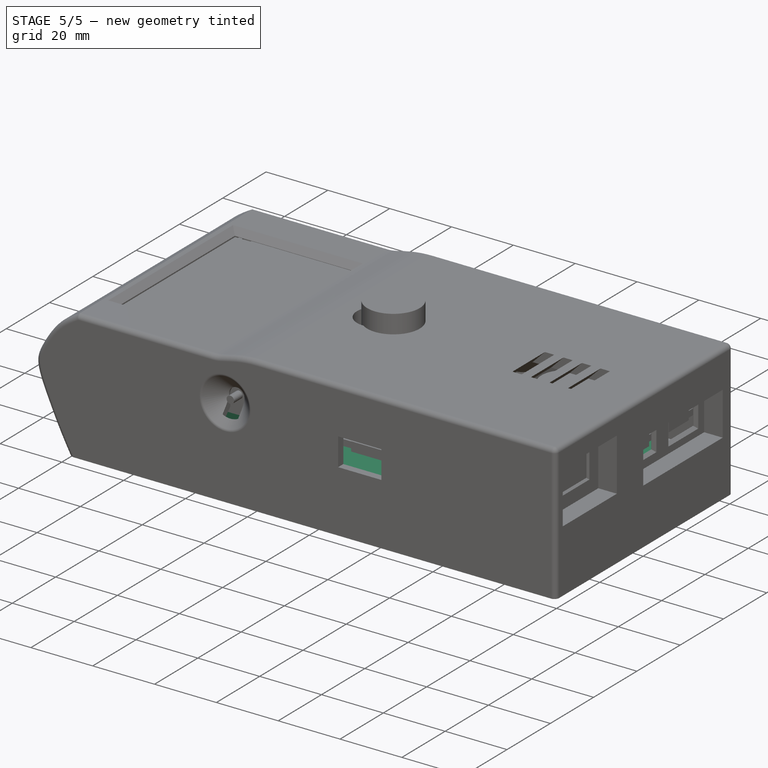
[diagram: stage 5 of 5 — iso view after this stage's code; geometry added in this stage tinted green]
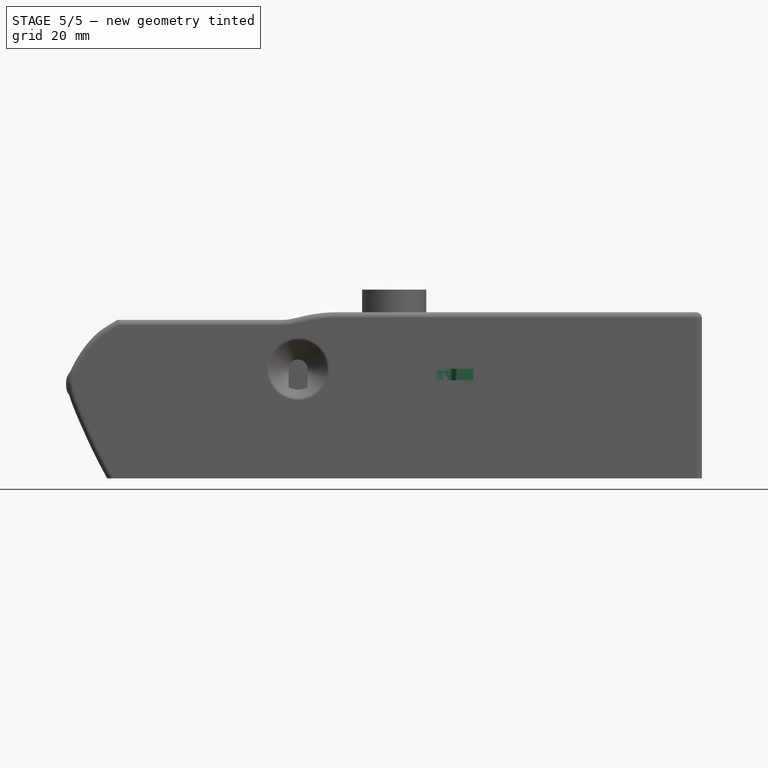
[diagram: stage 5 of 5 — front view after this stage's code; geometry added in this stage tinted green]
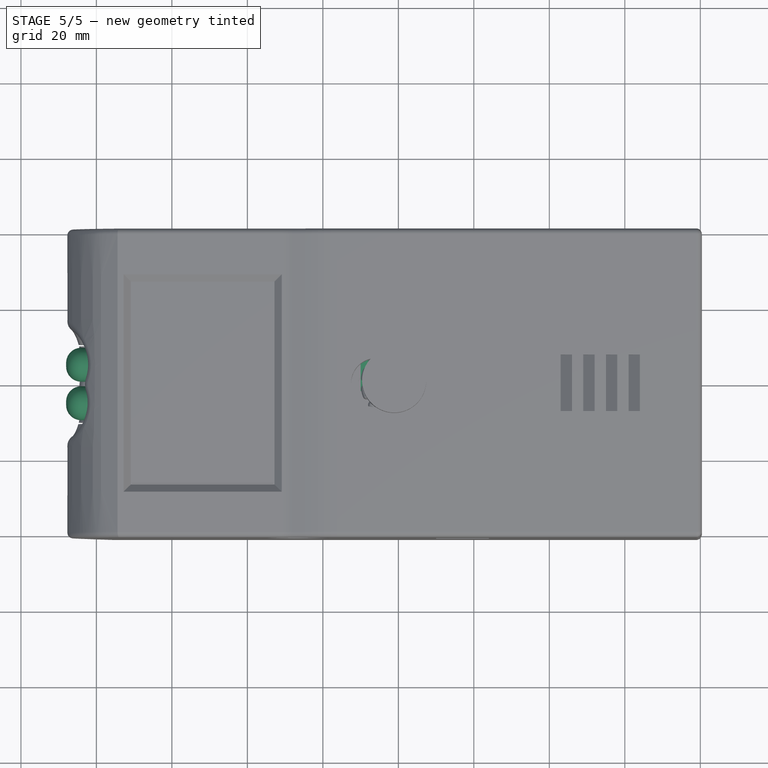
[diagram: stage 5 of 5 — top view after this stage's code; geometry added in this stage tinted green]
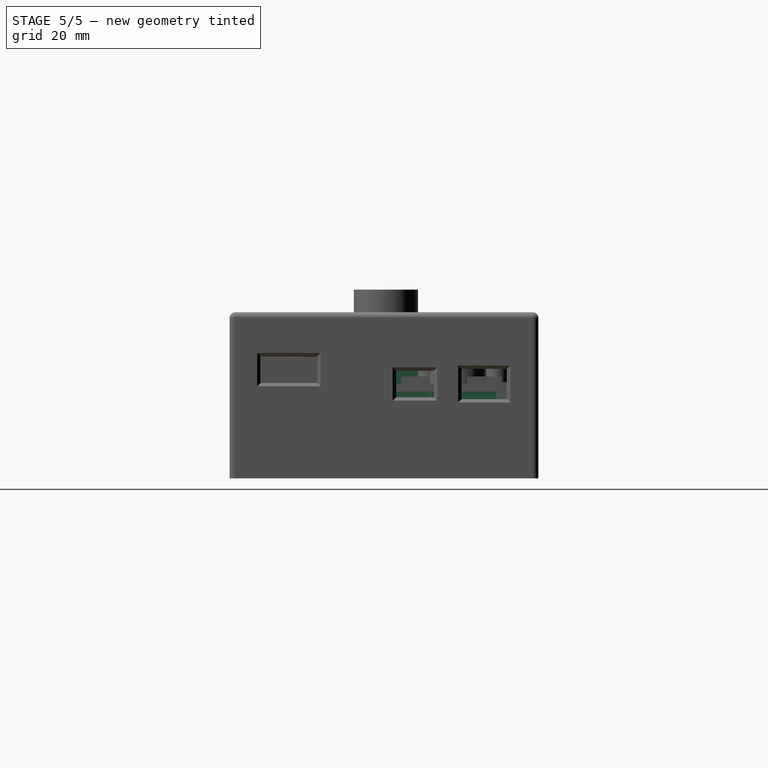
[diagram: stage 5 of 5 — right view after this stage's code; geometry added in this stage tinted green]
FEATURE [Sketcher::SketchObject] Sketch009
  FullyConstrained = true
  MapMode = 5
  Support = -> [XY_Plane001]
  sketch-geometry (17):
    g0: Circle CenterX=-17.5 CenterY=-32.71 CenterZ=0 NormalX=0 NormalY=0 NormalZ=1 AngleXU=0 Radius=1.75
    g1: Circle CenterX=17.5 CenterY=-32.71 CenterZ=0 NormalX=0 NormalY=0 NormalZ=1 AngleXU=0 Radius=1.75
    g2: LineSegment StartX=-17.5 StartY=-32.71 StartZ=0 EndX=17.5 EndY=-32.71 EndZ=0
    g3: Circle CenterX=-17.5 CenterY=29.8 CenterZ=0 NormalX=0 NormalY=0 NormalZ=1 AngleXU=0 Radius=1.75
    g4: Circle CenterX=17.5 CenterY=29.8 CenterZ=0 NormalX=0 NormalY=0 NormalZ=1 AngleXU=0 Radius=1.75
    g5: LineSegment StartX=-17.5 StartY=-32.71 StartZ=0 EndX=-17.5 EndY=29.8 EndZ=0
    g6: LineSegment StartX=17.5 StartY=-32.71 StartZ=0 EndX=17.5 EndY=29.8 EndZ=0
    g7: LineSegment StartX=17.5 StartY=29.8 StartZ=0 EndX=-17.5 EndY=29.8 EndZ=0
    g8: LineSegment StartX=-20.1 StartY=33.5 StartZ=0 EndX=19.9 EndY=33.5 EndZ=0
    g9: LineSegment StartX=19.9 StartY=33.5 StartZ=0 EndX=19.9 EndY=-35.5 EndZ=0
    g10: LineSegment StartX=19.9 StartY=-35.5 StartZ=0 EndX=-20.1 EndY=-35.5 EndZ=0
    g11: LineSegment StartX=-20.1 StartY=-35.5 StartZ=0 EndX=-20.1 EndY=33.5 EndZ=0
    g12: LineSegment StartX=-15.75 StartY=27.8 StartZ=0 EndX=15.55 EndY=27.8 EndZ=0
    g13: LineSegment StartX=15.55 StartY=27.8 StartZ=0 EndX=15.55 EndY=-29.8 EndZ=0
    g14: LineSegment StartX=15.55 StartY=-29.8 StartZ=0 EndX=-15.75 EndY=-29.8 EndZ=0
    g15: LineSegment StartX=-15.75 StartY=-29.8 StartZ=0 EndX=-15.75 EndY=27.8 EndZ=0
    g16: GeomPoint X=-0.1 Y=-1 Z=0
  constraints (44):
    c: DistanceX(g0,g-1) = 17.5
    c: DistanceY(g0,g-1) = 32.71
    c: DistanceX(g-1,g1) = 17.5
    c: Coincident(g2,g0)
    c: Coincident(g2,g1)
    c: Horizontal(g2)
    c: Equal(g1,g0)
    c: Diameter(g0) = 3.5
    c: DistanceY(g-1,g3) = 29.8
    c: Coincident(g5,g0)
    c: Coincident(g5,g3)
    c: Vertical(g5)
    c: Coincident(g6,g1)
    c: Coincident(g6,g4)
    c: Vertical(g6)
    c: Coincident(g7,g4)
    c: Coincident(g7,g3)
    c: Horizontal(g7)
    c: Equal(g3,g4)
    c: Equal(g1,g4)
    c: Coincident(g8,g9)
    c: Coincident(g9,g10)
    c: Coincident(g10,g11)
    c: Coincident(g11,g8)
    c: Horizontal(g8)
    c: Horizontal(g10)
    c: Vertical(g9)
    c: Vertical(g11)
    c: DistanceY(g9,g9) = 69
    c: DistanceX(g10,g10) = 40
    c: DistanceY(g10,g-1) = 35.5
    c: DistanceX(g10,g-1) = 20.1
    c: Coincident(g12,g13)
    c: Coincident(g13,g14)
    c: Coincident(g14,g15)
    c: Coincident(g15,g12)
    c: Horizontal(g12)
    c: Horizontal(g14)
    c: Vertical(g13)
    c: Vertical(g15)
    c: DistanceX(g12,g12) = 31.3
    c: DistanceY(g13,g13) = 57.6
    c: Symmetric(g9,g8,g16)
    c: Symmetric(g12,g13,g16)
FEATURE [PartDesign::Pad] Pad004
  Direction = (0,0,1)
  Length = 11
  Length2 = 10
  Profile = -> Sketch009
  ReferenceAxis = -> Sketch009 [N_Axis]
  Type = 0
FEATURE [Sketcher::SketchObject] Sketch010
  FullyConstrained = false
  MapMode = 5
  Placement = pos=(0,-35.5,0) rot=(1,0,0;1.5708rad)
  Support = -> [Pad004]
  sketch-geometry (4):
    g0: LineSegment StartX=-14.331 StartY=17.3825 StartZ=0 EndX=13.669 EndY=17.3825 EndZ=0
    g1: LineSegment StartX=13.669 StartY=17.3825 StartZ=0 EndX=13.669 EndY=-5.61751 EndZ=0
    g2: LineSegment StartX=13.669 StartY=-5.61751 StartZ=0 EndX=-14.331 EndY=-5.61751 EndZ=0
    g3: LineSegment StartX=-14.331 StartY=-5.61751 StartZ=0 EndX=-14.331 EndY=17.3825 EndZ=0
  constraints (10):
    c: Coincident(g0,g1)
    c: Coincident(g1,g2)
    c: Coincident(g2,g3)
    c: Coincident(g3,g0)
    c: Horizontal(g0)
    c: Horizontal(g2)
    c: Vertical(g1)
    c: Vertical(g3)
    c: DistanceY(g1,g1) = 23
    c: DistanceX(g0,g0) = 28
FEATURE [PartDesign::Pocket] Pocket005
  BaseFeature = -> Pad004
  Direction = (0,1,-2e-16)
  Length = 8
  Length2 = 5
  Profile = -> Sketch010
  ReferenceAxis = -> Sketch010 [N_Axis]
  Type = 0
FEATURE [Sketcher::SketchObject] Sketch011
  FullyConstrained = true
  MapMode = 5
  Placement = pos=(0,33.5,0) rot=(0,0.707107,0.707107;3.14159rad)
  Support = -> [Pocket005]
  sketch-geometry (4):
    g0: LineSegment StartX=-14 StartY=0 StartZ=0 EndX=14 EndY=0 EndZ=0
    g1: LineSegment StartX=-14 StartY=0 StartZ=0 EndX=-14 EndY=5 EndZ=0
    g2: LineSegment StartX=14 StartY=0 StartZ=0 EndX=14 EndY=5 EndZ=0
    g3: LineSegment StartX=-14 StartY=5 StartZ=0 EndX=14 EndY=5 EndZ=0
  constraints (11):
    c: PointOnObject(g0,g-1)
    c: Coincident(g1,g0)
    c: Coincident(g2,g0)
    c: Vertical(g2)
    c: Coincident(g3,g1)
    c: Coincident(g3,g2)
    c: Horizontal(g3)
    c: Vertical(g1)
    c: DistanceX(g3,g3) = 28
    c: DistanceY(g1,g1) = 5
    c: Symmetric(g0,g0,g-2)
FEATURE [PartDesign::Pocket] Pocket006
  BaseFeature = -> Pocket005
  Direction = (0,-1,2e-16)
  Length = 8
  Length2 = 5
  Profile = -> Sketch011
  ReferenceAxis = -> Sketch011 [N_Axis]
  Type = 0
FEATURE [Sketcher::SketchObject] Sketch012
  FullyConstrained = true
  MapMode = 5
  Placement = pos=(-20.1,0,0) rot=(0.57735,-0.57735,-0.57735;2.0944rad)
  Support = -> [Pocket006]
  sketch-geometry (4):
    g0: LineSegment StartX=-12.5 StartY=0 StartZ=0 EndX=12.5 EndY=0 EndZ=0
    g1: LineSegment StartX=12.5 StartY=0 StartZ=0 EndX=12.5 EndY=3 EndZ=0
    g2: LineSegment StartX=12.5 StartY=3 StartZ=0 EndX=-12.5 EndY=3 EndZ=0
    g3: LineSegment StartX=-12.5 StartY=3 StartZ=0 EndX=-12.5 EndY=0 EndZ=0
  constraints (11):
    c: Coincident(g0,g1)
    c: Coincident(g1,g2)
    c: Coincident(g2,g3)
    c: Coincident(g3,g0)
    c: Horizontal(g2)
    c: Vertical(g1)
    c: Vertical(g3)
    c: PointOnObject(g0,g-1)
    c: DistanceY(g1,g1) = 3
    c: DistanceX(g2,g2) = 25
    c: Symmetric(g0,g0,g-2)
FEATURE [PartDesign::Pocket] Pocket007
  BaseFeature = -> Pocket006
  Direction = (1,0,0)
  Length = 7
  Length2 = 5
  Profile = -> Sketch012
  ReferenceAxis = -> Sketch012 [N_Axis]
  Type = 0
FEATURE [Sketcher::SketchObject] Sketch013
  ExternalGeometry = -> [Pocket007]
  FullyConstrained = true
  MapMode = 5
  Placement = pos=(-20.1,0,0) rot=(0.57735,-0.57735,-0.57735;2.0944rad)
  Support = -> [Pocket007]
  sketch-geometry (4):
    g0: LineSegment StartX=-26.5 StartY=11 StartZ=0 EndX=11.5 EndY=11 EndZ=0
    g1: LineSegment StartX=11.5 StartY=11 StartZ=0 EndX=11.5 EndY=5.5 EndZ=0
    g2: LineSegment StartX=11.5 StartY=5.5 StartZ=0 EndX=-26.5 EndY=5.5 EndZ=0
    g3: LineSegment StartX=-26.5 StartY=5.5 StartZ=0 EndX=-26.5 EndY=11 EndZ=0
  constraints (12):
    c: Coincident(g0,g1)
    c: Coincident(g1,g2)
    c: Coincident(g2,g3)
    c: Coincident(g3,g0)
    c: Horizontal(g0)
    c: Horizontal(g2)
    c: Vertical(g1)
    c: Vertical(g3)
    c: PointOnObject(g0,g-3)
    c: DistanceX(g-3,g0) = 7
    c: DistanceX(g0,g0) = 38
    c: DistanceY(g1,g1) = 5.5
FEATURE [PartDesign::Pocket] Pocket008
  BaseFeature = -> Pocket007
  Direction = (1,0,0)
  Length = 5
  Length2 = 5
  Profile = -> Sketch013
  ReferenceAxis = -> Sketch013 [N_Axis]
  Type = 0
FEATURE [Sketcher::SketchObject] Sketch014
  ExternalGeometry = -> [Pocket008]
  FullyConstrained = true
  MapMode = 5
  Support = -> [XY_Plane001]
  sketch-geometry (6):
    g0: LineSegment StartX=15.55 StartY=13.75 StartZ=0 EndX=-15.75 EndY=13.75 EndZ=0
    g1: LineSegment StartX=-15.75 StartY=13.75 StartZ=0 EndX=-15.75 EndY=11.75 EndZ=0
    g2: LineSegment StartX=-15.75 StartY=11.75 StartZ=0 EndX=15.55 EndY=11.75 EndZ=0
    g3: LineSegment StartX=15.55 StartY=11.75 StartZ=0 EndX=15.55 EndY=13.75 EndZ=0
    g4: Circle CenterX=-0.1 CenterY=12.75 CenterZ=0 NormalX=0 NormalY=0 NormalZ=1 AngleXU=0 Radius=7
    g5: LineSegment StartX=-0.1 StartY=13.75 StartZ=0 EndX=-0.1 EndY=11.75 EndZ=0
  constraints (18):
    c: Coincident(g0,g1)
    c: Coincident(g1,g2)
    c: Coincident(g2,g3)
    c: Coincident(g3,g0)
    c: Horizontal(g0)
    c: Horizontal(g2)
    c: Vertical(g1)
    c: Vertical(g3)
    c: PointOnObject(g0,g-3)
    c: PointOnObject(g0,g-4)
    c: DistanceY(g1,g1) = 2
    c: DistanceY(g-1,g4) = 12.75
    c: DistanceX(g4,g-1) = 0.1
    c: Diameter(g4) = 14
    c: PointOnObject(g5,g0)
    c: PointOnObject(g5,g2)
    c: Vertical(g5)
    c: Symmetric(g5,g5,g4)
FEATURE [PartDesign::Pad] Pad005
  BaseFeature = -> Pocket008
  Direction = (0,0,1)
  Length = 11
  Length2 = 10
  Profile = -> Sketch014
  ReferenceAxis = -> Sketch014 [N_Axis]
  Type = 0
FEATURE [Sketcher::SketchObject] Sketch015
  ExternalGeometry = -> [Pad005]
  FullyConstrained = true
  MapMode = 5
  Placement = pos=(-20.1,0,0) rot=(0.57735,-0.57735,-0.57735;2.0944rad)
  Support = -> [Pad005]
  sketch-geometry (4):
    g0: LineSegment StartX=-12.5 StartY=3 StartZ=0 EndX=0 EndY=3 EndZ=0
    g1: LineSegment StartX=0 StartY=3 StartZ=0 EndX=0 EndY=0 EndZ=0
    g2: LineSegment StartX=0 StartY=0 StartZ=0 EndX=-12.5 EndY=0 EndZ=0
    g3: LineSegment StartX=-12.5 StartY=0 StartZ=0 EndX=-12.5 EndY=3 EndZ=0
  constraints (10):
    c: Coincident(g0,g1)
    c: Coincident(g1,g2)
    c: Coincident(g2,g3)
    c: Coincident(g3,g0)
    c: Horizontal(g0)
    c: Horizontal(g2)
    c: Vertical(g1)
    c: Vertical(g3)
    c: Coincident(g0,g-3)
    c: Coincident(g1,g-1)
FEATURE [PartDesign::Pocket] Pocket009
  BaseFeature = -> Pad005
  Direction = (1,0,0)
  Length = 5
  Length2 = 5
  Profile = -> Sketch015
  ReferenceAxis = -> Sketch015 [N_Axis]
  Type = 0
FEATURE [Sketcher::SketchObject] Sketch016
  ExternalGeometry = -> [Pocket009]
  FullyConstrained = true
  MapMode = 5
  Placement = pos=(-20.1,0,0) rot=(0.57735,-0.57735,-0.57735;2.0944rad)
  Support = -> [Pocket009]
  sketch-geometry (4):
    g0: LineSegment StartX=11.5 StartY=5.5 StartZ=0 EndX=-26.5 EndY=5.5 EndZ=0
    g1: LineSegment StartX=-26.5 StartY=5.5 StartZ=0 EndX=-26.5 EndY=11 EndZ=0
    g2: LineSegment StartX=-26.5 StartY=11 StartZ=0 EndX=11.5 EndY=11 EndZ=0
    g3: LineSegment StartX=11.5 StartY=11 StartZ=0 EndX=11.5 EndY=5.5 EndZ=0
  constraints (10):
    c: Coincident(g0,g1)
    c: Coincident(g1,g2)
    c: Coincident(g2,g3)
    c: Coincident(g3,g0)
    c: Horizontal(g0)
    c: Horizontal(g2)
    c: Vertical(g1)
    c: Vertical(g3)
    c: Coincident(g0,g-3)
    c: Coincident(g1,g-4)
FEATURE [PartDesign::Pocket] Pocket010
  BaseFeature = -> Pocket009
  Direction = (1,0,0)
  Length = 23.5
  Length2 = 5
  Profile = -> Sketch016
  ReferenceAxis = -> Sketch016 [N_Axis]
  Type = 0
FEATURE [Sketcher::SketchObject] Sketch017
  ExternalGeometry = -> [Pocket010]
  FullyConstrained = true
  MapMode = 5
  Placement = pos=(-20.1,0,0) rot=(0.57735,-0.57735,-0.57735;2.0944rad)
  Support = -> [Pocket010]
  sketch-geometry (8):
    g0: LineSegment StartX=11.5 StartY=11 StartZ=0 EndX=11.5 EndY=5.5 EndZ=0
    g1: LineSegment StartX=11.5 StartY=5.5 StartZ=0 EndX=-26.5 EndY=5.5 EndZ=0
    g2: LineSegment StartX=-26.5 StartY=5.5 StartZ=0 EndX=-26.5 EndY=11 EndZ=0
    g3: LineSegment StartX=-26.5 StartY=11 StartZ=0 EndX=-25.3 EndY=11 EndZ=0
    g4: LineSegment StartX=-25.3 StartY=11 StartZ=0 EndX=-25.3 EndY=6.7 EndZ=0
    g5: LineSegment StartX=-25.3 StartY=6.7 StartZ=0 EndX=10.3 EndY=6.7 EndZ=0
    g6: LineSegment StartX=10.3 StartY=6.7 StartZ=0 EndX=10.3 EndY=11 EndZ=0
    g7: LineSegment StartX=10.3 StartY=11 StartZ=0 EndX=11.5 EndY=11 EndZ=0
  constraints (22):
    c: Coincident(g0,g1)
    c: Coincident(g1,g2)
    c: Horizontal(g1)
    c: Vertical(g0)
    c: Vertical(g2)
    c: Coincident(g0,g-3)
    c: Coincident(g2,g-4)
    c: Equal(g2,g0)
    c: Coincident(g3,g2)
    c: Horizontal(g3)
    c: Coincident(g4,g3)
    c: Vertical(g4)
    c: Coincident(g5,g4)
    c: Horizontal(g5)
    c: Coincident(g6,g5)
    c: Vertical(g6)
    c: Coincident(g7,g6)
    c: Coincident(g7,g0)
    c: Equal(g3,g7)
    c: DistanceX(g3,g3) = 1.2
    c: DistanceY(g1,g4) = 1.2
    c: Horizontal(g7)
FEATURE [PartDesign::Pad] Pad006
  BaseFeature = -> Pocket010
  Direction = (-1,0,0)
  Length = 23.5
  Length2 = 10
  Profile = -> Sketch017
  ReferenceAxis = -> Sketch017 [N_Axis]
  Reversed = true
  Type = 0
FEATURE [Sketcher::SketchObject] Sketch018
  ExternalGeometry = -> [Pad006]
  FullyConstrained = true
  MapMode = 5
  Placement = pos=(0,0,6.7) rot=(0,0,1;0rad)
  Support = -> [Pad006]
  sketch-geometry (4):
    g0: LineSegment StartX=3.4 StartY=26.5 StartZ=0 EndX=2.2 EndY=26.5 EndZ=0
    g1: LineSegment StartX=2.2 StartY=26.5 StartZ=0 EndX=2.2 EndY=-11.5 EndZ=0
    g2: LineSegment StartX=2.2 StartY=-11.5 StartZ=0 EndX=3.4 EndY=-11.5 EndZ=0
    g3: LineSegment StartX=3.4 StartY=-11.5 StartZ=0 EndX=3.4 EndY=26.5 EndZ=0
  constraints (11):
    c: Coincident(g0,g1)
    c: Coincident(g1,g2)
    c: Coincident(g2,g3)
    c: Coincident(g3,g0)
    c: Horizontal(g0)
    c: Horizontal(g2)
    c: Vertical(g1)
    c: Vertical(g3)
    c: Coincident(g0,g-3)
    c: DistanceX(g2,g2) = 1.2
    c: PointOnObject(g-5,g2)
FEATURE [PartDesign::Pad] Pad007
  BaseFeature = -> Pad006
  Direction = (0,0,1)
  Length = 4.3
  Length2 = 10
  Profile = -> Sketch018
  ReferenceAxis = -> Sketch018 [N_Axis]
  Type = 0
FEATURE [Sketcher::SketchObject] Sketch019
  ExternalGeometry = -> [Pad007]
  FullyConstrained = true
  MapMode = 5
  Placement = pos=(0,0,5.5) rot=(1,0,0;3.14159rad)
  Support = -> [Pad007]
  sketch-geometry (4):
    g0: LineSegment StartX=3.4 StartY=-0.5 StartZ=0 EndX=15.55 EndY=-0.5 EndZ=0
    g1: LineSegment StartX=15.55 StartY=-0.5 StartZ=0 EndX=15.55 EndY=-26.5 EndZ=0
    g2: LineSegment StartX=15.55 StartY=-26.5 StartZ=0 EndX=3.4 EndY=-26.5 EndZ=0
    g3: LineSegment StartX=3.4 StartY=-26.5 StartZ=0 EndX=3.4 EndY=-0.5 EndZ=0
  constraints (11):
    c: Coincident(g0,g1)
    c: Coincident(g1,g2)
    c: Coincident(g2,g3)
    c: Coincident(g3,g0)
    c: Horizontal(g0)
    c: Horizontal(g2)
    c: Vertical(g1)
    c: Vertical(g3)
    c: DistanceY(g1,g1) = 26
    c: Coincident(g2,g-4)
    c: PointOnObject(g0,g-5)
FEATURE [PartDesign::Pad] Pad008
  BaseFeature = -> Pad007
  Direction = (0,0,-1)
  Length = 1.2
  Length2 = 10
  Profile = -> Sketch019
  ReferenceAxis = -> Sketch019 [N_Axis]
  Reversed = true
  Type = 0
FEATURE [Sketcher::SketchObject] Sketch029
  FullyConstrained = true
  MapMode = 5
  Placement = pos=(0,0,0) rot=(1,0,0;1.5708rad)
  Support = -> [XZ_Plane002]
  sketch-geometry (4):
    g0: LineSegment StartX=-1 StartY=11 StartZ=0 EndX=2 EndY=11 EndZ=0
    g1: LineSegment StartX=2 StartY=11 StartZ=0 EndX=2 EndY=-2 EndZ=0
    g2: LineSegment StartX=2 StartY=-2 StartZ=0 EndX=-1 EndY=-2 EndZ=0
    g3: LineSegment StartX=-1 StartY=-2 StartZ=0 EndX=-1 EndY=11 EndZ=0
  constraints (12):
    c: Coincident(g0,g1)
    c: Coincident(g1,g2)
    c: Coincident(g2,g3)
    c: Coincident(g3,g0)
    c: Horizontal(g0)
    c: Horizontal(g2)
    c: Vertical(g1)
    c: Vertical(g3)
    c: DistanceX(g0,g0) = 3
    c: DistanceY(g1,g1) = 13
    c: DistanceY(g2,g-1) = 2
    c: DistanceX(g2,g-1) = 1
FEATURE [PartDesign::Pad] Pad015
  Direction = (0,-1,2e-16)
  Length = 2
  Length2 = 10
  Placement = pos=(0,0,0) rot=(1,0,0;1.5708rad)
  Profile = -> Sketch029
  ReferenceAxis = -> Sketch029 [N_Axis]
  Type = 0
FEATURE [Sketcher::SketchObject] Sketch030
  ExternalGeometry = -> [Pad015]
  FullyConstrained = true
  MapMode = 5
  Placement = pos=(0,-2,4e-16) rot=(1,0,0;1.5708rad)
  Support = -> [Pad015]
  sketch-geometry (12):
    g0: LineSegment StartX=-3 StartY=-2 StartZ=0 EndX=2 EndY=-2 EndZ=0
    g1: LineSegment StartX=2 StartY=-2 StartZ=0 EndX=2 EndY=0 EndZ=0
    g2: LineSegment StartX=2 StartY=0 StartZ=0 EndX=-3 EndY=0 EndZ=0
    g3: LineSegment StartX=-3 StartY=0 StartZ=0 EndX=-3 EndY=-2 EndZ=0
    g4: LineSegment StartX=-1 StartY=2.1 StartZ=0 EndX=2 EndY=2.1 EndZ=0
    g5: LineSegment StartX=2 StartY=2.1 StartZ=0 EndX=2 EndY=2.9 EndZ=0
    g6: LineSegment StartX=2 StartY=2.9 StartZ=0 EndX=-1 EndY=2.9 EndZ=0
    g7: LineSegment StartX=-1 StartY=2.9 StartZ=0 EndX=-1 EndY=2.1 EndZ=0
    g8: LineSegment StartX=-10 StartY=11 StartZ=0 EndX=2 EndY=11 EndZ=0
    g9: LineSegment StartX=2 StartY=11 StartZ=0 EndX=2 EndY=8.6 EndZ=0
    g10: LineSegment StartX=2 StartY=8.6 StartZ=0 EndX=-10 EndY=8.6 EndZ=0
    g11: LineSegment StartX=-10 StartY=8.6 StartZ=0 EndX=-10 EndY=11 EndZ=0
  constraints (35):
    c: Coincident(g0,g1)
    c: Coincident(g1,g2)
    c: Coincident(g2,g3)
    c: Coincident(g3,g0)
    c: Horizontal(g0)
    c: Horizontal(g2)
    c: Vertical(g1)
    c: Vertical(g3)
    c: PointOnObject(g1,g-1)
    c: Coincident(g4,g5)
    c: Coincident(g5,g6)
    c: Coincident(g6,g7)
    c: Coincident(g7,g4)
    c: Horizontal(g4)
    c: Horizontal(g6)
    c: Vertical(g5)
    c: Vertical(g7)
    c: PointOnObject(g4,g-4)
    c: PointOnObject(g5,g-5)
    c: DistanceY(g2,g4) = 2.1
    c: DistanceY(g7,g7) = 0.8
    c: Coincident(g8,g9)
    c: Coincident(g9,g10)
    c: Coincident(g10,g11)
    c: Coincident(g11,g8)
    c: Horizontal(g8)
    c: Horizontal(g10)
    c: Vertical(g9)
    c: Vertical(g11)
    c: PointOnObject(g9,g-5)
    c: DistanceY(g11,g11) = 2.4
    c: PointOnObject(g-4,g8)
    c: DistanceX(g8,g8) = 12
    c: Coincident(g0,g-5)
    c: DistanceX(g0,g0) = 5
FEATURE [PartDesign::Pad] Pad016
  BaseFeature = -> Pad015
  Direction = (0,-1,2e-16)
  Length = 20
  Length2 = 10
  Placement = pos=(0,0,0) rot=(1,0,0;1.5708rad)
  Profile = -> Sketch030
  ReferenceAxis = -> Sketch030 [N_Axis]
  Reversed = true
  Type = 0
FEATURE [Sketcher::SketchObject] Sketch032
  ExternalGeometry = -> [Pad008]
  FullyConstrained = false
  MapMode = 5
  Placement = pos=(0,0,0) rot=(1,0,0;3.14159rad)
  Support = -> [Pad008]
  sketch-geometry (8):
    g0: LineSegment StartX=15.55 StartY=29.8 StartZ=0 EndX=17.9 EndY=29.8 EndZ=0
    g1: LineSegment StartX=17.9 StartY=29.8 StartZ=0 EndX=17.9 EndY=22.8 EndZ=0
    g2: LineSegment StartX=17.9 StartY=22.8 StartZ=0 EndX=15.55 EndY=22.8 EndZ=0
    g3: LineSegment StartX=15.55 StartY=22.8 StartZ=0 EndX=15.55 EndY=29.8 EndZ=0
    g4: ArcOfCircle CenterX=17.5 CenterY=32.71 CenterZ=0 NormalX=0 NormalY=0 NormalZ=1 AngleXU=0 Radius=3.50294 StartAngle=1.84441 EndAngle=4.12201
    g5: LineSegment StartX=15.55 StartY=29.8 StartZ=0 EndX=10.189 EndY=29.8 EndZ=0
    g6: LineSegment StartX=10.189 StartY=29.8 StartZ=0 EndX=10.189 EndY=36.0826 EndZ=0
    g7: LineSegment StartX=10.189 StartY=36.0826 StartZ=0 EndX=16.5535 EndY=36.0826 EndZ=0
  constraints (20):
    c: Coincident(g0,g1)
    c: Coincident(g1,g2)
    c: Coincident(g2,g3)
    c: Coincident(g3,g0)
    c: Horizontal(g0)
    c: Horizontal(g2)
    c: Vertical(g1)
    c: Vertical(g3)
    c: Coincident(g0,g-3)
    c: DistanceX(g0,g-4) = 2
    c: DistanceY(g1,g1) = 7
    c: Coincident(g4,g-5)
    c: Coincident(g4,g0)
    c: Coincident(g5,g0)
    c: Horizontal(g5)
    c: Coincident(g6,g5)
    c: Vertical(g6)
    c: Coincident(g7,g6)
    c: Coincident(g7,g4)
    c: Horizontal(g7)
FEATURE [PartDesign::Pocket] Pocket014
  BaseFeature = -> Pad008
  Direction = (0,0,1)
  Length = 13
  Length2 = 5
  Profile = -> Sketch032
  ReferenceAxis = -> Sketch032 [N_Axis]
  Type = 0
FEATURE [Sketcher::SketchObject] Sketch033
  ExternalGeometry = -> [Pocket014]
  FullyConstrained = true
  MapMode = 5
  Placement = pos=(0,0,5.5) rot=(1,0,0;3.14159rad)
  Support = -> [Pocket014]
  sketch-geometry (4):
    g0: LineSegment StartX=-15.75 StartY=-27.8 StartZ=0 EndX=15.55 EndY=-27.8 EndZ=0
    g1: LineSegment StartX=15.55 StartY=-27.8 StartZ=0 EndX=15.55 EndY=-22.8 EndZ=0
    g2: LineSegment StartX=15.55 StartY=-22.8 StartZ=0 EndX=-15.75 EndY=-22.8 EndZ=0
    g3: LineSegment StartX=-15.75 StartY=-22.8 StartZ=0 EndX=-15.75 EndY=-27.8 EndZ=0
  constraints (11):
    c: Coincident(g0,g1)
    c: Coincident(g1,g2)
    c: Coincident(g2,g3)
    c: Coincident(g3,g0)
    c: Horizontal(g0)
    c: Horizontal(g2)
    c: Vertical(g1)
    c: Vertical(g3)
    c: Coincident(g0,g-3)
    c: PointOnObject(g1,g-4)
    c: DistanceY(g1,g1) = 5
FEATURE [PartDesign::Pad] Pad018
  BaseFeature = -> Pocket014
  Direction = (0,0,-1)
  Length = 1.2
  Length2 = 10
  Profile = -> Sketch033
  ReferenceAxis = -> Sketch033 [N_Axis]
  Reversed = true
  Type = 0
FEATURE [Sketcher::SketchObject] Sketch034
  FullyConstrained = true
  MapMode = 5
  Placement = pos=(0,0,5.5) rot=(1,0,0;3.14159rad)
  Support = -> [Pad018]
  sketch-geometry (2):
    g0: Circle CenterX=-0.15 CenterY=-12.83 CenterZ=0 NormalX=0 NormalY=0 NormalZ=1 AngleXU=0 Radius=11
    g1: Circle CenterX=-0.15 CenterY=-12.83 CenterZ=0 NormalX=0 NormalY=0 NormalZ=1 AngleXU=0 Radius=12
  constraints (5):
    c: DistanceX(g0,g-1) = 0.15
    c: Diameter(g0) = 22
    c: DistanceY(g0,g-1) = 12.83
    c: Coincident(g1,g0)
    c: Diameter(g1) = 24
FEATURE [PartDesign::Pad] Pad019
  BaseFeature = -> Pad018
  Direction = (0,0,-1)
  Length = 5.5
  Length2 = 10
  Profile = -> Sketch034
  ReferenceAxis = -> Sketch034 [N_Axis]
  Type = 0
FEATURE [Sketcher::SketchObject] Sketch035
  ExternalGeometry = -> [Pad019]
  FullyConstrained = true
  MapMode = 5
  Placement = pos=(0,0,0) rot=(1,0,0;3.14159rad)
  Support = -> [Pad019]
  sketch-geometry (4):
    g0: ArcOfCircle CenterX=-0.15 CenterY=-12.83 CenterZ=0 NormalX=0 NormalY=0 NormalZ=1 AngleXU=0 Radius=6 StartAngle=2.96061 EndAngle=3.29553
    g1: ArcOfCircle CenterX=-0.15 CenterY=-12.83 CenterZ=0 NormalX=0 NormalY=0 NormalZ=1 AngleXU=0 Radius=6 StartAngle=6.12924 EndAngle=6.46417
    g2: LineSegment StartX=-6.052 StartY=-11.75 StartZ=0 EndX=5.752 EndY=-11.75 EndZ=0
    g3: LineSegment StartX=-6.07905 StartY=-13.75 StartZ=0 EndX=5.77905 EndY=-13.75 EndZ=0
  constraints (12):
    c: Coincident(g0,g-5)
    c: PointOnObject(g0,g-4)
    c: PointOnObject(g0,g-3)
    c: Coincident(g1,g0)
    c: PointOnObject(g1,g-4)
    c: PointOnObject(g1,g-3)
    c: Coincident(g2,g0)
    c: Coincident(g2,g1)
    c: Coincident(g3,g0)
    c: Coincident(g3,g1)
    c: Equal(g0,g1)
    c: Diameter(g0) = 12
FEATURE [PartDesign::Pad] Pad020
  BaseFeature = -> Pad019
  Direction = (0,0,-1)
  Length = 3.5
  Length2 = 10
  Profile = -> Sketch035
  ReferenceAxis = -> Sketch035 [N_Axis]
  Type = 0
FEATURE [PartDesign::Fillet] Fillet
  Base = -> Pad020 [Edge134]
  BaseFeature = -> Pad020
  Radius = 3
  SupportTransform = false
  UseAllEdges = false
FEATURE [PartDesign::Fillet] Fillet001
  Base = -> Fillet [Edge11]
  BaseFeature = -> Fillet
  Radius = 1
  SupportTransform = false
  UseAllEdges = false
FEATURE [PartDesign::Body] Body001  label="display-holder"
  Group = -> [Sketch009,Pad004,Sketch010,Pocket005,Sketch011,Pocket006,Sketch012,Pocket007,Sketch013,Pocket008,Sketch014,Pad005,Sketch015,Pocket009,Sketch016,Pocket010,Sketch017,Pad006,Sketch018,Pad007,Sketch019,Pad008,Sketch032,Pocket014,Sketch033,Pad018,Sketch034,Pad019,Sketch035,Pad020,Fillet,Fillet001]
  Origin = -> Origin001
  Placement = pos=(-51.9,1,2) rot=(0,0,1;0rad)
  Tip = -> Fillet001
FEATURE [Sketcher::SketchObject] Sketch036
  ExternalGeometry = -> [Pad016]
  FullyConstrained = true
  MapMode = 5
  Placement = pos=(0,-2e-16,-2) rot=(1,0,0;3.14159rad)
  Support = -> [Pad016]
  sketch-geometry (4):
    g0: LineSegment StartX=2 StartY=-18 StartZ=0 EndX=2 EndY=-25 EndZ=0
    g1: LineSegment StartX=2 StartY=-25 StartZ=0 EndX=-4 EndY=-25 EndZ=0
    g2: LineSegment StartX=-3 StartY=-18 StartZ=0 EndX=2 EndY=-18 EndZ=0
    g3: LineSegment StartX=-3 StartY=-18 StartZ=0 EndX=-4 EndY=-25 EndZ=0
  constraints (11):
    c: Coincident(g0,g-3)
    c: Vertical(g0)
    c: Coincident(g1,g0)
    c: Horizontal(g1)
    c: Coincident(g2,g-3)
    c: PointOnObject(g2,g0)
    c: Horizontal(g2)
    c: Coincident(g3,g2)
    c: Coincident(g3,g1)
    c: DistanceY(g0,g0) = 7
    c: DistanceX(g1,g1) = 6
FEATURE [PartDesign::Pad] Pad021
  BaseFeature = -> Pad016
  Direction = (0,-3e-16,-1)
  Length = 2
  Length2 = 10
  Placement = pos=(0,0,0) rot=(1,0,0;1.5708rad)
  Profile = -> Sketch036
  ReferenceAxis = -> Sketch036 [N_Axis]
  Reversed = true
  Type = 0
FEATURE [Sketcher::SketchObject] Sketch037
  ExternalGeometry = -> [Pad021]
  FullyConstrained = true
  MapMode = 5
  Placement = pos=(0,-2e-16,-2) rot=(1,0,0;3.14159rad)
  Support = -> [Pad021]
  sketch-geometry (4):
    g0: ArcOfCircle CenterX=-3 CenterY=-2.74 CenterZ=0 NormalX=0 NormalY=0 NormalZ=1 AngleXU=0 Radius=2.25 StartAngle=4.71239 EndAngle=7.85398
    g1: ArcOfCircle CenterX=-3 CenterY=-15.75 CenterZ=0 NormalX=0 NormalY=0 NormalZ=1 AngleXU=0 Radius=2.25 StartAngle=4.71239 EndAngle=7.85398
    g2: LineSegment StartX=-3 StartY=-4.99 StartZ=0 EndX=-3 EndY=-0.49 EndZ=0
    g3: LineSegment StartX=-3 StartY=-18 StartZ=0 EndX=-3 EndY=-13.5 EndZ=0
  constraints (13):
    c: PointOnObject(g0,g-3)
    c: PointOnObject(g0,g-3)
    c: PointOnObject(g0,g-3)
    c: PointOnObject(g1,g-3)
    c: Coincident(g1,g-3)
    c: PointOnObject(g1,g-3)
    c: Coincident(g2,g0)
    c: Coincident(g2,g0)
    c: Coincident(g3,g1)
    c: Coincident(g3,g1)
    c: Equal(g1,g0)
    c: DistanceY(g3,g3) = 4.5
    c: DistanceY(g0,g-1) = 2.74
FEATURE [PartDesign::Pocket] Pocket015
  BaseFeature = -> Pad021
  Direction = (0,4e-16,1)
  Length = 3
  Length2 = 5
  Placement = pos=(0,0,0) rot=(1,0,0;1.5708rad)
  Profile = -> Sketch037
  ReferenceAxis = -> Sketch037 [N_Axis]
  Type = 0
FEATURE [PartDesign::Fillet] Fillet002
  Base = -> Pocket015 [Edge76,Edge78,Edge74,Edge79]
  BaseFeature = -> Pocket015
  Placement = pos=(0,0,0) rot=(1,0,0;1.5708rad)
  Radius = 1
  SupportTransform = false
  UseAllEdges = false
FEATURE [PartDesign::Chamfer] Chamfer
  Angle = 45
  Base = -> Fillet002 [Edge85]
  BaseFeature = -> Fillet002
  ChamferType = 0
  FlipDirection = false
  Placement = pos=(0,0,0) rot=(1,0,0;1.5708rad)
  Size = 2
  Size2 = 1
  SupportTransform = false
  UseAllEdges = false
FEATURE [PartDesign::Chamfer] Chamfer001
  Angle = 45
  Base = -> Chamfer [Edge91]
  BaseFeature = -> Chamfer
  ChamferType = 0
  FlipDirection = false
  Placement = pos=(0,0,0) rot=(1,0,0;1.5708rad)
  Size = 1.5
  Size2 = 1
  SupportTransform = false
  UseAllEdges = false
FEATURE [PartDesign::Chamfer] Chamfer002
  Angle = 45
  Base = -> Chamfer001 [Edge69,Edge82]
  BaseFeature = -> Chamfer001
  ChamferType = 0
  FlipDirection = false
  Placement = pos=(0,0,0) rot=(1,0,0;1.5708rad)
  Size = 0.39
  Size2 = 1
  SupportTransform = false
  UseAllEdges = false
FEATURE [Sketcher::SketchObject] Sketch049
  ExternalGeometry = -> [Pad031]
  FullyConstrained = true
  MapMode = 5
  Placement = pos=(0,0,0) rot=(1,0,0;3.14159rad)
  Support = -> [Pad031]
  sketch-geometry (5):
    g0: LineSegment StartX=-66.51 StartY=25.75 StartZ=0 EndX=-37.51 EndY=25.75 EndZ=0
    g1: LineSegment StartX=-37.51 StartY=25.75 StartZ=0 EndX=-37.51 EndY=-29.75 EndZ=0
    g2: LineSegment StartX=-37.51 StartY=-29.75 StartZ=0 EndX=-66.51 EndY=-29.75 EndZ=0
    g3: LineSegment StartX=-66.51 StartY=-29.75 StartZ=0 EndX=-66.51 EndY=25.75 EndZ=0
    g4: LineSegment StartX=-52.01 StartY=4 StartZ=0 EndX=-52.01 EndY=25.75 EndZ=0
  constraints (14):
    c: Coincident(g0,g1)
    c: Coincident(g1,g2)
    c: Coincident(g2,g3)
    c: Coincident(g3,g0)
    c: Horizontal(g0)
    c: Horizontal(g2)
    c: Vertical(g1)
    c: Vertical(g3)
    c: DistanceX(g0,g0) = 29
    c: DistanceY(g1,g1) = 55.5
    c: DistanceY(g-3,g0) = 21.75
    c: Coincident(g4,g-3)
    c: Vertical(g4)
    c: Symmetric(g0,g0,g4)
FEATURE [PartDesign::Pad] Pad032
  BaseFeature = -> Pad031
  Direction = (0,0,-1)
  Length = 18
  Length2 = 10
  Profile = -> Sketch049
  ReferenceAxis = -> Sketch049 [N_Axis]
  Type = 0
FEATURE [Sketcher::SketchObject] Sketch050
  FullyConstrained = true
  MapMode = 5
  Placement = pos=(0,0,0) rot=(1,0,0;3.14159rad)
  Support = -> [Pad032]
  sketch-geometry (1):
    g0: Circle CenterX=0 CenterY=0 CenterZ=0 NormalX=0 NormalY=0 NormalZ=1 AngleXU=0 Radius=2.5
  constraints (2):
    c: Coincident(g0,g-1)
    c: Diameter(g0) = 5
FEATURE [PartDesign::Pad] Pad033  label="termo-protection"
  BaseFeature = -> Pad032
  Direction = (0,0,-1)
  Length = 8
  Length2 = 10
  Profile = -> Sketch050
  ReferenceAxis = -> Sketch050 [N_Axis]
  Type = 0
FEATURE [Sketcher::SketchObject] Sketch051
  FullyConstrained = true
  MapMode = 5
  Placement = pos=(0,0,-8) rot=(1,0,0;3.14159rad)
  Support = -> [Pad033]
  sketch-geometry (4):
    g0: LineSegment StartX=-32 StartY=30 StartZ=0 EndX=68 EndY=30 EndZ=0
    g1: LineSegment StartX=68 StartY=30 StartZ=0 EndX=68 EndY=-30 EndZ=0
    g2: LineSegment StartX=68 StartY=-30 StartZ=0 EndX=-32 EndY=-30 EndZ=0
    g3: LineSegment StartX=-32 StartY=-30 StartZ=0 EndX=-32 EndY=30 EndZ=0
  constraints (11):
    c: Coincident(g0,g1)
    c: Coincident(g1,g2)
    c: Coincident(g2,g3)
    c: Coincident(g3,g0)
    c: Horizontal(g0)
    c: Horizontal(g2)
    c: Vertical(g1)
    c: DistanceY(g1,g1) = 60
    c: DistanceX(g0,g0) = 100
    c: Symmetric(g2,g0,g-1)
    c: DistanceX(g0,g-1) = 32
FEATURE [PartDesign::Pad] Pad034
  BaseFeature = -> Pad033
  Direction = (0,0,-1)
  Length = 12
  Length2 = 10
  Profile = -> Sketch051
  ReferenceAxis = -> Sketch051 [N_Axis]
  Type = 0
FEATURE [Sketcher::SketchObject] Sketch052
  ExternalGeometry = -> [Pad034]
  FullyConstrained = true
  MapMode = 5
  Placement = pos=(-72.01,0,0) rot=(0.57735,-0.57735,-0.57735;2.0944rad)
  Support = -> [Pad034]
  sketch-geometry (2):
    g0: Circle CenterX=-5.1 CenterY=2 CenterZ=0 NormalX=0 NormalY=0 NormalZ=1 AngleXU=0 Radius=4.5
    g1: Circle CenterX=5.1 CenterY=2 CenterZ=0 NormalX=0 NormalY=0 NormalZ=1 AngleXU=0 Radius=4.5
  constraints (5):
    c: PointOnObject(g0,g-3)
    c: Equal(g0,g1)
    c: Diameter(g1) = 9
    c: DistanceX(g1,g-3) = 29.4
    c: Symmetric(g0,g1,g-2)
FEATURE [PartDesign::Pad] Pad035
  BaseFeature = -> Pad034
  Direction = (-1,0,0)
  Length = 16
  Length2 = 10
  Profile = -> Sketch052
  ReferenceAxis = -> Sketch052 [N_Axis]
  Type = 0
FEATURE [PartDesign::Fillet] Fillet003
  Base = -> Pad035 [Face91,Face90]
  BaseFeature = -> Pad035
  Radius = 4
  SupportTransform = false
  UseAllEdges = false
FEATURE [Sketcher::SketchObject] Sketch053
  AttachmentOffset = pos=(0,0,-8) rot=(0,0,1;0rad)
  ExternalGeometry = -> [Fillet003]
  FullyConstrained = true
  MapMode = 5
  Placement = pos=(0,0,11) rot=(0,0,1;0rad)
  Support = -> [Fillet003]
  sketch-geometry (4):
    g0: LineSegment StartX=-28.23 StartY=34.5 StartZ=0 EndX=3.77 EndY=34.5 EndZ=0
    g1: LineSegment StartX=3.77 StartY=34.5 StartZ=0 EndX=3.77 EndY=16 EndZ=0
    g2: LineSegment StartX=3.77 StartY=16 StartZ=0 EndX=-28.23 EndY=16 EndZ=0
    g3: LineSegment StartX=-28.23 StartY=16 StartZ=0 EndX=-28.23 EndY=34.5 EndZ=0
  constraints (11):
    c: Coincident(g0,g1)
    c: Coincident(g1,g2)
    c: Coincident(g2,g3)
    c: Coincident(g3,g0)
    c: Horizontal(g0)
    c: Horizontal(g2)
    c: Vertical(g1)
    c: Vertical(g3)
    c: Coincident(g0,g-4)
    c: PointOnObject(g1,g-3)
    c: DistanceX(g0,g0) = 32
FEATURE [PartDesign::Pocket] Pocket017
  BaseFeature = -> Fillet003
  Direction = (0,0,-1)
  Length = 9
  Length2 = 5
  Profile = -> Sketch053
  ReferenceAxis = -> Sketch053 [N_Axis]
  Reversed = true
  Type = 0
FEATURE [Sketcher::SketchObject] Sketch062
  ExternalGeometry = -> [Pocket017]
  FullyConstrained = true
  MapMode = 5
  Placement = pos=(0,0,2) rot=(0,0,1;0rad)
  Support = -> [Pocket017]
  sketch-geometry (4):
    g0: LineSegment StartX=-28.23 StartY=16 StartZ=0 EndX=-12.11 EndY=16 EndZ=0
    g1: LineSegment StartX=-12.11 StartY=16 StartZ=0 EndX=-12.11 EndY=8 EndZ=0
    g2: LineSegment StartX=-12.11 StartY=8 StartZ=0 EndX=-28.23 EndY=8 EndZ=0
    g3: LineSegment StartX=-28.23 StartY=8 StartZ=0 EndX=-28.23 EndY=16 EndZ=0
  constraints (11):
    c: Coincident(g0,g1)
    c: Coincident(g1,g2)
    c: Coincident(g2,g3)
    c: Coincident(g3,g0)
    c: Horizontal(g0)
    c: Horizontal(g2)
    c: Vertical(g1)
    c: Vertical(g3)
    c: Coincident(g0,g-4)
    c: PointOnObject(g-3,g1)
    c: DistanceY(g1,g1) = 8
FEATURE [PartDesign::Pad] Pad041
  BaseFeature = -> Pocket017
  Direction = (0,0,1)
  Length = 7
  Length2 = 10
  Profile = -> Sketch062
  ReferenceAxis = -> Sketch062 [N_Axis]
  Type = 0
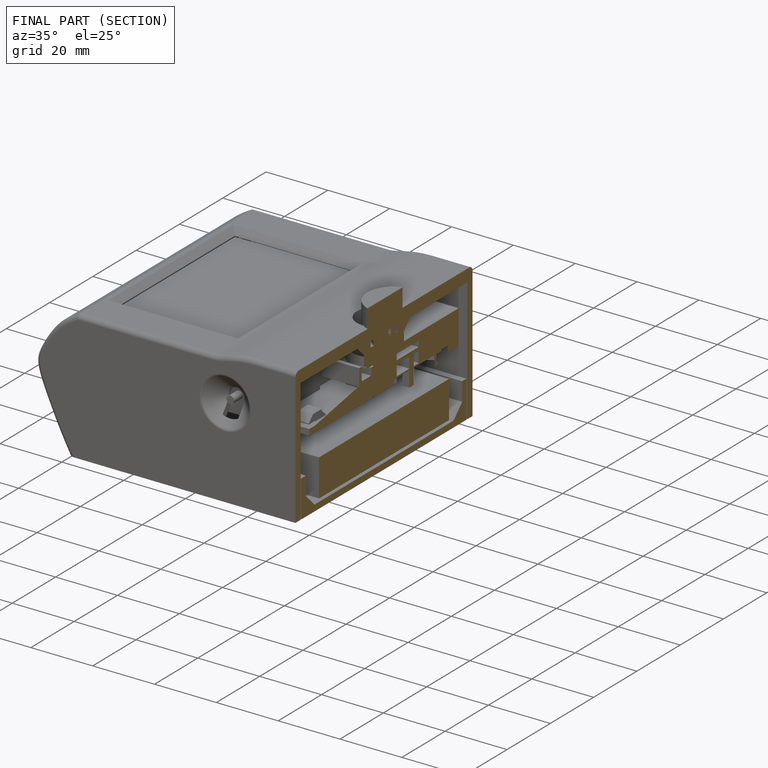
[diagram: finished part — half-section view (interior)]
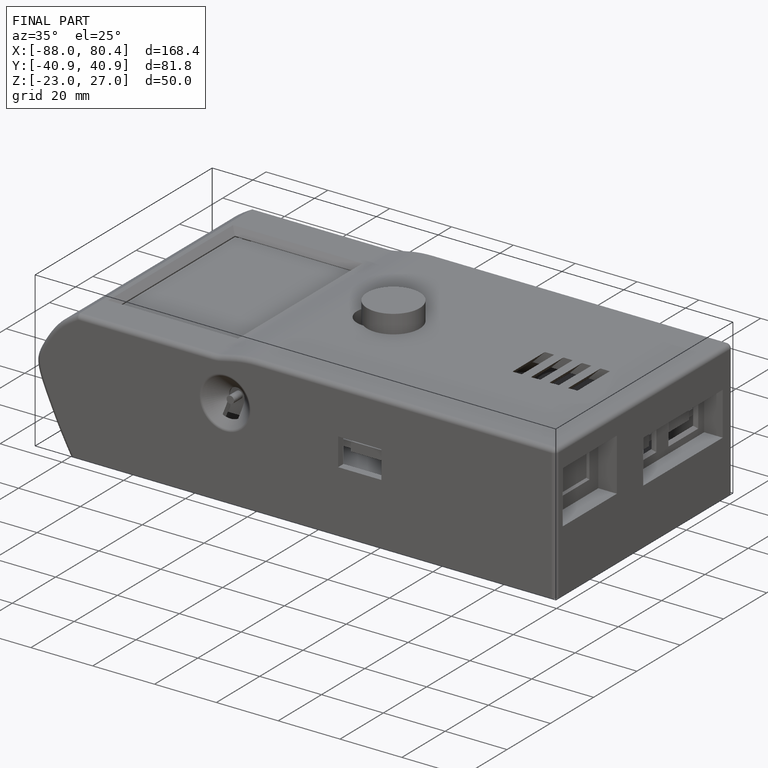
[diagram: finished part — iso view with bounding-box wireframe]
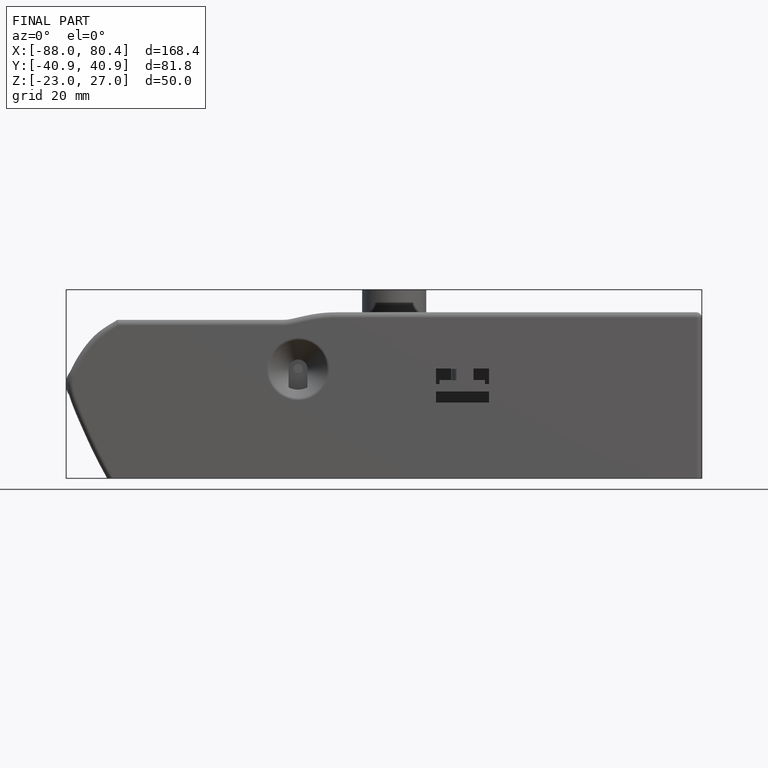
[diagram: finished part — front view with bounding-box wireframe]
